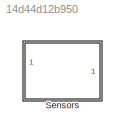
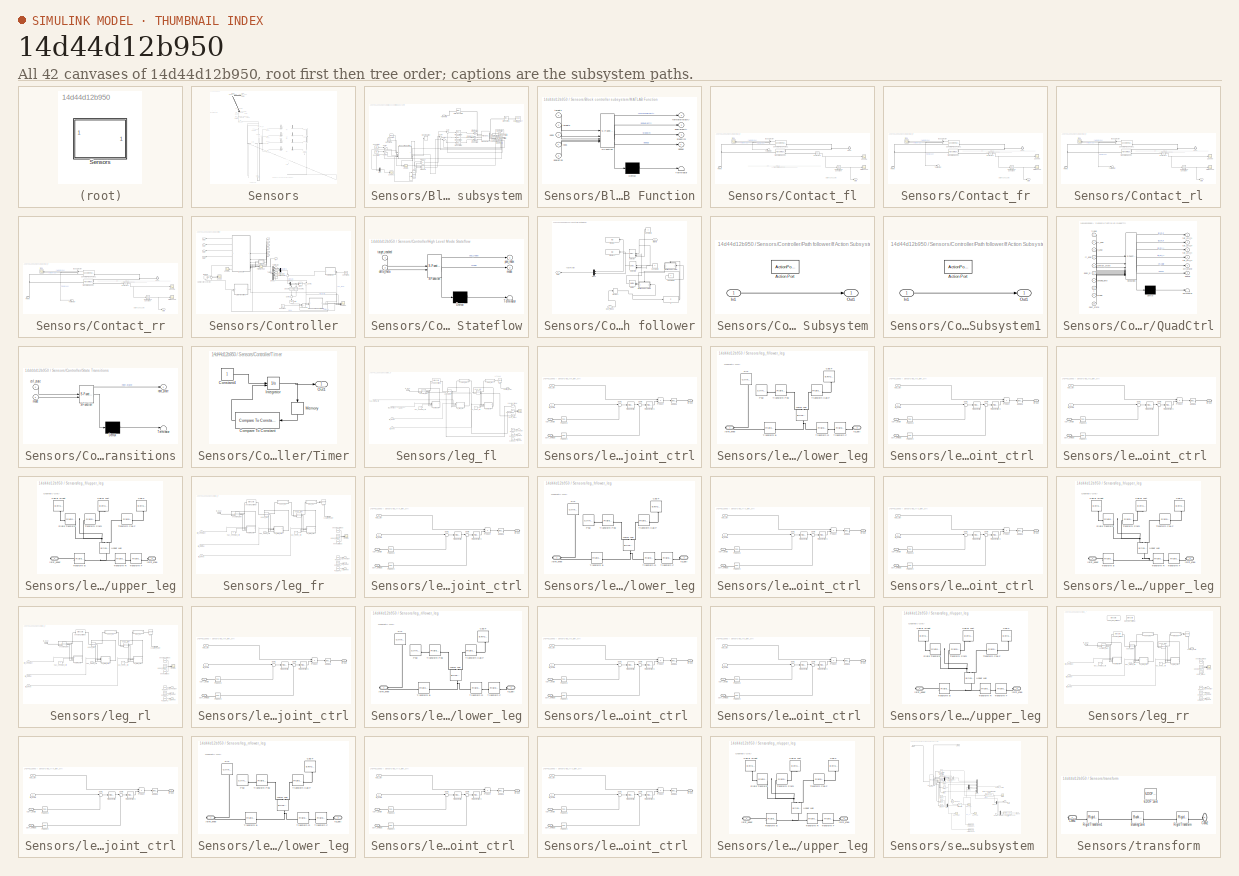
[diagram: thumbnail index - all 42 canvases of the model, root first then tree order]
MODEL slx_14d44d12b950
KIND model
CONFIG AbsTol = auto
CONFIG EnableMultiTasking = off
CONFIG FixedStep = auto
CONFIG MaxStep = auto
CONFIG MinStep = auto
CONFIG RelTol = 1e-3
CONFIG SampleTimeConstraint = Unconstrained
CONFIG SolverName = VariableStepAuto
CONFIG StartTime = 0.0
CONFIG StopTime = 100
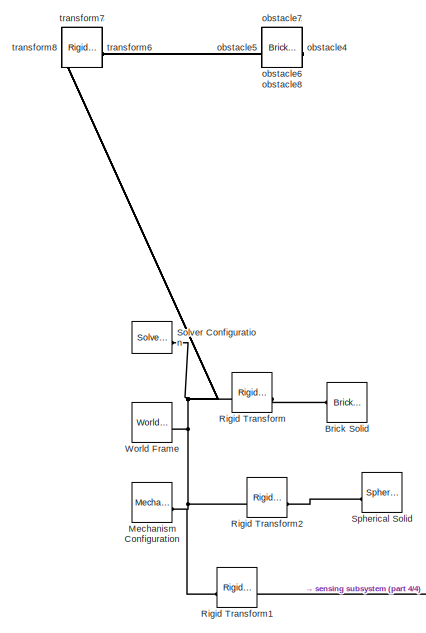
[diagram: Sensors - part 1/4, top left region]
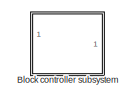
[diagram: Sensors - part 2/4, top left region]
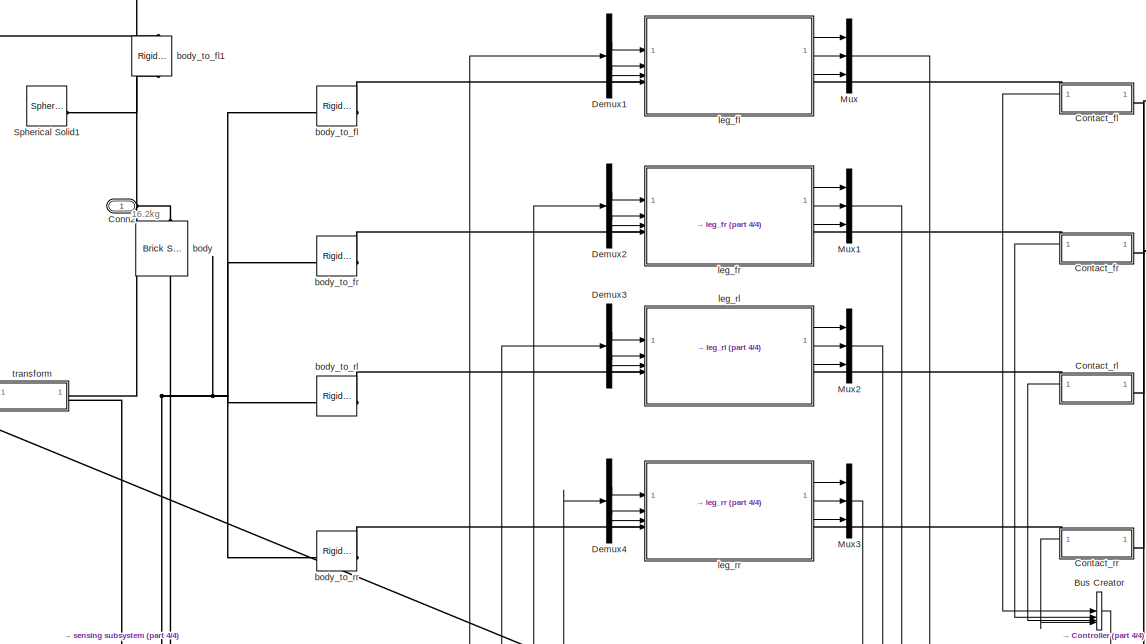
[diagram: Sensors - part 3/4, central region]
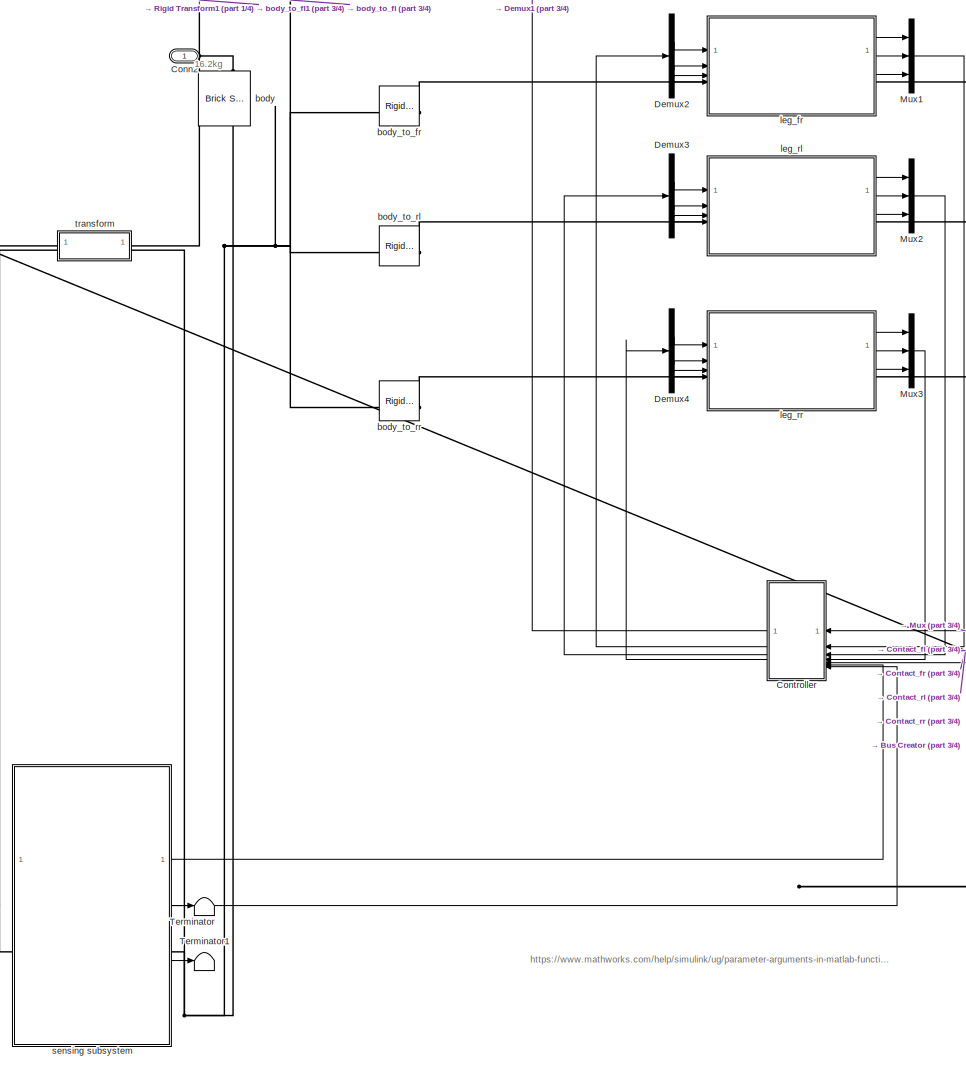
[diagram: Sensors - part 4/4, bottom center region]
BLOCK [SubSystem] Sensors
BLOCK [SubSystem] Sensors/Block controller subsystem
  Commented = on
  TreatAsAtomicUnit = on
BLOCK [Reference] Sensors/Block controller subsystem/Brick Solid1  REF=sm_lib/Body Elements/Brick Solid
  SourceBlock = sm_lib/Body Elements/Brick Solid
  SourceType = Brick Solid
BLOCK [Constant] Sensors/Block controller subsystem/Constant
  Value = target1
BLOCK [Constant] Sensors/Block controller subsystem/Constant1
  Value = startx
BLOCK [Constant] Sensors/Block controller subsystem/Constant2
  Value = starty
BLOCK [Constant] Sensors/Block controller subsystem/Constant3
  Value = target2
BLOCK [Trigonometry] Sensors/Block controller subsystem/Cos
  Operator = cos
BLOCK [Trigonometry] Sensors/Block controller subsystem/Cos1
BLOCK [SubSystem] Sensors/Block controller subsystem/MATLAB Function
  ErrorFcn = Stateflow.Translate.translate
  LibrarySourceBlock = simulink/User-Defined\nFunctions/MATLAB Function
  PermitHierarchicalResolution = ExplicitOnly
  SFBlockType = MATLAB Function
  SystemSampleTime = 0.1
  TreatAsAtomicUnit = on
BLOCK [Demux] Sensors/Block controller subsystem/MATLAB Function/ Demux 
  Outputs = 1
BLOCK [S-Function] Sensors/Block controller subsystem/MATLAB Function/ SFunction 
  EnableBusSupport = on
  FunctionName = sf_sfun
  PortCounts = [5 5]
  SFcnIsStateOwnerBlock = off
  SFunctionDeploymentMode = off
  Tag = Stateflow S-Function 2
BLOCK [Terminator] Sensors/Block controller subsystem/MATLAB Function/ Terminator 
BLOCK [Outport] Sensors/Block controller subsystem/MATLAB Function/angVelocity
  Port = 2
BLOCK [Inport] Sensors/Block controller subsystem/MATLAB Function/anglePos
  Port = 5
BLOCK [Outport] Sensors/Block controller subsystem/MATLAB Function/debug
  Port = 4
BLOCK [Outport] Sensors/Block controller subsystem/MATLAB Function/forwardVelocity
BLOCK [Outport] Sensors/Block controller subsystem/MATLAB Function/stopSim
  Port = 3
BLOCK [Inport] Sensors/Block controller subsystem/MATLAB Function/target1
BLOCK [Inport] Sensors/Block controller subsystem/MATLAB Function/target2
  Port = 2
BLOCK [Inport] Sensors/Block controller subsystem/MATLAB Function/xpos
  Port = 3
BLOCK [Inport] Sensors/Block controller subsystem/MATLAB Function/ypos
  Port = 4
BLOCK [Mux] Sensors/Block controller subsystem/Mux
  DisplayOption = bar
  Inputs = 2
BLOCK [Reference] Sensors/Block controller subsystem/PID Controller r  REF=slpidlib/PID Controller
  LibrarySourceBlock = simulink/Continuous/PID Controller
  SourceBlock = slpidlib/PID Controller
  SourceType = PID 1dof
BLOCK [Reference] Sensors/Block controller subsystem/PID Controller x  REF=slpidlib/PID Controller
  LibrarySourceBlock = simulink/Continuous/PID Controller
  SourceBlock = slpidlib/PID Controller
  SourceType = PID 1dof
BLOCK [Reference] Sensors/Block controller subsystem/PID Controller y  REF=slpidlib/PID Controller
  LibrarySourceBlock = simulink/Continuous/PID Controller
  SourceBlock = slpidlib/PID Controller
  SourceType = PID 1dof
BLOCK [Reference] Sensors/Block controller subsystem/PS-Simulink Converter  REF=nesl_utility/PS-Simulink
Converter
  SourceBlock = nesl_utility/PS-Simulink\nConverter
  SourceType = PS-Simulink\nConverter
BLOCK [Reference] Sensors/Block controller subsystem/PS-Simulink Converter1  REF=nesl_utility/PS-Simulink
Converter
  SourceBlock = nesl_utility/PS-Simulink\nConverter
  SourceType = PS-Simulink\nConverter
BLOCK [Reference] Sensors/Block controller subsystem/PS-Simulink Converter2  REF=nesl_utility/PS-Simulink
Converter
  SourceBlock = nesl_utility/PS-Simulink\nConverter
  SourceType = PS-Simulink\nConverter
BLOCK [Reference] Sensors/Block controller subsystem/PS-Simulink Converter3  REF=nesl_utility/PS-Simulink
Converter
  SourceBlock = nesl_utility/PS-Simulink\nConverter
  SourceType = PS-Simulink\nConverter
BLOCK [Reference] Sensors/Block controller subsystem/PS-Simulink Converter4  REF=nesl_utility/PS-Simulink
Converter
  SourceBlock = nesl_utility/PS-Simulink\nConverter
  SourceType = PS-Simulink\nConverter
BLOCK [Reference] Sensors/Block controller subsystem/PS-Simulink Converter5  REF=nesl_utility/PS-Simulink
Converter
  SourceBlock = nesl_utility/PS-Simulink\nConverter
  SourceType = PS-Simulink\nConverter
BLOCK [Reference] Sensors/Block controller subsystem/Planar Joint  REF=sm_lib/Joints/Planar Joint
  SourceBlock = sm_lib/Joints/Planar Joint
  SourceType = Planar Joint
BLOCK [Product] Sensors/Block controller subsystem/Product
BLOCK [Product] Sensors/Block controller subsystem/Product1
BLOCK [Reference] Sensors/Block controller subsystem/Rigid Transform1  REF=sm_lib/Frames and
Transforms/Rigid
Transform
  SourceBlock = sm_lib/Frames and\nTransforms/Rigid\nTransform
  SourceType = Rigid\nTransform
BLOCK [Scope] Sensors/Block controller subsystem/Scope
  Floating = off
  NumInputPorts = 1
  ScopeSpecificationString = Simulink.scopes.TimeScopeBlockCfg('CurrentConfiguration', extmgr.ConfigurationSet(extmgr.Configuration('Core','General UI',true),extmgr.Configuration('Core','Source UI',true),extmgr.Configuration('Sources','WiredSimulink',true),extmgr.Configuration('Visuals','Time Domain',true,'SerializedDisplays',{struct('MinYLimReal','-0.75','MaxYLimReal','16.75','YLabelReal','','MinYLimMag','0.00000','MaxYLimMa...<+1356ch>
BLOCK [Scope] Sensors/Block controller subsystem/Scope1
  Floating = off
  NumInputPorts = 1
  ScopeSpecificationString = Simulink.scopes.TimeScopeBlockCfg('CurrentConfiguration', extmgr.ConfigurationSet(extmgr.Configuration('Core','General UI',true),extmgr.Configuration('Core','Source UI',true),extmgr.Configuration('Sources','WiredSimulink',true,'DataLoggingVariableName','ScopeData1'),extmgr.Configuration('Visuals','Time Domain',true,'SerializedDisplays',{struct('MinYLimReal','-0.12626','MaxYLimReal','21.13635','YLa...<+1691ch>
BLOCK [Reference] Sensors/Block controller subsystem/Simulink-PS Converter1  REF=nesl_utility/Simulink-PS
Converter
  SourceBlock = nesl_utility/Simulink-PS\nConverter
  SourceType = Simulink-PS\nConverter
BLOCK [Reference] Sensors/Block controller subsystem/Simulink-PS Converter2  REF=nesl_utility/Simulink-PS
Converter
  SourceBlock = nesl_utility/Simulink-PS\nConverter
  SourceType = Simulink-PS\nConverter
BLOCK [Reference] Sensors/Block controller subsystem/Simulink-PS Converter5  REF=nesl_utility/Simulink-PS
Converter
  SourceBlock = nesl_utility/Simulink-PS\nConverter
  SourceType = Simulink-PS\nConverter
BLOCK [Reference] Sensors/Block controller subsystem/Spatial Contact Force  REF=sm_lib/Forces and
Torques/Spatial
Contact Force
  SourceBlock = sm_lib/Forces and\nTorques/Spatial\nContact Force
  SourceType = Spatial\nContact Force
BLOCK [Stop] Sensors/Block controller subsystem/Stop Simulation
BLOCK [Sum] Sensors/Block controller subsystem/Sum
  Inputs = |+-
BLOCK [Sum] Sensors/Block controller subsystem/Sum1
  Inputs = |++
BLOCK [Sum] Sensors/Block controller subsystem/Sum2
  Inputs = |++
BLOCK [Sum] Sensors/Block controller subsystem/Sum3
  Inputs = |+-
BLOCK [Sum] Sensors/Block controller subsystem/Sum4
  Inputs = |+-
BLOCK [PMIOPort] Sensors/Block controller subsystem/Transform
  Side = Left
BLOCK [Reference] Sensors/Brick Solid  REF=sm_lib/Body Elements/Brick Solid
  NameLocation = left
  SourceBlock = sm_lib/Body Elements/Brick Solid
  SourceType = Brick Solid
BLOCK [BusCreator] Sensors/Bus Creator
  DisplayOption = bar
  InheritFromInputs = on
  Inputs = 4
BLOCK [PMIOPort] Sensors/Conn2
  Side = Left
BLOCK [SubSystem] Sensors/Contact_fl
  NameLocation = top
BLOCK [BusSelector] Sensors/Contact_fl/Bus Selector
  NameLocation = top
  OutputSignals = Normal Force,Frame Sep,Friction Force
BLOCK [Reference] Sensors/Contact_fl/Compare To Constant  REF=simulink/Logic and Bit
Operations/Compare
To Constant
  SourceBlock = simulink/Logic and Bit\nOperations/Compare\nTo Constant
  SourceType = Compare To Constant
BLOCK [Reference] Sensors/Contact_fl/PSConv4  REF=nesl_utility/PS-Simulink
Converter
  SourceBlock = nesl_utility/PS-Simulink\nConverter
  SourceType = PS-Simulink\nConverter
BLOCK [PMIOPort] Sensors/Contact_fl/PlanB
  NameLocation = right
  Side = Left
BLOCK [PMIOPort] Sensors/Contact_fl/SphF
  NameLocation = top
  Port = 2
  Side = Right
BLOCK [Reference] Sensors/Contact_fl/Sphere to Plane Force1  REF=Contact_Forces_Lib/3D/Sphere to Plane Force
  NameLocation = top
  SourceBlock = Contact_Forces_Lib/3D/Sphere to Plane Force
  SourceProductName = Simscape Multibody Contact Forces Library
  SourceType = Sphere to Plane Force
BLOCK [Scope] Sensors/Contact_fl/State Scope
  Floating = off
  NumInputPorts = 1
  ScopeSpecificationString = Simulink.scopes.TimeScopeBlockCfg('CurrentConfiguration', extmgr.ConfigurationSet(extmgr.Configuration('Core','General UI',true),extmgr.Configuration('Core','Source UI',true),extmgr.Configuration('Sources','WiredSimulink',true,'DataLoggingVariableName','ScopeData2'),extmgr.Configuration('Visuals','Time Domain',true,'SerializedDisplays',{struct('MinYLimReal','-0.125','MaxYLimReal','1.125','YLabelRe...<+1738ch>
BLOCK [Terminator] Sensors/Contact_fl/Terminator
BLOCK [Reference] Sensors/Contact_fl/Transform Sensor  REF=sm_lib/Frames and
Transforms/Transform
Sensor
  SourceBlock = sm_lib/Frames and\nTransforms/Transform\nSensor
  SourceType = Transform\nSensor
BLOCK [Scope] Sensors/Contact_fl/ZScope
  Floating = off
  NumInputPorts = 1
  ScopeSpecificationString = Simulink.scopes.TimeScopeBlockCfg('CurrentConfiguration', extmgr.ConfigurationSet(extmgr.Configuration('Core','General UI',true),extmgr.Configuration('Core','Source UI',true),extmgr.Configuration('Sources','WiredSimulink',true,'DataLoggingVariableName','ScopeData1'),extmgr.Configuration('Visuals','Time Domain',true,'SerializedDisplays',{struct('MinYLimReal','0.21142','MaxYLimReal','0.26619','YLabe...<+1738ch>
BLOCK [Scope] Sensors/Contact_fl/force
  Floating = off
  NameLocation = top
  NumInputPorts = 2
  ScopeSpecificationString = Simulink.scopes.TimeScopeBlockCfg('CurrentConfiguration', extmgr.ConfigurationSet(extmgr.Configuration('Core','General UI',true),extmgr.Configuration('Core','Source UI',true),extmgr.Configuration('Sources','WiredSimulink',true),extmgr.Configuration('Visuals','Time Domain',true,'SerializedDisplays',{struct('MinYLimReal','-483.20806','MaxYLimReal','1131.7449','YLabelReal','','MinYLimMag',' 0.00000',...<+2099ch>
BLOCK [Outport] Sensors/Contact_fl/state
  VectorParamsAs1DForOutWhenUnconnected = off
BLOCK [SubSystem] Sensors/Contact_fr
  NameLocation = top
BLOCK [BusSelector] Sensors/Contact_fr/Bus Selector
  NameLocation = top
  OutputSignals = Normal Force,Frame Sep,Friction Force
BLOCK [Reference] Sensors/Contact_fr/Compare To Constant  REF=simulink/Logic and Bit
Operations/Compare
To Constant
  SourceBlock = simulink/Logic and Bit\nOperations/Compare\nTo Constant
  SourceType = Compare To Constant
BLOCK [Reference] Sensors/Contact_fr/PSConv4  REF=nesl_utility/PS-Simulink
Converter
  SourceBlock = nesl_utility/PS-Simulink\nConverter
  SourceType = PS-Simulink\nConverter
BLOCK [PMIOPort] Sensors/Contact_fr/PlanB
  NameLocation = right
  Side = Left
BLOCK [PMIOPort] Sensors/Contact_fr/SphF
  NameLocation = top
  Port = 2
  Side = Right
BLOCK [Reference] Sensors/Contact_fr/Sphere to Plane Force1  REF=Contact_Forces_Lib/3D/Sphere to Plane Force
  NameLocation = top
  SourceBlock = Contact_Forces_Lib/3D/Sphere to Plane Force
  SourceProductName = Simscape Multibody Contact Forces Library
  SourceType = Sphere to Plane Force
BLOCK [Scope] Sensors/Contact_fr/State Scope
  Floating = off
  NumInputPorts = 1
  ScopeSpecificationString = Simulink.scopes.TimeScopeBlockCfg('CurrentConfiguration', extmgr.ConfigurationSet(extmgr.Configuration('Core','General UI',true),extmgr.Configuration('Core','Source UI',true),extmgr.Configuration('Sources','WiredSimulink',true,'DataLoggingVariableName','ScopeData2'),extmgr.Configuration('Visuals','Time Domain',true,'SerializedDisplays',{struct('MinYLimReal','3.40363','MaxYLimReal','4.10196','YLabe...<+1745ch>
BLOCK [Terminator] Sensors/Contact_fr/Terminator
BLOCK [Reference] Sensors/Contact_fr/Transform Sensor  REF=sm_lib/Frames and
Transforms/Transform
Sensor
  SourceBlock = sm_lib/Frames and\nTransforms/Transform\nSensor
  SourceType = Transform\nSensor
BLOCK [Scope] Sensors/Contact_fr/ZScope
  Floating = off
  NumInputPorts = 1
  ScopeSpecificationString = Simulink.scopes.TimeScopeBlockCfg('CurrentConfiguration', extmgr.ConfigurationSet(extmgr.Configuration('Core','General UI',true),extmgr.Configuration('Core','Source UI',true),extmgr.Configuration('Sources','WiredSimulink',true,'DataLoggingVariableName','ScopeData1'),extmgr.Configuration('Visuals','Time Domain',true,'SerializedDisplays',{struct('MinYLimReal','-0.07993','MaxYLimReal','0.50888','YLab...<+1755ch>
BLOCK [Scope] Sensors/Contact_fr/force
  Floating = off
  NameLocation = top
  NumInputPorts = 2
  ScopeSpecificationString = Simulink.scopes.TimeScopeBlockCfg('CurrentConfiguration', extmgr.ConfigurationSet(extmgr.Configuration('Core','General UI',true),extmgr.Configuration('Core','Source UI',true),extmgr.Configuration('Sources','WiredSimulink',true),extmgr.Configuration('Visuals','Time Domain',true,'SerializedDisplays',{struct('MinYLimReal','-1765.00642','MaxYLimReal','8517.50545','YLabelReal','','MinYLimMag','  0.0000...<+1825ch>
BLOCK [Outport] Sensors/Contact_fr/state
  VectorParamsAs1DForOutWhenUnconnected = off
BLOCK [SubSystem] Sensors/Contact_rl
  NameLocation = top
BLOCK [BusSelector] Sensors/Contact_rl/Bus Selector
  NameLocation = top
  OutputSignals = Normal Force,Frame Sep,Friction Force
BLOCK [Reference] Sensors/Contact_rl/Compare To Constant  REF=simulink/Logic and Bit
Operations/Compare
To Constant
  SourceBlock = simulink/Logic and Bit\nOperations/Compare\nTo Constant
  SourceType = Compare To Constant
BLOCK [Reference] Sensors/Contact_rl/PSConv4  REF=nesl_utility/PS-Simulink
Converter
  SourceBlock = nesl_utility/PS-Simulink\nConverter
  SourceType = PS-Simulink\nConverter
BLOCK [PMIOPort] Sensors/Contact_rl/PlanB
  NameLocation = right
  Side = Left
BLOCK [PMIOPort] Sensors/Contact_rl/SphF
  NameLocation = top
  Port = 2
  Side = Right
BLOCK [Reference] Sensors/Contact_rl/Sphere to Plane Force1  REF=Contact_Forces_Lib/3D/Sphere to Plane Force
  NameLocation = top
  SourceBlock = Contact_Forces_Lib/3D/Sphere to Plane Force
  SourceProductName = Simscape Multibody Contact Forces Library
  SourceType = Sphere to Plane Force
BLOCK [Scope] Sensors/Contact_rl/State Scope
  Floating = off
  NumInputPorts = 1
  ScopeSpecificationString = Simulink.scopes.TimeScopeBlockCfg('CurrentConfiguration', extmgr.ConfigurationSet(extmgr.Configuration('Core','General UI',true),extmgr.Configuration('Core','Source UI',true),extmgr.Configuration('Sources','WiredSimulink',true,'DataLoggingVariableName','ScopeData2'),extmgr.Configuration('Visuals','Time Domain',true,'SerializedDisplays',{struct('MinYLimReal','-0.125','MaxYLimReal','1.125','YLabelRe...<+1739ch>
BLOCK [Terminator] Sensors/Contact_rl/Terminator
BLOCK [Reference] Sensors/Contact_rl/Transform Sensor  REF=sm_lib/Frames and
Transforms/Transform
Sensor
  SourceBlock = sm_lib/Frames and\nTransforms/Transform\nSensor
  SourceType = Transform\nSensor
BLOCK [Scope] Sensors/Contact_rl/ZScope
  Floating = off
  NumInputPorts = 1
  ScopeSpecificationString = Simulink.scopes.TimeScopeBlockCfg('CurrentConfiguration', extmgr.ConfigurationSet(extmgr.Configuration('Core','General UI',true),extmgr.Configuration('Core','Source UI',true),extmgr.Configuration('Sources','WiredSimulink',true,'DataLoggingVariableName','ScopeData1'),extmgr.Configuration('Visuals','Time Domain',true,'SerializedDisplays',{struct('MinYLimReal','0.2216','MaxYLimReal','0.24665','YLabel...<+1762ch>
BLOCK [Scope] Sensors/Contact_rl/force
  Floating = off
  NameLocation = top
  NumInputPorts = 2
  ScopeSpecificationString = Simulink.scopes.TimeScopeBlockCfg('CurrentConfiguration', extmgr.ConfigurationSet(extmgr.Configuration('Core','General UI',true),extmgr.Configuration('Core','Source UI',true),extmgr.Configuration('Sources','WiredSimulink',true),extmgr.Configuration('Visuals','Time Domain',true,'SerializedDisplays',{struct('MinYLimReal','-385.95585','MaxYLimReal','1796.51268','YLabelReal','','MinYLimMag',' 0.00000'...<+1838ch>
BLOCK [Outport] Sensors/Contact_rl/state
  VectorParamsAs1DForOutWhenUnconnected = off
BLOCK [SubSystem] Sensors/Contact_rr
  NameLocation = top
BLOCK [BusSelector] Sensors/Contact_rr/Bus Selector
  NameLocation = top
  OutputSignals = Normal Force,Frame Sep,Friction Force
BLOCK [Reference] Sensors/Contact_rr/Compare To Constant  REF=simulink/Logic and Bit
Operations/Compare
To Constant
  SourceBlock = simulink/Logic and Bit\nOperations/Compare\nTo Constant
  SourceType = Compare To Constant
BLOCK [Reference] Sensors/Contact_rr/PSConv4  REF=nesl_utility/PS-Simulink
Converter
  SourceBlock = nesl_utility/PS-Simulink\nConverter
  SourceType = PS-Simulink\nConverter
BLOCK [PMIOPort] Sensors/Contact_rr/PlanB
  NameLocation = right
  Side = Left
BLOCK [PMIOPort] Sensors/Contact_rr/SphF
  NameLocation = top
  Port = 2
  Side = Right
BLOCK [Reference] Sensors/Contact_rr/Sphere to Plane Force1  REF=Contact_Forces_Lib/3D/Sphere to Plane Force
  NameLocation = top
  SourceBlock = Contact_Forces_Lib/3D/Sphere to Plane Force
  SourceProductName = Simscape Multibody Contact Forces Library
  SourceType = Sphere to Plane Force
BLOCK [Scope] Sensors/Contact_rr/State Scope
  Floating = off
  NumInputPorts = 1
  ScopeSpecificationString = Simulink.scopes.TimeScopeBlockCfg('CurrentConfiguration', extmgr.ConfigurationSet(extmgr.Configuration('Core','General UI',true),extmgr.Configuration('Core','Source UI',true),extmgr.Configuration('Sources','WiredSimulink',true,'DataLoggingVariableName','ScopeData2'),extmgr.Configuration('Visuals','Time Domain',true,'SerializedDisplays',{struct('MinYLimReal','-0.125','MaxYLimReal','1.125','YLabelRe...<+1739ch>
BLOCK [Terminator] Sensors/Contact_rr/Terminator
BLOCK [Reference] Sensors/Contact_rr/Transform Sensor  REF=sm_lib/Frames and
Transforms/Transform
Sensor
  SourceBlock = sm_lib/Frames and\nTransforms/Transform\nSensor
  SourceType = Transform\nSensor
BLOCK [Scope] Sensors/Contact_rr/ZScope
  Floating = off
  NumInputPorts = 1
  ScopeSpecificationString = Simulink.scopes.TimeScopeBlockCfg('CurrentConfiguration', extmgr.ConfigurationSet(extmgr.Configuration('Core','General UI',true),extmgr.Configuration('Core','Source UI',true),extmgr.Configuration('Sources','WiredSimulink',true,'DataLoggingVariableName','ScopeData1'),extmgr.Configuration('Visuals','Time Domain',true,'SerializedDisplays',{struct('MinYLimReal','-0.07993','MaxYLimReal','0.50888','YLab...<+1439ch>
BLOCK [Scope] Sensors/Contact_rr/force
  Floating = off
  NameLocation = top
  NumInputPorts = 2
  ScopeSpecificationString = Simulink.scopes.TimeScopeBlockCfg('CurrentConfiguration', extmgr.ConfigurationSet(extmgr.Configuration('Core','General UI',true),extmgr.Configuration('Core','Source UI',true),extmgr.Configuration('Sources','WiredSimulink',true),extmgr.Configuration('Visuals','Time Domain',true,'SerializedDisplays',{struct('MinYLimReal','-1765.00642','MaxYLimReal','8517.50545','YLabelReal','','MinYLimMag','  0.0000...<+1825ch>
BLOCK [Outport] Sensors/Contact_rr/state
  VectorParamsAs1DForOutWhenUnconnected = off
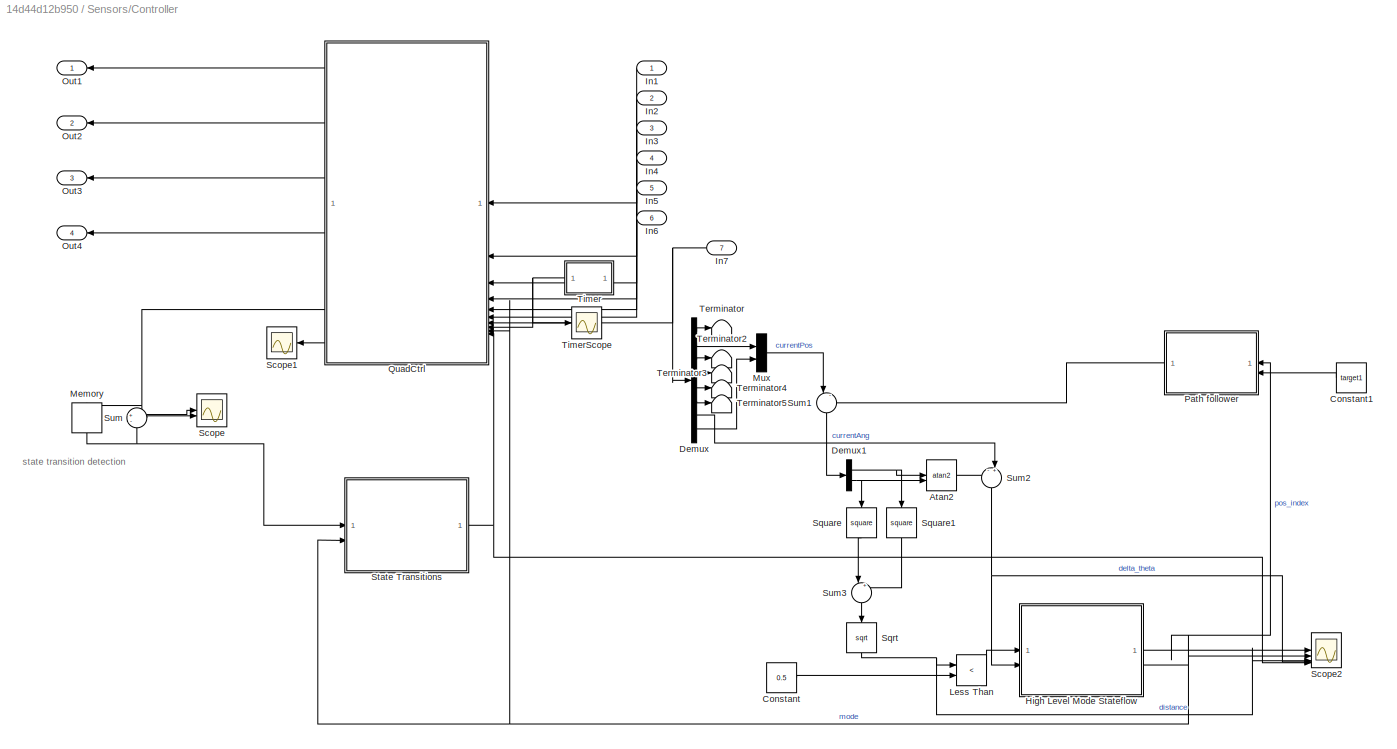
BLOCK [SubSystem] Sensors/Controller
  NameLocation = top
BLOCK [Trigonometry] Sensors/Controller/Atan2
  Operator = atan2
BLOCK [Constant] Sensors/Controller/Constant
  Value = 0.5
BLOCK [Constant] Sensors/Controller/Constant1
  Value = target1
BLOCK [Demux] Sensors/Controller/Demux
  Outputs = 8
BLOCK [Demux] Sensors/Controller/Demux1
  Outputs = 2
BLOCK [SubSystem] Sensors/Controller/High Level Mode Stateflow
  ErrorFcn = Stateflow.Translate.translate
  PermitHierarchicalResolution = ExplicitOnly
  PortSchema = {"entries":[{"content":{"sides":[{"content":{"connectorIds":["In2","In1"]},"type":"ConnectorPlacement.EquallySpacedRectSide","uuid":"54635eaa-af22-4c07-946c-8b3764ca4079"},{"content":{"connectorIds":["Out1","Out2"],"side":"RIGHT"},"type":"ConnectorPlacement.EquallySpacedRectSide","uuid":"b8ca9e50-c21e-481d-aebe-d3447dd5b6ec"},{"content":{"connectorIds":[],"side":"TOP"},"type":"ConnectorPlacement.E...<+253ch>
  SFBlockType = Chart
  TreatAsAtomicUnit = on
BLOCK [Demux] Sensors/Controller/High Level Mode Stateflow/ Demux 
  Outputs = 1
BLOCK [S-Function] Sensors/Controller/High Level Mode Stateflow/ SFunction 
  EnableBusSupport = on
  FunctionName = sf_sfun
  PortCounts = [2 3]
  SFcnIsStateOwnerBlock = off
  SFunctionDeploymentMode = off
  Tag = Stateflow S-Function 3
BLOCK [Terminator] Sensors/Controller/High Level Mode Stateflow/ Terminator 
BLOCK [Inport] Sensors/Controller/High Level Mode Stateflow/delta_theta
  Port = 2
BLOCK [Outport] Sensors/Controller/High Level Mode Stateflow/mode
  Port = 2
BLOCK [Outport] Sensors/Controller/High Level Mode Stateflow/pos_index
BLOCK [Inport] Sensors/Controller/High Level Mode Stateflow/target_reached
BLOCK [Inport] Sensors/Controller/In1
  NameLocation = top
BLOCK [Inport] Sensors/Controller/In2
  NameLocation = top
  Port = 2
BLOCK [Inport] Sensors/Controller/In3
  NameLocation = top
  Port = 3
BLOCK [Inport] Sensors/Controller/In4
  NameLocation = top
  Port = 4
BLOCK [Inport] Sensors/Controller/In5
  NameLocation = top
  Port = 5
BLOCK [Inport] Sensors/Controller/In6
  NameLocation = top
  Port = 6
BLOCK [Inport] Sensors/Controller/In7
  NameLocation = top
  Port = 7
BLOCK [RelationalOperator] Sensors/Controller/Less Than
  InputSameDT = off
  Operator = <
  OutDataTypeStr = boolean
  RndMeth = Simplest
BLOCK [Memory] Sensors/Controller/Memory
  NameLocation = left
BLOCK [Mux] Sensors/Controller/Mux
  DisplayOption = bar
  Inputs = 2
BLOCK [Outport] Sensors/Controller/Out1
  NameLocation = top
  VectorParamsAs1DForOutWhenUnconnected = off
BLOCK [Outport] Sensors/Controller/Out2
  NameLocation = top
  Port = 2
  VectorParamsAs1DForOutWhenUnconnected = off
BLOCK [Outport] Sensors/Controller/Out3
  NameLocation = top
  Port = 3
  VectorParamsAs1DForOutWhenUnconnected = off
BLOCK [Outport] Sensors/Controller/Out4
  NameLocation = top
  Port = 4
  VectorParamsAs1DForOutWhenUnconnected = off
BLOCK [SubSystem] Sensors/Controller/Path follower
  TreatAsAtomicUnit = on
BLOCK [Constant] Sensors/Controller/Path follower/Constant2
BLOCK [Constant] Sensors/Controller/Path follower/Constant3
  Value = 2
BLOCK [Constant] Sensors/Controller/Path follower/Constant4
BLOCK [Display] Sensors/Controller/Path follower/Display
  Decimation = 1
BLOCK [Display] Sensors/Controller/Path follower/Display1
  Decimation = 1
BLOCK [If] Sensors/Controller/Path follower/If
  IfExpression = u1 <= 0
BLOCK [SubSystem] Sensors/Controller/Path follower/If Action Subsystem
  TreatAsAtomicUnit = on
BLOCK [ActionPort] Sensors/Controller/Path follower/If Action Subsystem/Action Port
  ActionPortLabel = if(u1 <= 0)
BLOCK [Inport] Sensors/Controller/Path follower/If Action Subsystem/In1
BLOCK [Outport] Sensors/Controller/Path follower/If Action Subsystem/Out1
BLOCK [SubSystem] Sensors/Controller/Path follower/If Action Subsystem1
  TreatAsAtomicUnit = on
BLOCK [ActionPort] Sensors/Controller/Path follower/If Action Subsystem1/Action Port
  ActionPortLabel = else
BLOCK [Inport] Sensors/Controller/Path follower/If Action Subsystem1/In1
BLOCK [Outport] Sensors/Controller/Path follower/If Action Subsystem1/Out1
BLOCK [Memory] Sensors/Controller/Path follower/Memory1
BLOCK [Merge] Sensors/Controller/Path follower/Merge
BLOCK [Mux] Sensors/Controller/Path follower/Mux1
  DisplayOption = bar
  Inputs = 2
BLOCK [Outport] Sensors/Controller/Path follower/Out1
BLOCK [Selector] Sensors/Controller/Path follower/Selector
  IndexOptions = Index vector (port),Index vector (port)
  Indices = [1 3],1
  InputPortWidth = 1
  NumberOfDimensions = 2
  OutputSizes = 1,1
BLOCK [Selector] Sensors/Controller/Path follower/Selector1
  IndexOptions = Index vector (port),Index vector (port)
  Indices = [1 3],1
  InputPortWidth = 1
  NumberOfDimensions = 2
  OutputSizes = 1,1
BLOCK [Inport] Sensors/Controller/Path follower/pos_index
BLOCK [Inport] Sensors/Controller/Path follower/targets
  Port = 2
BLOCK [SubSystem] Sensors/Controller/QuadCtrl
  ErrorFcn = Stateflow.Translate.translate
  NameLocation = top
  PermitHierarchicalResolution = ExplicitOnly
  SFBlockType = MATLAB Function
  SystemSampleTime = 0.0025
  TreatAsAtomicUnit = on
BLOCK [Demux] Sensors/Controller/QuadCtrl/ Demux 
  Outputs = 1
BLOCK [S-Function] Sensors/Controller/QuadCtrl/ SFunction 
  EnableBusSupport = on
  FunctionName = sf_sfun
  Parameters = body,planner
  PortCounts = [10 7]
  SFcnIsStateOwnerBlock = off
  SFunctionDeploymentMode = off
  Tag = Stateflow S-Function 1
BLOCK [Terminator] Sensors/Controller/QuadCtrl/ Terminator 
BLOCK [Inport] Sensors/Controller/QuadCtrl/body_R
  Port = 6
BLOCK [Inport] Sensors/Controller/QuadCtrl/contact_state
  Port = 5
BLOCK [Outport] Sensors/Controller/QuadCtrl/ctrl_state
  Port = 5
  VectorParamsAs1DForOutWhenUnconnected = off
BLOCK [Outport] Sensors/Controller/QuadCtrl/debug
  Port = 6
  VectorParamsAs1DForOutWhenUnconnected = off
BLOCK [Inport] Sensors/Controller/QuadCtrl/fl_ang
BLOCK [Inport] Sensors/Controller/QuadCtrl/fr_ang
  Port = 2
BLOCK [Inport] Sensors/Controller/QuadCtrl/mode
  Port = 9
BLOCK [Inport] Sensors/Controller/QuadCtrl/next_state
  Port = 10
BLOCK [Inport] Sensors/Controller/QuadCtrl/rl_ang
  Port = 3
BLOCK [Inport] Sensors/Controller/QuadCtrl/rr_ang
  Port = 4
BLOCK [Inport] Sensors/Controller/QuadCtrl/sensing_info
  Port = 7
BLOCK [Inport] Sensors/Controller/QuadCtrl/t
  Port = 8
BLOCK [Outport] Sensors/Controller/QuadCtrl/tgt_ctrl_fl
  VectorParamsAs1DForOutWhenUnconnected = off
BLOCK [Outport] Sensors/Controller/QuadCtrl/tgt_ctrl_fr
  Port = 2
  VectorParamsAs1DForOutWhenUnconnected = off
BLOCK [Outport] Sensors/Controller/QuadCtrl/tgt_ctrl_rl
  Port = 3
  VectorParamsAs1DForOutWhenUnconnected = off
BLOCK [Outport] Sensors/Controller/QuadCtrl/tgt_ctrl_rr
  Port = 4
  VectorParamsAs1DForOutWhenUnconnected = off
BLOCK [Scope] Sensors/Controller/Scope
  Floating = off
  NumInputPorts = 2
  ScopeSpecificationString = Simulink.scopes.TimeScopeBlockCfg('CurrentConfiguration', extmgr.ConfigurationSet(extmgr.Configuration('Core','General UI',true),extmgr.Configuration('Core','Source UI',true),extmgr.Configuration('Sources','WiredSimulink',true,'DataLoggingVariableName','ScopeData1'),extmgr.Configuration('Visuals','Time Domain',true,'SerializedDisplays',{struct('MinYLimReal','-7.625','MaxYLimReal','8.625','YLabelRe...<+1401ch>
BLOCK [Scope] Sensors/Controller/Scope1
  Floating = off
  NameLocation = top
  NumInputPorts = 1
  ScopeSpecificationString = Simulink.scopes.TimeScopeBlockCfg('CurrentConfiguration', extmgr.ConfigurationSet(extmgr.Configuration('Core','General UI',true),extmgr.Configuration('Core','Source UI',true),extmgr.Configuration('Sources','WiredSimulink',true,'DataLoggingVariableName','ScopeData5'),extmgr.Configuration('Visuals','Time Domain',true,'SerializedDisplays',{struct('MinYLimReal','-37.5','MaxYLimReal','337.5','YLabelRea...<+1465ch>
BLOCK [Scope] Sensors/Controller/Scope2
  Floating = off
  NumInputPorts = 6
  ScopeSpecificationString = Simulink.scopes.TimeScopeBlockCfg('CurrentConfiguration', extmgr.ConfigurationSet(extmgr.Configuration('Core','General UI',true),extmgr.Configuration('Core','Source UI',true),extmgr.Configuration('Sources','WiredSimulink',true,'DataLoggingVariableName','ScopeData1'),extmgr.Configuration('Visuals','Time Domain',true,'SerializedDisplays',{struct('MinYLimReal','-1.782','MaxYLimReal','7.97578','YLabel...<+1455ch>
BLOCK [Sqrt] Sensors/Controller/Sqrt
  NameLocation = left
BLOCK [Math] Sensors/Controller/Square
  NameLocation = left
  Operator = square
BLOCK [Math] Sensors/Controller/Square1
  NameLocation = left
  Operator = square
BLOCK [SubSystem] Sensors/Controller/State Transitions
  ErrorFcn = Stateflow.Translate.translate
  PermitHierarchicalResolution = ExplicitOnly
  SFBlockType = Chart
  TreatAsAtomicUnit = on
BLOCK [Demux] Sensors/Controller/State Transitions/ Demux 
  Outputs = 1
BLOCK [S-Function] Sensors/Controller/State Transitions/ SFunction 
  EnableBusSupport = on
  FunctionName = sf_sfun
  PortCounts = [2 2]
  SFcnIsStateOwnerBlock = off
  SFunctionDeploymentMode = off
  Tag = Stateflow S-Function 4
BLOCK [Terminator] Sensors/Controller/State Transitions/ Terminator 
BLOCK [Inport] Sensors/Controller/State Transitions/ctrl_state
BLOCK [Inport] Sensors/Controller/State Transitions/mode
  Port = 2
BLOCK [Outport] Sensors/Controller/State Transitions/next_state
BLOCK [Sum] Sensors/Controller/Sum
  Inputs = +-
BLOCK [Sum] Sensors/Controller/Sum1
  Inputs = |-+
  NameLocation = left
BLOCK [Sum] Sensors/Controller/Sum2
  Inputs = -+|
  NameLocation = left
BLOCK [Sum] Sensors/Controller/Sum3
  Inputs = |++
  NameLocation = left
BLOCK [Terminator] Sensors/Controller/Terminator
BLOCK [Terminator] Sensors/Controller/Terminator2
BLOCK [Terminator] Sensors/Controller/Terminator3
BLOCK [Terminator] Sensors/Controller/Terminator4
BLOCK [Terminator] Sensors/Controller/Terminator5
BLOCK [SubSystem] Sensors/Controller/Timer
  NameLocation = top
BLOCK [Reference] Sensors/Controller/Timer/Compare To Constant  REF=simulink/Logic and Bit
Operations/Compare
To Constant
  NameLocation = top
  SourceBlock = simulink/Logic and Bit\nOperations/Compare\nTo Constant
  SourceType = Compare To Constant
BLOCK [Constant] Sensors/Controller/Timer/Constant4
BLOCK [Integrator] Sensors/Controller/Timer/Integrator
  ExternalReset = level
BLOCK [Memory] Sensors/Controller/Timer/Memory
  NameLocation = left
BLOCK [Outport] Sensors/Controller/Timer/Out1
  VectorParamsAs1DForOutWhenUnconnected = off
BLOCK [Scope] Sensors/Controller/TimerScope
  Floating = off
  NumInputPorts = 1
  ScopeSpecificationString = Simulink.scopes.TimeScopeBlockCfg('CurrentConfiguration', extmgr.ConfigurationSet(extmgr.Configuration('Core','General UI',true),extmgr.Configuration('Core','Source UI',true),extmgr.Configuration('Sources','WiredSimulink',true,'DataLoggingVariableName','ScopeData1'),extmgr.Configuration('Visuals','Time Domain',true,'SerializedDisplays',{struct('MinYLimReal','-0.25011','MaxYLimReal','2.25096','YLab...<+1443ch>
BLOCK [Demux] Sensors/Demux1
BLOCK [Demux] Sensors/Demux2
BLOCK [Demux] Sensors/Demux3
BLOCK [Demux] Sensors/Demux4
BLOCK [Reference] Sensors/Mechanism Configuration  REF=sm_lib/Utilities/Mechanism
Configuration
  SourceBlock = sm_lib/Utilities/Mechanism\nConfiguration
  SourceType = Mechanism\nConfiguration
BLOCK [Mux] Sensors/Mux
  DisplayOption = bar
  Inputs = 3
BLOCK [Mux] Sensors/Mux1
  DisplayOption = bar
  Inputs = 3
BLOCK [Mux] Sensors/Mux2
  DisplayOption = bar
  Inputs = 3
BLOCK [Mux] Sensors/Mux3
  DisplayOption = bar
  Inputs = 3
BLOCK [Reference] Sensors/Rigid Transform  REF=sm_lib/Frames and
Transforms/Rigid
Transform
  SourceBlock = sm_lib/Frames and\nTransforms/Rigid\nTransform
  SourceType = Rigid\nTransform
BLOCK [Reference] Sensors/Rigid Transform1  REF=sm_lib/Frames and
Transforms/Rigid
Transform
  SourceBlock = sm_lib/Frames and\nTransforms/Rigid\nTransform
  SourceType = Rigid\nTransform
BLOCK [Reference] Sensors/Rigid Transform2  REF=sm_lib/Frames and
Transforms/Rigid
Transform
  SourceBlock = sm_lib/Frames and\nTransforms/Rigid\nTransform
  SourceType = Rigid\nTransform
BLOCK [Reference] Sensors/Solver Configuration  REF=nesl_utility/Solver
Configuration
  SourceBlock = nesl_utility/Solver\nConfiguration
  SourceType = Solver\nConfiguration
BLOCK [Reference] Sensors/Spherical Solid  REF=sm_lib/Body Elements/Spherical Solid
  SourceBlock = sm_lib/Body Elements/Spherical Solid
  SourceType = Spherical Solid
BLOCK [Reference] Sensors/Spherical Solid1  REF=sm_lib/Body Elements/Spherical Solid
  SourceBlock = sm_lib/Body Elements/Spherical Solid
  SourceType = Spherical Solid
BLOCK [Terminator] Sensors/Terminator
BLOCK [Terminator] Sensors/Terminator1
BLOCK [Reference] Sensors/World Frame  REF=sm_lib/Frames and
Transforms/World Frame
  SourceBlock = sm_lib/Frames and\nTransforms/World Frame
  SourceType = World Frame
BLOCK [Reference] Sensors/body  REF=sm_lib/Body Elements/Brick Solid
  NameLocation = left
  SourceBlock = sm_lib/Body Elements/Brick Solid
  SourceType = Brick Solid
BLOCK [Reference] Sensors/body_to_fl  REF=sm_lib/Frames and
Transforms/Rigid
Transform
  SourceBlock = sm_lib/Frames and\nTransforms/Rigid\nTransform
  SourceType = Rigid\nTransform
BLOCK [Reference] Sensors/body_to_fl1  REF=sm_lib/Frames and
Transforms/Rigid
Transform
  NameLocation = left
  SourceBlock = sm_lib/Frames and\nTransforms/Rigid\nTransform
  SourceType = Rigid\nTransform
BLOCK [Reference] Sensors/body_to_fr  REF=sm_lib/Frames and
Transforms/Rigid
Transform
  SourceBlock = sm_lib/Frames and\nTransforms/Rigid\nTransform
  SourceType = Rigid\nTransform
BLOCK [Reference] Sensors/body_to_rl  REF=sm_lib/Frames and
Transforms/Rigid
Transform
  SourceBlock = sm_lib/Frames and\nTransforms/Rigid\nTransform
  SourceType = Rigid\nTransform
BLOCK [Reference] Sensors/body_to_rr  REF=sm_lib/Frames and
Transforms/Rigid
Transform
  SourceBlock = sm_lib/Frames and\nTransforms/Rigid\nTransform
  SourceType = Rigid\nTransform
BLOCK [SubSystem] Sensors/leg_fl
BLOCK [Reference] Sensors/leg_fl/Ball  REF=Parts_Lib/Sphere
  SourceBlock = Parts_Lib/Sphere
  SourceType = Sphere with Markings
  Tag = CustomStyle
BLOCK [Reference] Sensors/leg_fl/PSConv  REF=nesl_utility/PS-Simulink
Converter
  Commented = on
  SourceBlock = nesl_utility/PS-Simulink\nConverter
  SourceType = PS-Simulink\nConverter
BLOCK [Reference] Sensors/leg_fl/PSConv1  REF=nesl_utility/PS-Simulink
Converter
  Commented = on
  SourceBlock = nesl_utility/PS-Simulink\nConverter
  SourceType = PS-Simulink\nConverter
BLOCK [Reference] Sensors/leg_fl/PSConv2  REF=nesl_utility/PS-Simulink
Converter
  Commented = on
  SourceBlock = nesl_utility/PS-Simulink\nConverter
  SourceType = PS-Simulink\nConverter
BLOCK [Scope] Sensors/leg_fl/Scope
  Floating = off
  NumInputPorts = 3
  ScopeSpecificationString = Simulink.scopes.TimeScopeBlockCfg('CurrentConfiguration', extmgr.ConfigurationSet(extmgr.Configuration('Core','General UI',true),extmgr.Configuration('Core','Source UI',true),extmgr.Configuration('Sources','WiredSimulink',true,'DataLoggingVariableName','ScopeData2'),extmgr.Configuration('Visuals','Time Domain',true,'SerializedDisplays',{struct('MinYLimReal','-25.76979','MaxYLimReal','15.90437','YL...<+1506ch>
BLOCK [PMIOPort] Sensors/leg_fl/contact_point
  NameLocation = top
  Port = 2
  Side = Right
BLOCK [Outport] Sensors/leg_fl/curr_knee
  Port = 3
  VectorParamsAs1DForOutWhenUnconnected = off
BLOCK [Outport] Sensors/leg_fl/curr_shoulder
  VectorParamsAs1DForOutWhenUnconnected = off
BLOCK [Outport] Sensors/leg_fl/curr_upper 
  Port = 2
  VectorParamsAs1DForOutWhenUnconnected = off
BLOCK [Constant] Sensors/leg_fl/has_knee_ctrl 
BLOCK [Constant] Sensors/leg_fl/has_shoulder_ctrl
BLOCK [Inport] Sensors/leg_fl/has_upper_ctrl
  Port = 4
BLOCK [SubSystem] Sensors/leg_fl/k_joint_ctrl
BLOCK [Reference] Sensors/leg_fl/k_joint_ctrl/PID Controller  REF=slpidlib/PID Controller
  SourceBlock = slpidlib/PID Controller
  SourceType = PID 1dof
BLOCK [Reference] Sensors/leg_fl/k_joint_ctrl/PID Controller3  REF=slpidlib/PID Controller
  SourceBlock = slpidlib/PID Controller
  SourceType = PID 1dof
BLOCK [Reference] Sensors/leg_fl/k_joint_ctrl/PSConv3  REF=nesl_utility/PS-Simulink
Converter
  SourceBlock = nesl_utility/PS-Simulink\nConverter
  SourceType = PS-Simulink\nConverter
BLOCK [Reference] Sensors/leg_fl/k_joint_ctrl/PSConv4  REF=nesl_utility/PS-Simulink
Converter
  SourceBlock = nesl_utility/PS-Simulink\nConverter
  SourceType = PS-Simulink\nConverter
BLOCK [Product] Sensors/leg_fl/k_joint_ctrl/Product
BLOCK [Reference] Sensors/leg_fl/k_joint_ctrl/SPConv  REF=nesl_utility/Simulink-PS
Converter
  SourceBlock = nesl_utility/Simulink-PS\nConverter
  SourceType = Simulink-PS\nConverter
BLOCK [Sum] Sensors/leg_fl/k_joint_ctrl/Sum1
  Inputs = |+-
BLOCK [Sum] Sensors/leg_fl/k_joint_ctrl/Sum6
  Inputs = |+-
BLOCK [PMIOPort] Sensors/leg_fl/k_joint_ctrl/curr_angle
  Side = Left
BLOCK [PMIOPort] Sensors/leg_fl/k_joint_ctrl/curr_omega
  Port = 2
  Side = Left
BLOCK [Inport] Sensors/leg_fl/k_joint_ctrl/has_ctrl
  Port = 2
BLOCK [Inport] Sensors/leg_fl/k_joint_ctrl/tgt_angle
BLOCK [PMIOPort] Sensors/leg_fl/k_joint_ctrl/torque
  Port = 3
  Side = Right
BLOCK [Reference] Sensors/leg_fl/knee_joint  REF=sm_lib/Joints/Revolute Joint
  SourceBlock = sm_lib/Joints/Revolute Joint
  SourceType = Revolute Joint
BLOCK [Reference] Sensors/leg_fl/knee_torque  REF=nesl_utility/PS-Simulink
Converter
  SourceBlock = nesl_utility/PS-Simulink\nConverter
  SourceType = PS-Simulink\nConverter
BLOCK [SubSystem] Sensors/leg_fl/lower_leg
  NameLocation = top
BLOCK [Reference] Sensors/leg_fl/lower_leg/Cap F  REF=sm_lib/Body Elements/Extruded Solid
  NameLocation = left
  SourceBlock = sm_lib/Body Elements/Extruded Solid
  SourceType = Extruded Solid
BLOCK [Reference] Sensors/leg_fl/lower_leg/Lower Leg  REF=sm_lib/Body Elements/Brick Solid
  NameLocation = left
  SourceBlock = sm_lib/Body Elements/Brick Solid
  SourceType = Brick Solid
BLOCK [Reference] Sensors/leg_fl/lower_leg/Peg  REF=sm_lib/Body Elements/Cylindrical Solid
  SourceBlock = sm_lib/Body Elements/Cylindrical Solid
  SourceType = Cylindrical Solid
BLOCK [Reference] Sensors/leg_fl/lower_leg/Pin  REF=sm_lib/Body Elements/Cylindrical Solid
  NameLocation = left
  SourceBlock = sm_lib/Body Elements/Cylindrical Solid
  SourceType = Cylindrical Solid
BLOCK [Reference] Sensors/leg_fl/lower_leg/Transform B  REF=sm_lib/Frames and
Transforms/Rigid
Transform
  NameLocation = top
  SourceBlock = sm_lib/Frames and\nTransforms/Rigid\nTransform
  SourceType = Rigid\nTransform
BLOCK [Reference] Sensors/leg_fl/lower_leg/Transform Cap F  REF=sm_lib/Frames and
Transforms/Rigid
Transform
  SourceBlock = sm_lib/Frames and\nTransforms/Rigid\nTransform
  SourceType = Rigid\nTransform
BLOCK [Reference] Sensors/leg_fl/lower_leg/Transform F  REF=sm_lib/Frames and
Transforms/Rigid
Transform
  NameLocation = top
  SourceBlock = sm_lib/Frames and\nTransforms/Rigid\nTransform
  SourceType = Rigid\nTransform
BLOCK [Reference] Sensors/leg_fl/lower_leg/Transform Peg  REF=sm_lib/Frames and
Transforms/Rigid
Transform
  SourceBlock = sm_lib/Frames and\nTransforms/Rigid\nTransform
  SourceType = Rigid\nTransform
BLOCK [Reference] Sensors/leg_fl/lower_leg/Transform R  REF=sm_lib/Frames and
Transforms/Rigid
Transform
  NameLocation = top
  SourceBlock = sm_lib/Frames and\nTransforms/Rigid\nTransform
  SourceType = Rigid\nTransform
BLOCK [PMIOPort] Sensors/leg_fl/lower_leg/joint_knee
  NameLocation = top
  Side = Right
BLOCK [PMIOPort] Sensors/leg_fl/lower_leg/to_ball
  NameLocation = top
  Port = 2
  Side = Left
BLOCK [SubSystem] Sensors/leg_fl/s_joint_ctrl 
BLOCK [Reference] Sensors/leg_fl/s_joint_ctrl /PID Controller  REF=slpidlib/PID Controller
  SourceBlock = slpidlib/PID Controller
  SourceType = PID 1dof
BLOCK [Reference] Sensors/leg_fl/s_joint_ctrl /PID Controller3  REF=slpidlib/PID Controller
  SourceBlock = slpidlib/PID Controller
  SourceType = PID 1dof
BLOCK [Reference] Sensors/leg_fl/s_joint_ctrl /PSConv3  REF=nesl_utility/PS-Simulink
Converter
  SourceBlock = nesl_utility/PS-Simulink\nConverter
  SourceType = PS-Simulink\nConverter
BLOCK [Reference] Sensors/leg_fl/s_joint_ctrl /PSConv4  REF=nesl_utility/PS-Simulink
Converter
  SourceBlock = nesl_utility/PS-Simulink\nConverter
  SourceType = PS-Simulink\nConverter
BLOCK [Product] Sensors/leg_fl/s_joint_ctrl /Product
BLOCK [Reference] Sensors/leg_fl/s_joint_ctrl /SPConv  REF=nesl_utility/Simulink-PS
Converter
  SourceBlock = nesl_utility/Simulink-PS\nConverter
  SourceType = Simulink-PS\nConverter
BLOCK [Sum] Sensors/leg_fl/s_joint_ctrl /Sum1
  Inputs = |+-
BLOCK [Sum] Sensors/leg_fl/s_joint_ctrl /Sum6
  Inputs = |+-
BLOCK [PMIOPort] Sensors/leg_fl/s_joint_ctrl /curr_angle
  Side = Left
BLOCK [PMIOPort] Sensors/leg_fl/s_joint_ctrl /curr_omega
  Port = 2
  Side = Left
BLOCK [Inport] Sensors/leg_fl/s_joint_ctrl /has_ctrl
  Port = 2
BLOCK [Inport] Sensors/leg_fl/s_joint_ctrl /tgt_angle
BLOCK [PMIOPort] Sensors/leg_fl/s_joint_ctrl /torque
  Port = 3
  Side = Right
BLOCK [Reference] Sensors/leg_fl/shoulder_joint  REF=sm_lib/Joints/Revolute Joint
  SourceBlock = sm_lib/Joints/Revolute Joint
  SourceType = Revolute Joint
BLOCK [Reference] Sensors/leg_fl/shoulder_original  REF=sm_lib/Body Elements/Brick Solid
  SourceBlock = sm_lib/Body Elements/Brick Solid
  SourceType = Brick Solid
BLOCK [Reference] Sensors/leg_fl/shoulder_torque  REF=nesl_utility/PS-Simulink
Converter
  SourceBlock = nesl_utility/PS-Simulink\nConverter
  SourceType = PS-Simulink\nConverter
BLOCK [Inport] Sensors/leg_fl/tgt_knee
  Port = 3
BLOCK [Inport] Sensors/leg_fl/tgt_shoulder
BLOCK [Inport] Sensors/leg_fl/tgt_upper
  Port = 2
BLOCK [PMIOPort] Sensors/leg_fl/to_body
  Side = Left
BLOCK [SubSystem] Sensors/leg_fl/u_joint_ctrl 
BLOCK [Reference] Sensors/leg_fl/u_joint_ctrl /PID Controller  REF=slpidlib/PID Controller
  SourceBlock = slpidlib/PID Controller
  SourceType = PID 1dof
BLOCK [Reference] Sensors/leg_fl/u_joint_ctrl /PID Controller3  REF=slpidlib/PID Controller
  SourceBlock = slpidlib/PID Controller
  SourceType = PID 1dof
BLOCK [Reference] Sensors/leg_fl/u_joint_ctrl /PSConv3  REF=nesl_utility/PS-Simulink
Converter
  SourceBlock = nesl_utility/PS-Simulink\nConverter
  SourceType = PS-Simulink\nConverter
BLOCK [Reference] Sensors/leg_fl/u_joint_ctrl /PSConv4  REF=nesl_utility/PS-Simulink
Converter
  SourceBlock = nesl_utility/PS-Simulink\nConverter
  SourceType = PS-Simulink\nConverter
BLOCK [Product] Sensors/leg_fl/u_joint_ctrl /Product
BLOCK [Reference] Sensors/leg_fl/u_joint_ctrl /SPConv  REF=nesl_utility/Simulink-PS
Converter
  SourceBlock = nesl_utility/Simulink-PS\nConverter
  SourceType = Simulink-PS\nConverter
BLOCK [Sum] Sensors/leg_fl/u_joint_ctrl /Sum1
  Inputs = |+-
BLOCK [Sum] Sensors/leg_fl/u_joint_ctrl /Sum6
  Inputs = |+-
BLOCK [PMIOPort] Sensors/leg_fl/u_joint_ctrl /curr_angle
  Side = Left
BLOCK [PMIOPort] Sensors/leg_fl/u_joint_ctrl /curr_omega
  Port = 2
  Side = Left
BLOCK [Inport] Sensors/leg_fl/u_joint_ctrl /has_ctrl
  Port = 2
BLOCK [Inport] Sensors/leg_fl/u_joint_ctrl /tgt_angle
BLOCK [PMIOPort] Sensors/leg_fl/u_joint_ctrl /torque
  Port = 3
  Side = Right
BLOCK [Reference] Sensors/leg_fl/upper_joint  REF=sm_lib/Joints/Revolute Joint
  SourceBlock = sm_lib/Joints/Revolute Joint
  SourceType = Revolute Joint
BLOCK [SubSystem] Sensors/leg_fl/upper_leg
  NameLocation = top
BLOCK [Reference] Sensors/leg_fl/upper_leg/Cap B Left  REF=sm_lib/Body Elements/Extruded Solid
  NameLocation = right
  SourceBlock = sm_lib/Body Elements/Extruded Solid
  SourceType = Extruded Solid
BLOCK [Reference] Sensors/leg_fl/upper_leg/Cap B Right  REF=sm_lib/Body Elements/Extruded Solid
  NameLocation = right
  SourceBlock = sm_lib/Body Elements/Extruded Solid
  SourceType = Extruded Solid
BLOCK [Reference] Sensors/leg_fl/upper_leg/Cap F  REF=sm_lib/Body Elements/Extruded Solid
  NameLocation = left
  SourceBlock = sm_lib/Body Elements/Extruded Solid
  SourceType = Extruded Solid
BLOCK [Reference] Sensors/leg_fl/upper_leg/Rigid Transform  REF=sm_lib/Frames and
Transforms/Rigid
Transform
  SourceBlock = sm_lib/Frames and\nTransforms/Rigid\nTransform
  SourceType = Rigid\nTransform
BLOCK [Reference] Sensors/leg_fl/upper_leg/Transform B  REF=sm_lib/Frames and
Transforms/Rigid
Transform
  NameLocation = top
  SourceBlock = sm_lib/Frames and\nTransforms/Rigid\nTransform
  SourceType = Rigid\nTransform
BLOCK [Reference] Sensors/leg_fl/upper_leg/Transform Cap F  REF=sm_lib/Frames and
Transforms/Rigid
Transform
  SourceBlock = sm_lib/Frames and\nTransforms/Rigid\nTransform
  SourceType = Rigid\nTransform
BLOCK [Reference] Sensors/leg_fl/upper_leg/Transform F  REF=sm_lib/Frames and
Transforms/Rigid
Transform
  NameLocation = top
  SourceBlock = sm_lib/Frames and\nTransforms/Rigid\nTransform
  SourceType = Rigid\nTransform
BLOCK [Reference] Sensors/leg_fl/upper_leg/Transform R  REF=sm_lib/Frames and
Transforms/Rigid
Transform
  NameLocation = top
  SourceBlock = sm_lib/Frames and\nTransforms/Rigid\nTransform
  SourceType = Rigid\nTransform
BLOCK [Reference] Sensors/leg_fl/upper_leg/Transform Stem   REF=sm_lib/Frames and
Transforms/Rigid
Transform
  SourceBlock = sm_lib/Frames and\nTransforms/Rigid\nTransform
  SourceType = Rigid\nTransform
BLOCK [Reference] Sensors/leg_fl/upper_leg/Upper Leg  REF=sm_lib/Body Elements/Brick Solid
  NameLocation = left
  SourceBlock = sm_lib/Body Elements/Brick Solid
  SourceType = Brick Solid
BLOCK [PMIOPort] Sensors/leg_fl/upper_leg/joint_knee
  NameLocation = top
  Port = 2
  Side = Left
BLOCK [PMIOPort] Sensors/leg_fl/upper_leg/joint_upper
  NameLocation = top
  Side = Right
BLOCK [Reference] Sensors/leg_fl/upper_torque  REF=nesl_utility/PS-Simulink
Converter
  SourceBlock = nesl_utility/PS-Simulink\nConverter
  SourceType = PS-Simulink\nConverter
BLOCK [SubSystem] Sensors/leg_fr
BLOCK [Reference] Sensors/leg_fr/Ball  REF=Parts_Lib/Sphere
  SourceBlock = Parts_Lib/Sphere
  SourceType = Sphere with Markings
  Tag = CustomStyle
BLOCK [Reference] Sensors/leg_fr/PSConv  REF=nesl_utility/PS-Simulink
Converter
  Commented = on
  SourceBlock = nesl_utility/PS-Simulink\nConverter
  SourceType = PS-Simulink\nConverter
BLOCK [Reference] Sensors/leg_fr/PSConv1  REF=nesl_utility/PS-Simulink
Converter
  Commented = on
  SourceBlock = nesl_utility/PS-Simulink\nConverter
  SourceType = PS-Simulink\nConverter
BLOCK [Reference] Sensors/leg_fr/PSConv2  REF=nesl_utility/PS-Simulink
Converter
  Commented = on
  SourceBlock = nesl_utility/PS-Simulink\nConverter
  SourceType = PS-Simulink\nConverter
BLOCK [Scope] Sensors/leg_fr/Scope
  Commented = on
  Floating = off
  NumInputPorts = 3
  ScopeSpecificationString = Simulink.scopes.TimeScopeBlockCfg('CurrentConfiguration', extmgr.ConfigurationSet(extmgr.Configuration('Core','General UI',true),extmgr.Configuration('Core','Source UI',true),extmgr.Configuration('Sources','WiredSimulink',true,'DataLoggingVariableName','ScopeData2'),extmgr.Configuration('Visuals','Time Domain',true,'SerializedDisplays',{struct('MinYLimReal','-73.89619','MaxYLimReal','50.32102','YL...<+1480ch>  <repeated x3 — deduplicated; at blocks: Scope>
BLOCK [PMIOPort] Sensors/leg_fr/contact_point
  NameLocation = top
  Port = 2
  Side = Right
BLOCK [Outport] Sensors/leg_fr/curr_knee
  Port = 3
  VectorParamsAs1DForOutWhenUnconnected = off
BLOCK [Outport] Sensors/leg_fr/curr_shoulder
  VectorParamsAs1DForOutWhenUnconnected = off
BLOCK [Outport] Sensors/leg_fr/curr_upper 
  Port = 2
  VectorParamsAs1DForOutWhenUnconnected = off
BLOCK [Constant] Sensors/leg_fr/has_knee_ctrl 
BLOCK [Constant] Sensors/leg_fr/has_shoulder_ctrl
BLOCK [Inport] Sensors/leg_fr/has_upper_ctrl
  Port = 4
BLOCK [SubSystem] Sensors/leg_fr/k_joint_ctrl
BLOCK [Reference] Sensors/leg_fr/k_joint_ctrl/PID Controller  REF=slpidlib/PID Controller
  SourceBlock = slpidlib/PID Controller
  SourceType = PID 1dof
BLOCK [Reference] Sensors/leg_fr/k_joint_ctrl/PID Controller3  REF=slpidlib/PID Controller
  SourceBlock = slpidlib/PID Controller
  SourceType = PID 1dof
BLOCK [Reference] Sensors/leg_fr/k_joint_ctrl/PSConv3  REF=nesl_utility/PS-Simulink
Converter
  SourceBlock = nesl_utility/PS-Simulink\nConverter
  SourceType = PS-Simulink\nConverter
BLOCK [Reference] Sensors/leg_fr/k_joint_ctrl/PSConv4  REF=nesl_utility/PS-Simulink
Converter
  SourceBlock = nesl_utility/PS-Simulink\nConverter
  SourceType = PS-Simulink\nConverter
BLOCK [Product] Sensors/leg_fr/k_joint_ctrl/Product
BLOCK [Reference] Sensors/leg_fr/k_joint_ctrl/SPConv  REF=nesl_utility/Simulink-PS
Converter
  SourceBlock = nesl_utility/Simulink-PS\nConverter
  SourceType = Simulink-PS\nConverter
BLOCK [Sum] Sensors/leg_fr/k_joint_ctrl/Sum1
  Inputs = |+-
BLOCK [Sum] Sensors/leg_fr/k_joint_ctrl/Sum6
  Inputs = |+-
BLOCK [PMIOPort] Sensors/leg_fr/k_joint_ctrl/curr_angle
  Side = Left
BLOCK [PMIOPort] Sensors/leg_fr/k_joint_ctrl/curr_omega
  Port = 2
  Side = Left
BLOCK [Inport] Sensors/leg_fr/k_joint_ctrl/has_ctrl
  Port = 2
BLOCK [Inport] Sensors/leg_fr/k_joint_ctrl/tgt_angle
BLOCK [PMIOPort] Sensors/leg_fr/k_joint_ctrl/torque
  Port = 3
  Side = Right
BLOCK [Reference] Sensors/leg_fr/knee_joint  REF=sm_lib/Joints/Revolute Joint
  SourceBlock = sm_lib/Joints/Revolute Joint
  SourceType = Revolute Joint
BLOCK [Reference] Sensors/leg_fr/knee_torque  REF=nesl_utility/PS-Simulink
Converter
  Commented = on
  SourceBlock = nesl_utility/PS-Simulink\nConverter
  SourceType = PS-Simulink\nConverter
BLOCK [SubSystem] Sensors/leg_fr/lower_leg
  NameLocation = top
BLOCK [Reference] Sensors/leg_fr/lower_leg/Cap F  REF=sm_lib/Body Elements/Extruded Solid
  NameLocation = left
  SourceBlock = sm_lib/Body Elements/Extruded Solid
  SourceType = Extruded Solid
BLOCK [Reference] Sensors/leg_fr/lower_leg/Lower Leg  REF=sm_lib/Body Elements/Brick Solid
  NameLocation = left
  SourceBlock = sm_lib/Body Elements/Brick Solid
  SourceType = Brick Solid
BLOCK [Reference] Sensors/leg_fr/lower_leg/Peg  REF=sm_lib/Body Elements/Cylindrical Solid
  SourceBlock = sm_lib/Body Elements/Cylindrical Solid
  SourceType = Cylindrical Solid
BLOCK [Reference] Sensors/leg_fr/lower_leg/Pin  REF=sm_lib/Body Elements/Cylindrical Solid
  NameLocation = left
  SourceBlock = sm_lib/Body Elements/Cylindrical Solid
  SourceType = Cylindrical Solid
BLOCK [Reference] Sensors/leg_fr/lower_leg/Transform B  REF=sm_lib/Frames and
Transforms/Rigid
Transform
  NameLocation = top
  SourceBlock = sm_lib/Frames and\nTransforms/Rigid\nTransform
  SourceType = Rigid\nTransform
BLOCK [Reference] Sensors/leg_fr/lower_leg/Transform Cap F  REF=sm_lib/Frames and
Transforms/Rigid
Transform
  SourceBlock = sm_lib/Frames and\nTransforms/Rigid\nTransform
  SourceType = Rigid\nTransform
BLOCK [Reference] Sensors/leg_fr/lower_leg/Transform F  REF=sm_lib/Frames and
Transforms/Rigid
Transform
  NameLocation = top
  SourceBlock = sm_lib/Frames and\nTransforms/Rigid\nTransform
  SourceType = Rigid\nTransform
BLOCK [Reference] Sensors/leg_fr/lower_leg/Transform Peg  REF=sm_lib/Frames and
Transforms/Rigid
Transform
  SourceBlock = sm_lib/Frames and\nTransforms/Rigid\nTransform
  SourceType = Rigid\nTransform
BLOCK [Reference] Sensors/leg_fr/lower_leg/Transform R  REF=sm_lib/Frames and
Transforms/Rigid
Transform
  NameLocation = top
  SourceBlock = sm_lib/Frames and\nTransforms/Rigid\nTransform
  SourceType = Rigid\nTransform
BLOCK [PMIOPort] Sensors/leg_fr/lower_leg/joint_knee
  NameLocation = top
  Side = Right
BLOCK [PMIOPort] Sensors/leg_fr/lower_leg/to_ball
  NameLocation = top
  Port = 2
  Side = Left
BLOCK [SubSystem] Sensors/leg_fr/s_joint_ctrl 
BLOCK [Reference] Sensors/leg_fr/s_joint_ctrl /PID Controller  REF=slpidlib/PID Controller
  SourceBlock = slpidlib/PID Controller
  SourceType = PID 1dof
BLOCK [Reference] Sensors/leg_fr/s_joint_ctrl /PID Controller3  REF=slpidlib/PID Controller
  SourceBlock = slpidlib/PID Controller
  SourceType = PID 1dof
BLOCK [Reference] Sensors/leg_fr/s_joint_ctrl /PSConv3  REF=nesl_utility/PS-Simulink
Converter
  SourceBlock = nesl_utility/PS-Simulink\nConverter
  SourceType = PS-Simulink\nConverter
BLOCK [Reference] Sensors/leg_fr/s_joint_ctrl /PSConv4  REF=nesl_utility/PS-Simulink
Converter
  SourceBlock = nesl_utility/PS-Simulink\nConverter
  SourceType = PS-Simulink\nConverter
BLOCK [Product] Sensors/leg_fr/s_joint_ctrl /Product
BLOCK [Reference] Sensors/leg_fr/s_joint_ctrl /SPConv  REF=nesl_utility/Simulink-PS
Converter
  SourceBlock = nesl_utility/Simulink-PS\nConverter
  SourceType = Simulink-PS\nConverter
BLOCK [Sum] Sensors/leg_fr/s_joint_ctrl /Sum1
  Inputs = |+-
BLOCK [Sum] Sensors/leg_fr/s_joint_ctrl /Sum6
  Inputs = |+-
BLOCK [PMIOPort] Sensors/leg_fr/s_joint_ctrl /curr_angle
  Side = Left
BLOCK [PMIOPort] Sensors/leg_fr/s_joint_ctrl /curr_omega
  Port = 2
  Side = Left
BLOCK [Inport] Sensors/leg_fr/s_joint_ctrl /has_ctrl
  Port = 2
BLOCK [Inport] Sensors/leg_fr/s_joint_ctrl /tgt_angle
BLOCK [PMIOPort] Sensors/leg_fr/s_joint_ctrl /torque
  Port = 3
  Side = Right
BLOCK [Reference] Sensors/leg_fr/shoulder_joint  REF=sm_lib/Joints/Revolute Joint
  SourceBlock = sm_lib/Joints/Revolute Joint
  SourceType = Revolute Joint
BLOCK [Reference] Sensors/leg_fr/shoulder_original  REF=sm_lib/Body Elements/Brick Solid
  SourceBlock = sm_lib/Body Elements/Brick Solid
  SourceType = Brick Solid
BLOCK [Reference] Sensors/leg_fr/shoulder_torque  REF=nesl_utility/PS-Simulink
Converter
  Commented = on
  SourceBlock = nesl_utility/PS-Simulink\nConverter
  SourceType = PS-Simulink\nConverter
BLOCK [Inport] Sensors/leg_fr/tgt_knee
  Port = 3
BLOCK [Inport] Sensors/leg_fr/tgt_shoulder
BLOCK [Inport] Sensors/leg_fr/tgt_upper
  Port = 2
BLOCK [PMIOPort] Sensors/leg_fr/to_body
  Side = Left
BLOCK [SubSystem] Sensors/leg_fr/u_joint_ctrl 
BLOCK [Reference] Sensors/leg_fr/u_joint_ctrl /PID Controller  REF=slpidlib/PID Controller
  SourceBlock = slpidlib/PID Controller
  SourceType = PID 1dof
BLOCK [Reference] Sensors/leg_fr/u_joint_ctrl /PID Controller3  REF=slpidlib/PID Controller
  SourceBlock = slpidlib/PID Controller
  SourceType = PID 1dof
BLOCK [Reference] Sensors/leg_fr/u_joint_ctrl /PSConv3  REF=nesl_utility/PS-Simulink
Converter
  SourceBlock = nesl_utility/PS-Simulink\nConverter
  SourceType = PS-Simulink\nConverter
BLOCK [Reference] Sensors/leg_fr/u_joint_ctrl /PSConv4  REF=nesl_utility/PS-Simulink
Converter
  SourceBlock = nesl_utility/PS-Simulink\nConverter
  SourceType = PS-Simulink\nConverter
BLOCK [Product] Sensors/leg_fr/u_joint_ctrl /Product
BLOCK [Reference] Sensors/leg_fr/u_joint_ctrl /SPConv  REF=nesl_utility/Simulink-PS
Converter
  SourceBlock = nesl_utility/Simulink-PS\nConverter
  SourceType = Simulink-PS\nConverter
BLOCK [Sum] Sensors/leg_fr/u_joint_ctrl /Sum1
  Inputs = |+-
BLOCK [Sum] Sensors/leg_fr/u_joint_ctrl /Sum6
  Inputs = |+-
BLOCK [PMIOPort] Sensors/leg_fr/u_joint_ctrl /curr_angle
  Side = Left
BLOCK [PMIOPort] Sensors/leg_fr/u_joint_ctrl /curr_omega
  Port = 2
  Side = Left
BLOCK [Inport] Sensors/leg_fr/u_joint_ctrl /has_ctrl
  Port = 2
BLOCK [Inport] Sensors/leg_fr/u_joint_ctrl /tgt_angle
BLOCK [PMIOPort] Sensors/leg_fr/u_joint_ctrl /torque
  Port = 3
  Side = Right
BLOCK [Reference] Sensors/leg_fr/upper_joint  REF=sm_lib/Joints/Revolute Joint
  SourceBlock = sm_lib/Joints/Revolute Joint
  SourceType = Revolute Joint
BLOCK [SubSystem] Sensors/leg_fr/upper_leg
  NameLocation = top
BLOCK [Reference] Sensors/leg_fr/upper_leg/Cap B Left  REF=sm_lib/Body Elements/Extruded Solid
  NameLocation = right
  SourceBlock = sm_lib/Body Elements/Extruded Solid
  SourceType = Extruded Solid
BLOCK [Reference] Sensors/leg_fr/upper_leg/Cap B Right  REF=sm_lib/Body Elements/Extruded Solid
  NameLocation = right
  SourceBlock = sm_lib/Body Elements/Extruded Solid
  SourceType = Extruded Solid
BLOCK [Reference] Sensors/leg_fr/upper_leg/Cap F  REF=sm_lib/Body Elements/Extruded Solid
  NameLocation = left
  SourceBlock = sm_lib/Body Elements/Extruded Solid
  SourceType = Extruded Solid
BLOCK [Reference] Sensors/leg_fr/upper_leg/Rigid Transform  REF=sm_lib/Frames and
Transforms/Rigid
Transform
  SourceBlock = sm_lib/Frames and\nTransforms/Rigid\nTransform
  SourceType = Rigid\nTransform
BLOCK [Reference] Sensors/leg_fr/upper_leg/Transform B  REF=sm_lib/Frames and
Transforms/Rigid
Transform
  NameLocation = top
  SourceBlock = sm_lib/Frames and\nTransforms/Rigid\nTransform
  SourceType = Rigid\nTransform
BLOCK [Reference] Sensors/leg_fr/upper_leg/Transform Cap F  REF=sm_lib/Frames and
Transforms/Rigid
Transform
  SourceBlock = sm_lib/Frames and\nTransforms/Rigid\nTransform
  SourceType = Rigid\nTransform
BLOCK [Reference] Sensors/leg_fr/upper_leg/Transform F  REF=sm_lib/Frames and
Transforms/Rigid
Transform
  NameLocation = top
  SourceBlock = sm_lib/Frames and\nTransforms/Rigid\nTransform
  SourceType = Rigid\nTransform
BLOCK [Reference] Sensors/leg_fr/upper_leg/Transform R  REF=sm_lib/Frames and
Transforms/Rigid
Transform
  NameLocation = top
  SourceBlock = sm_lib/Frames and\nTransforms/Rigid\nTransform
  SourceType = Rigid\nTransform
BLOCK [Reference] Sensors/leg_fr/upper_leg/Transform Stem   REF=sm_lib/Frames and
Transforms/Rigid
Transform
  SourceBlock = sm_lib/Frames and\nTransforms/Rigid\nTransform
  SourceType = Rigid\nTransform
BLOCK [Reference] Sensors/leg_fr/upper_leg/Upper Leg  REF=sm_lib/Body Elements/Brick Solid
  NameLocation = left
  SourceBlock = sm_lib/Body Elements/Brick Solid
  SourceType = Brick Solid
BLOCK [PMIOPort] Sensors/leg_fr/upper_leg/joint_knee
  NameLocation = top
  Port = 2
  Side = Left
BLOCK [PMIOPort] Sensors/leg_fr/upper_leg/joint_upper
  NameLocation = top
  Side = Right
BLOCK [Reference] Sensors/leg_fr/upper_torque  REF=nesl_utility/PS-Simulink
Converter
  Commented = on
  SourceBlock = nesl_utility/PS-Simulink\nConverter
  SourceType = PS-Simulink\nConverter
BLOCK [SubSystem] Sensors/leg_rl
BLOCK [Reference] Sensors/leg_rl/Ball  REF=Parts_Lib/Sphere
  SourceBlock = Parts_Lib/Sphere
  SourceType = Sphere with Markings
  Tag = CustomStyle
BLOCK [Reference] Sensors/leg_rl/PSConv  REF=nesl_utility/PS-Simulink
Converter
  Commented = on
  SourceBlock = nesl_utility/PS-Simulink\nConverter
  SourceType = PS-Simulink\nConverter
BLOCK [Reference] Sensors/leg_rl/PSConv1  REF=nesl_utility/PS-Simulink
Converter
  Commented = on
  SourceBlock = nesl_utility/PS-Simulink\nConverter
  SourceType = PS-Simulink\nConverter
BLOCK [Reference] Sensors/leg_rl/PSConv2  REF=nesl_utility/PS-Simulink
Converter
  Commented = on
  SourceBlock = nesl_utility/PS-Simulink\nConverter
  SourceType = PS-Simulink\nConverter
BLOCK [Scope] Sensors/leg_rl/Scope
  Commented = on
  Floating = off
  NumInputPorts = 3
BLOCK [PMIOPort] Sensors/leg_rl/contact_point
  NameLocation = top
  Port = 2
  Side = Right
BLOCK [Outport] Sensors/leg_rl/curr_knee
  Port = 3
  VectorParamsAs1DForOutWhenUnconnected = off
BLOCK [Outport] Sensors/leg_rl/curr_shoulder
  VectorParamsAs1DForOutWhenUnconnected = off
BLOCK [Outport] Sensors/leg_rl/curr_upper 
  Port = 2
  VectorParamsAs1DForOutWhenUnconnected = off
BLOCK [Constant] Sensors/leg_rl/has_knee_ctrl 
BLOCK [Constant] Sensors/leg_rl/has_shoulder_ctrl
BLOCK [Inport] Sensors/leg_rl/has_upper_ctrl
  Port = 4
BLOCK [SubSystem] Sensors/leg_rl/k_joint_ctrl
BLOCK [Reference] Sensors/leg_rl/k_joint_ctrl/PID Controller  REF=slpidlib/PID Controller
  SourceBlock = slpidlib/PID Controller
  SourceType = PID 1dof
BLOCK [Reference] Sensors/leg_rl/k_joint_ctrl/PID Controller3  REF=slpidlib/PID Controller
  SourceBlock = slpidlib/PID Controller
  SourceType = PID 1dof
BLOCK [Reference] Sensors/leg_rl/k_joint_ctrl/PSConv3  REF=nesl_utility/PS-Simulink
Converter
  SourceBlock = nesl_utility/PS-Simulink\nConverter
  SourceType = PS-Simulink\nConverter
BLOCK [Reference] Sensors/leg_rl/k_joint_ctrl/PSConv4  REF=nesl_utility/PS-Simulink
Converter
  SourceBlock = nesl_utility/PS-Simulink\nConverter
  SourceType = PS-Simulink\nConverter
BLOCK [Product] Sensors/leg_rl/k_joint_ctrl/Product
BLOCK [Reference] Sensors/leg_rl/k_joint_ctrl/SPConv  REF=nesl_utility/Simulink-PS
Converter
  SourceBlock = nesl_utility/Simulink-PS\nConverter
  SourceType = Simulink-PS\nConverter
BLOCK [Sum] Sensors/leg_rl/k_joint_ctrl/Sum1
  Inputs = |+-
BLOCK [Sum] Sensors/leg_rl/k_joint_ctrl/Sum6
  Inputs = |+-
BLOCK [PMIOPort] Sensors/leg_rl/k_joint_ctrl/curr_angle
  Side = Left
BLOCK [PMIOPort] Sensors/leg_rl/k_joint_ctrl/curr_omega
  Port = 2
  Side = Left
BLOCK [Inport] Sensors/leg_rl/k_joint_ctrl/has_ctrl
  Port = 2
BLOCK [Inport] Sensors/leg_rl/k_joint_ctrl/tgt_angle
BLOCK [PMIOPort] Sensors/leg_rl/k_joint_ctrl/torque
  Port = 3
  Side = Right
BLOCK [Reference] Sensors/leg_rl/knee_joint  REF=sm_lib/Joints/Revolute Joint
  SourceBlock = sm_lib/Joints/Revolute Joint
  SourceType = Revolute Joint
BLOCK [Reference] Sensors/leg_rl/knee_torque  REF=nesl_utility/PS-Simulink
Converter
  Commented = on
  SourceBlock = nesl_utility/PS-Simulink\nConverter
  SourceType = PS-Simulink\nConverter
BLOCK [SubSystem] Sensors/leg_rl/lower_leg
  NameLocation = top
BLOCK [Reference] Sensors/leg_rl/lower_leg/Cap F  REF=sm_lib/Body Elements/Extruded Solid
  NameLocation = left
  SourceBlock = sm_lib/Body Elements/Extruded Solid
  SourceType = Extruded Solid
BLOCK [Reference] Sensors/leg_rl/lower_leg/Lower Leg  REF=sm_lib/Body Elements/Brick Solid
  NameLocation = left
  SourceBlock = sm_lib/Body Elements/Brick Solid
  SourceType = Brick Solid
BLOCK [Reference] Sensors/leg_rl/lower_leg/Peg  REF=sm_lib/Body Elements/Cylindrical Solid
  SourceBlock = sm_lib/Body Elements/Cylindrical Solid
  SourceType = Cylindrical Solid
BLOCK [Reference] Sensors/leg_rl/lower_leg/Pin  REF=sm_lib/Body Elements/Cylindrical Solid
  NameLocation = left
  SourceBlock = sm_lib/Body Elements/Cylindrical Solid
  SourceType = Cylindrical Solid
BLOCK [Reference] Sensors/leg_rl/lower_leg/Transform B  REF=sm_lib/Frames and
Transforms/Rigid
Transform
  NameLocation = top
  SourceBlock = sm_lib/Frames and\nTransforms/Rigid\nTransform
  SourceType = Rigid\nTransform
BLOCK [Reference] Sensors/leg_rl/lower_leg/Transform Cap F  REF=sm_lib/Frames and
Transforms/Rigid
Transform
  SourceBlock = sm_lib/Frames and\nTransforms/Rigid\nTransform
  SourceType = Rigid\nTransform
BLOCK [Reference] Sensors/leg_rl/lower_leg/Transform F  REF=sm_lib/Frames and
Transforms/Rigid
Transform
  NameLocation = top
  SourceBlock = sm_lib/Frames and\nTransforms/Rigid\nTransform
  SourceType = Rigid\nTransform
BLOCK [Reference] Sensors/leg_rl/lower_leg/Transform Peg  REF=sm_lib/Frames and
Transforms/Rigid
Transform
  SourceBlock = sm_lib/Frames and\nTransforms/Rigid\nTransform
  SourceType = Rigid\nTransform
BLOCK [Reference] Sensors/leg_rl/lower_leg/Transform R  REF=sm_lib/Frames and
Transforms/Rigid
Transform
  NameLocation = top
  SourceBlock = sm_lib/Frames and\nTransforms/Rigid\nTransform
  SourceType = Rigid\nTransform
BLOCK [PMIOPort] Sensors/leg_rl/lower_leg/joint_knee
  NameLocation = top
  Side = Right
BLOCK [PMIOPort] Sensors/leg_rl/lower_leg/to_ball
  NameLocation = top
  Port = 2
  Side = Left
BLOCK [SubSystem] Sensors/leg_rl/s_joint_ctrl 
BLOCK [Reference] Sensors/leg_rl/s_joint_ctrl /PID Controller  REF=slpidlib/PID Controller
  SourceBlock = slpidlib/PID Controller
  SourceType = PID 1dof
BLOCK [Reference] Sensors/leg_rl/s_joint_ctrl /PID Controller3  REF=slpidlib/PID Controller
  SourceBlock = slpidlib/PID Controller
  SourceType = PID 1dof
BLOCK [Reference] Sensors/leg_rl/s_joint_ctrl /PSConv3  REF=nesl_utility/PS-Simulink
Converter
  SourceBlock = nesl_utility/PS-Simulink\nConverter
  SourceType = PS-Simulink\nConverter
BLOCK [Reference] Sensors/leg_rl/s_joint_ctrl /PSConv4  REF=nesl_utility/PS-Simulink
Converter
  SourceBlock = nesl_utility/PS-Simulink\nConverter
  SourceType = PS-Simulink\nConverter
BLOCK [Product] Sensors/leg_rl/s_joint_ctrl /Product
BLOCK [Reference] Sensors/leg_rl/s_joint_ctrl /SPConv  REF=nesl_utility/Simulink-PS
Converter
  SourceBlock = nesl_utility/Simulink-PS\nConverter
  SourceType = Simulink-PS\nConverter
BLOCK [Sum] Sensors/leg_rl/s_joint_ctrl /Sum1
  Inputs = |+-
BLOCK [Sum] Sensors/leg_rl/s_joint_ctrl /Sum6
  Inputs = |+-
BLOCK [PMIOPort] Sensors/leg_rl/s_joint_ctrl /curr_angle
  Side = Left
BLOCK [PMIOPort] Sensors/leg_rl/s_joint_ctrl /curr_omega
  Port = 2
  Side = Left
BLOCK [Inport] Sensors/leg_rl/s_joint_ctrl /has_ctrl
  Port = 2
BLOCK [Inport] Sensors/leg_rl/s_joint_ctrl /tgt_angle
BLOCK [PMIOPort] Sensors/leg_rl/s_joint_ctrl /torque
  Port = 3
  Side = Right
BLOCK [Reference] Sensors/leg_rl/shoulder_joint  REF=sm_lib/Joints/Revolute Joint
  SourceBlock = sm_lib/Joints/Revolute Joint
  SourceType = Revolute Joint
BLOCK [Reference] Sensors/leg_rl/shoulder_original  REF=sm_lib/Body Elements/Brick Solid
  SourceBlock = sm_lib/Body Elements/Brick Solid
  SourceType = Brick Solid
BLOCK [Reference] Sensors/leg_rl/shoulder_torque  REF=nesl_utility/PS-Simulink
Converter
  Commented = on
  SourceBlock = nesl_utility/PS-Simulink\nConverter
  SourceType = PS-Simulink\nConverter
BLOCK [Inport] Sensors/leg_rl/tgt_knee
  Port = 3
BLOCK [Inport] Sensors/leg_rl/tgt_shoulder
BLOCK [Inport] Sensors/leg_rl/tgt_upper
  Port = 2
BLOCK [PMIOPort] Sensors/leg_rl/to_body
  Side = Left
BLOCK [SubSystem] Sensors/leg_rl/u_joint_ctrl 
BLOCK [Reference] Sensors/leg_rl/u_joint_ctrl /PID Controller  REF=slpidlib/PID Controller
  SourceBlock = slpidlib/PID Controller
  SourceType = PID 1dof
BLOCK [Reference] Sensors/leg_rl/u_joint_ctrl /PID Controller3  REF=slpidlib/PID Controller
  SourceBlock = slpidlib/PID Controller
  SourceType = PID 1dof
BLOCK [Reference] Sensors/leg_rl/u_joint_ctrl /PSConv3  REF=nesl_utility/PS-Simulink
Converter
  SourceBlock = nesl_utility/PS-Simulink\nConverter
  SourceType = PS-Simulink\nConverter
BLOCK [Reference] Sensors/leg_rl/u_joint_ctrl /PSConv4  REF=nesl_utility/PS-Simulink
Converter
  SourceBlock = nesl_utility/PS-Simulink\nConverter
  SourceType = PS-Simulink\nConverter
BLOCK [Product] Sensors/leg_rl/u_joint_ctrl /Product
BLOCK [Reference] Sensors/leg_rl/u_joint_ctrl /SPConv  REF=nesl_utility/Simulink-PS
Converter
  SourceBlock = nesl_utility/Simulink-PS\nConverter
  SourceType = Simulink-PS\nConverter
BLOCK [Sum] Sensors/leg_rl/u_joint_ctrl /Sum1
  Inputs = |+-
BLOCK [Sum] Sensors/leg_rl/u_joint_ctrl /Sum6
  Inputs = |+-
BLOCK [PMIOPort] Sensors/leg_rl/u_joint_ctrl /curr_angle
  Side = Left
BLOCK [PMIOPort] Sensors/leg_rl/u_joint_ctrl /curr_omega
  Port = 2
  Side = Left
BLOCK [Inport] Sensors/leg_rl/u_joint_ctrl /has_ctrl
  Port = 2
BLOCK [Inport] Sensors/leg_rl/u_joint_ctrl /tgt_angle
BLOCK [PMIOPort] Sensors/leg_rl/u_joint_ctrl /torque
  Port = 3
  Side = Right
BLOCK [Reference] Sensors/leg_rl/upper_joint  REF=sm_lib/Joints/Revolute Joint
  SourceBlock = sm_lib/Joints/Revolute Joint
  SourceType = Revolute Joint
BLOCK [SubSystem] Sensors/leg_rl/upper_leg
  NameLocation = top
BLOCK [Reference] Sensors/leg_rl/upper_leg/Cap B Left  REF=sm_lib/Body Elements/Extruded Solid
  NameLocation = right
  SourceBlock = sm_lib/Body Elements/Extruded Solid
  SourceType = Extruded Solid
BLOCK [Reference] Sensors/leg_rl/upper_leg/Cap B Right  REF=sm_lib/Body Elements/Extruded Solid
  NameLocation = right
  SourceBlock = sm_lib/Body Elements/Extruded Solid
  SourceType = Extruded Solid
BLOCK [Reference] Sensors/leg_rl/upper_leg/Cap F  REF=sm_lib/Body Elements/Extruded Solid
  NameLocation = left
  SourceBlock = sm_lib/Body Elements/Extruded Solid
  SourceType = Extruded Solid
BLOCK [Reference] Sensors/leg_rl/upper_leg/Rigid Transform  REF=sm_lib/Frames and
Transforms/Rigid
Transform
  SourceBlock = sm_lib/Frames and\nTransforms/Rigid\nTransform
  SourceType = Rigid\nTransform
BLOCK [Reference] Sensors/leg_rl/upper_leg/Transform B  REF=sm_lib/Frames and
Transforms/Rigid
Transform
  NameLocation = top
  SourceBlock = sm_lib/Frames and\nTransforms/Rigid\nTransform
  SourceType = Rigid\nTransform
BLOCK [Reference] Sensors/leg_rl/upper_leg/Transform Cap F  REF=sm_lib/Frames and
Transforms/Rigid
Transform
  SourceBlock = sm_lib/Frames and\nTransforms/Rigid\nTransform
  SourceType = Rigid\nTransform
BLOCK [Reference] Sensors/leg_rl/upper_leg/Transform F  REF=sm_lib/Frames and
Transforms/Rigid
Transform
  NameLocation = top
  SourceBlock = sm_lib/Frames and\nTransforms/Rigid\nTransform
  SourceType = Rigid\nTransform
BLOCK [Reference] Sensors/leg_rl/upper_leg/Transform R  REF=sm_lib/Frames and
Transforms/Rigid
Transform
  NameLocation = top
  SourceBlock = sm_lib/Frames and\nTransforms/Rigid\nTransform
  SourceType = Rigid\nTransform
BLOCK [Reference] Sensors/leg_rl/upper_leg/Transform Stem   REF=sm_lib/Frames and
Transforms/Rigid
Transform
  SourceBlock = sm_lib/Frames and\nTransforms/Rigid\nTransform
  SourceType = Rigid\nTransform
BLOCK [Reference] Sensors/leg_rl/upper_leg/Upper Leg  REF=sm_lib/Body Elements/Brick Solid
  NameLocation = left
  SourceBlock = sm_lib/Body Elements/Brick Solid
  SourceType = Brick Solid
BLOCK [PMIOPort] Sensors/leg_rl/upper_leg/joint_knee
  NameLocation = top
  Port = 2
  Side = Left
BLOCK [PMIOPort] Sensors/leg_rl/upper_leg/joint_upper
  NameLocation = top
  Side = Right
BLOCK [Reference] Sensors/leg_rl/upper_torque  REF=nesl_utility/PS-Simulink
Converter
  Commented = on
  SourceBlock = nesl_utility/PS-Simulink\nConverter
  SourceType = PS-Simulink\nConverter
BLOCK [SubSystem] Sensors/leg_rr
BLOCK [Reference] Sensors/leg_rr/Ball  REF=Parts_Lib/Sphere
  SourceBlock = Parts_Lib/Sphere
  SourceType = Sphere with Markings
  Tag = CustomStyle
BLOCK [Reference] Sensors/leg_rr/PSConv  REF=nesl_utility/PS-Simulink
Converter
  Commented = on
  SourceBlock = nesl_utility/PS-Simulink\nConverter
  SourceType = PS-Simulink\nConverter
BLOCK [Reference] Sensors/leg_rr/PSConv1  REF=nesl_utility/PS-Simulink
Converter
  Commented = on
  SourceBlock = nesl_utility/PS-Simulink\nConverter
  SourceType = PS-Simulink\nConverter
BLOCK [Reference] Sensors/leg_rr/PSConv2  REF=nesl_utility/PS-Simulink
Converter
  Commented = on
  SourceBlock = nesl_utility/PS-Simulink\nConverter
  SourceType = PS-Simulink\nConverter
BLOCK [Scope] Sensors/leg_rr/Scope
  Commented = on
  Floating = off
  NumInputPorts = 3
BLOCK [PMIOPort] Sensors/leg_rr/contact_point
  NameLocation = top
  Port = 2
  Side = Right
BLOCK [Outport] Sensors/leg_rr/curr_knee
  Port = 3
  VectorParamsAs1DForOutWhenUnconnected = off
BLOCK [Outport] Sensors/leg_rr/curr_shoulder
  VectorParamsAs1DForOutWhenUnconnected = off
BLOCK [Outport] Sensors/leg_rr/curr_upper 
  Port = 2
  VectorParamsAs1DForOutWhenUnconnected = off
BLOCK [Constant] Sensors/leg_rr/has_knee_ctrl 
BLOCK [Constant] Sensors/leg_rr/has_shoulder_ctrl
BLOCK [Inport] Sensors/leg_rr/has_upper_ctrl
  Port = 4
BLOCK [SubSystem] Sensors/leg_rr/k_joint_ctrl
BLOCK [Reference] Sensors/leg_rr/k_joint_ctrl/PID Controller  REF=slpidlib/PID Controller
  SourceBlock = slpidlib/PID Controller
  SourceType = PID 1dof
BLOCK [Reference] Sensors/leg_rr/k_joint_ctrl/PID Controller3  REF=slpidlib/PID Controller
  SourceBlock = slpidlib/PID Controller
  SourceType = PID 1dof
BLOCK [Reference] Sensors/leg_rr/k_joint_ctrl/PSConv3  REF=nesl_utility/PS-Simulink
Converter
  SourceBlock = nesl_utility/PS-Simulink\nConverter
  SourceType = PS-Simulink\nConverter
BLOCK [Reference] Sensors/leg_rr/k_joint_ctrl/PSConv4  REF=nesl_utility/PS-Simulink
Converter
  SourceBlock = nesl_utility/PS-Simulink\nConverter
  SourceType = PS-Simulink\nConverter
BLOCK [Product] Sensors/leg_rr/k_joint_ctrl/Product
BLOCK [Reference] Sensors/leg_rr/k_joint_ctrl/SPConv  REF=nesl_utility/Simulink-PS
Converter
  SourceBlock = nesl_utility/Simulink-PS\nConverter
  SourceType = Simulink-PS\nConverter
BLOCK [Sum] Sensors/leg_rr/k_joint_ctrl/Sum1
  Inputs = |+-
BLOCK [Sum] Sensors/leg_rr/k_joint_ctrl/Sum6
  Inputs = |+-
BLOCK [PMIOPort] Sensors/leg_rr/k_joint_ctrl/curr_angle
  Side = Left
BLOCK [PMIOPort] Sensors/leg_rr/k_joint_ctrl/curr_omega
  Port = 2
  Side = Left
BLOCK [Inport] Sensors/leg_rr/k_joint_ctrl/has_ctrl
  Port = 2
BLOCK [Inport] Sensors/leg_rr/k_joint_ctrl/tgt_angle
BLOCK [PMIOPort] Sensors/leg_rr/k_joint_ctrl/torque
  Port = 3
  Side = Right
BLOCK [Reference] Sensors/leg_rr/knee_joint  REF=sm_lib/Joints/Revolute Joint
  SourceBlock = sm_lib/Joints/Revolute Joint
  SourceType = Revolute Joint
BLOCK [Reference] Sensors/leg_rr/knee_torque  REF=nesl_utility/PS-Simulink
Converter
  Commented = on
  SourceBlock = nesl_utility/PS-Simulink\nConverter
  SourceType = PS-Simulink\nConverter
BLOCK [SubSystem] Sensors/leg_rr/lower_leg
  NameLocation = top
BLOCK [Reference] Sensors/leg_rr/lower_leg/Cap F  REF=sm_lib/Body Elements/Extruded Solid
  NameLocation = left
  SourceBlock = sm_lib/Body Elements/Extruded Solid
  SourceType = Extruded Solid
BLOCK [Reference] Sensors/leg_rr/lower_leg/Lower Leg  REF=sm_lib/Body Elements/Brick Solid
  NameLocation = left
  SourceBlock = sm_lib/Body Elements/Brick Solid
  SourceType = Brick Solid
BLOCK [Reference] Sensors/leg_rr/lower_leg/Peg  REF=sm_lib/Body Elements/Cylindrical Solid
  SourceBlock = sm_lib/Body Elements/Cylindrical Solid
  SourceType = Cylindrical Solid
BLOCK [Reference] Sensors/leg_rr/lower_leg/Pin  REF=sm_lib/Body Elements/Cylindrical Solid
  NameLocation = left
  SourceBlock = sm_lib/Body Elements/Cylindrical Solid
  SourceType = Cylindrical Solid
BLOCK [Reference] Sensors/leg_rr/lower_leg/Transform B  REF=sm_lib/Frames and
Transforms/Rigid
Transform
  NameLocation = top
  SourceBlock = sm_lib/Frames and\nTransforms/Rigid\nTransform
  SourceType = Rigid\nTransform
BLOCK [Reference] Sensors/leg_rr/lower_leg/Transform Cap F  REF=sm_lib/Frames and
Transforms/Rigid
Transform
  SourceBlock = sm_lib/Frames and\nTransforms/Rigid\nTransform
  SourceType = Rigid\nTransform
BLOCK [Reference] Sensors/leg_rr/lower_leg/Transform F  REF=sm_lib/Frames and
Transforms/Rigid
Transform
  NameLocation = top
  SourceBlock = sm_lib/Frames and\nTransforms/Rigid\nTransform
  SourceType = Rigid\nTransform
BLOCK [Reference] Sensors/leg_rr/lower_leg/Transform Peg  REF=sm_lib/Frames and
Transforms/Rigid
Transform
  SourceBlock = sm_lib/Frames and\nTransforms/Rigid\nTransform
  SourceType = Rigid\nTransform
BLOCK [Reference] Sensors/leg_rr/lower_leg/Transform R  REF=sm_lib/Frames and
Transforms/Rigid
Transform
  NameLocation = top
  SourceBlock = sm_lib/Frames and\nTransforms/Rigid\nTransform
  SourceType = Rigid\nTransform
BLOCK [PMIOPort] Sensors/leg_rr/lower_leg/joint_knee
  NameLocation = top
  Side = Right
BLOCK [PMIOPort] Sensors/leg_rr/lower_leg/to_ball
  NameLocation = top
  Port = 2
  Side = Left
BLOCK [Reference] Sensors/leg_rr/lower_leg_original  REF=sm_lib/Body Elements/Brick Solid
  SourceBlock = sm_lib/Body Elements/Brick Solid
  SourceType = Brick Solid
BLOCK [SubSystem] Sensors/leg_rr/s_joint_ctrl 
BLOCK [Reference] Sensors/leg_rr/s_joint_ctrl /PID Controller  REF=slpidlib/PID Controller
  SourceBlock = slpidlib/PID Controller
  SourceType = PID 1dof
BLOCK [Reference] Sensors/leg_rr/s_joint_ctrl /PID Controller3  REF=slpidlib/PID Controller
  SourceBlock = slpidlib/PID Controller
  SourceType = PID 1dof
BLOCK [Reference] Sensors/leg_rr/s_joint_ctrl /PSConv3  REF=nesl_utility/PS-Simulink
Converter
  SourceBlock = nesl_utility/PS-Simulink\nConverter
  SourceType = PS-Simulink\nConverter
BLOCK [Reference] Sensors/leg_rr/s_joint_ctrl /PSConv4  REF=nesl_utility/PS-Simulink
Converter
  SourceBlock = nesl_utility/PS-Simulink\nConverter
  SourceType = PS-Simulink\nConverter
BLOCK [Product] Sensors/leg_rr/s_joint_ctrl /Product
BLOCK [Reference] Sensors/leg_rr/s_joint_ctrl /SPConv  REF=nesl_utility/Simulink-PS
Converter
  SourceBlock = nesl_utility/Simulink-PS\nConverter
  SourceType = Simulink-PS\nConverter
BLOCK [Sum] Sensors/leg_rr/s_joint_ctrl /Sum1
  Inputs = |+-
BLOCK [Sum] Sensors/leg_rr/s_joint_ctrl /Sum6
  Inputs = |+-
BLOCK [PMIOPort] Sensors/leg_rr/s_joint_ctrl /curr_angle
  Side = Left
BLOCK [PMIOPort] Sensors/leg_rr/s_joint_ctrl /curr_omega
  Port = 2
  Side = Left
BLOCK [Inport] Sensors/leg_rr/s_joint_ctrl /has_ctrl
  Port = 2
BLOCK [Inport] Sensors/leg_rr/s_joint_ctrl /tgt_angle
BLOCK [PMIOPort] Sensors/leg_rr/s_joint_ctrl /torque
  Port = 3
  Side = Right
BLOCK [Reference] Sensors/leg_rr/shoulder_joint  REF=sm_lib/Joints/Revolute Joint
  SourceBlock = sm_lib/Joints/Revolute Joint
  SourceType = Revolute Joint
BLOCK [Reference] Sensors/leg_rr/shoulder_original  REF=sm_lib/Body Elements/Brick Solid
  SourceBlock = sm_lib/Body Elements/Brick Solid
  SourceType = Brick Solid
BLOCK [Reference] Sensors/leg_rr/shoulder_torque  REF=nesl_utility/PS-Simulink
Converter
  Commented = on
  SourceBlock = nesl_utility/PS-Simulink\nConverter
  SourceType = PS-Simulink\nConverter
BLOCK [Inport] Sensors/leg_rr/tgt_knee
  Port = 3
BLOCK [Inport] Sensors/leg_rr/tgt_shoulder
BLOCK [Inport] Sensors/leg_rr/tgt_upper
  Port = 2
BLOCK [PMIOPort] Sensors/leg_rr/to_body
  Side = Left
BLOCK [SubSystem] Sensors/leg_rr/u_joint_ctrl 
BLOCK [Reference] Sensors/leg_rr/u_joint_ctrl /PID Controller  REF=slpidlib/PID Controller
  SourceBlock = slpidlib/PID Controller
  SourceType = PID 1dof
BLOCK [Reference] Sensors/leg_rr/u_joint_ctrl /PID Controller3  REF=slpidlib/PID Controller
  SourceBlock = slpidlib/PID Controller
  SourceType = PID 1dof
BLOCK [Reference] Sensors/leg_rr/u_joint_ctrl /PSConv3  REF=nesl_utility/PS-Simulink
Converter
  SourceBlock = nesl_utility/PS-Simulink\nConverter
  SourceType = PS-Simulink\nConverter
BLOCK [Reference] Sensors/leg_rr/u_joint_ctrl /PSConv4  REF=nesl_utility/PS-Simulink
Converter
  SourceBlock = nesl_utility/PS-Simulink\nConverter
  SourceType = PS-Simulink\nConverter
BLOCK [Product] Sensors/leg_rr/u_joint_ctrl /Product
BLOCK [Reference] Sensors/leg_rr/u_joint_ctrl /SPConv  REF=nesl_utility/Simulink-PS
Converter
  SourceBlock = nesl_utility/Simulink-PS\nConverter
  SourceType = Simulink-PS\nConverter
BLOCK [Sum] Sensors/leg_rr/u_joint_ctrl /Sum1
  Inputs = |+-
BLOCK [Sum] Sensors/leg_rr/u_joint_ctrl /Sum6
  Inputs = |+-
BLOCK [PMIOPort] Sensors/leg_rr/u_joint_ctrl /curr_angle
  Side = Left
BLOCK [PMIOPort] Sensors/leg_rr/u_joint_ctrl /curr_omega
  Port = 2
  Side = Left
BLOCK [Inport] Sensors/leg_rr/u_joint_ctrl /has_ctrl
  Port = 2
BLOCK [Inport] Sensors/leg_rr/u_joint_ctrl /tgt_angle
BLOCK [PMIOPort] Sensors/leg_rr/u_joint_ctrl /torque
  Port = 3
  Side = Right
BLOCK [Reference] Sensors/leg_rr/upper_joint  REF=sm_lib/Joints/Revolute Joint
  SourceBlock = sm_lib/Joints/Revolute Joint
  SourceType = Revolute Joint
BLOCK [SubSystem] Sensors/leg_rr/upper_leg
  NameLocation = top
BLOCK [Reference] Sensors/leg_rr/upper_leg/Cap B Left  REF=sm_lib/Body Elements/Extruded Solid
  NameLocation = right
  SourceBlock = sm_lib/Body Elements/Extruded Solid
  SourceType = Extruded Solid
BLOCK [Reference] Sensors/leg_rr/upper_leg/Cap B Right  REF=sm_lib/Body Elements/Extruded Solid
  NameLocation = right
  SourceBlock = sm_lib/Body Elements/Extruded Solid
  SourceType = Extruded Solid
BLOCK [Reference] Sensors/leg_rr/upper_leg/Cap F  REF=sm_lib/Body Elements/Extruded Solid
  NameLocation = left
  SourceBlock = sm_lib/Body Elements/Extruded Solid
  SourceType = Extruded Solid
BLOCK [Reference] Sensors/leg_rr/upper_leg/Rigid Transform  REF=sm_lib/Frames and
Transforms/Rigid
Transform
  SourceBlock = sm_lib/Frames and\nTransforms/Rigid\nTransform
  SourceType = Rigid\nTransform
BLOCK [Reference] Sensors/leg_rr/upper_leg/Transform B  REF=sm_lib/Frames and
Transforms/Rigid
Transform
  NameLocation = top
  SourceBlock = sm_lib/Frames and\nTransforms/Rigid\nTransform
  SourceType = Rigid\nTransform
BLOCK [Reference] Sensors/leg_rr/upper_leg/Transform Cap F  REF=sm_lib/Frames and
Transforms/Rigid
Transform
  SourceBlock = sm_lib/Frames and\nTransforms/Rigid\nTransform
  SourceType = Rigid\nTransform
BLOCK [Reference] Sensors/leg_rr/upper_leg/Transform F  REF=sm_lib/Frames and
Transforms/Rigid
Transform
  NameLocation = top
  SourceBlock = sm_lib/Frames and\nTransforms/Rigid\nTransform
  SourceType = Rigid\nTransform
BLOCK [Reference] Sensors/leg_rr/upper_leg/Transform R  REF=sm_lib/Frames and
Transforms/Rigid
Transform
  NameLocation = top
  SourceBlock = sm_lib/Frames and\nTransforms/Rigid\nTransform
  SourceType = Rigid\nTransform
BLOCK [Reference] Sensors/leg_rr/upper_leg/Transform Stem   REF=sm_lib/Frames and
Transforms/Rigid
Transform
  SourceBlock = sm_lib/Frames and\nTransforms/Rigid\nTransform
  SourceType = Rigid\nTransform
BLOCK [Reference] Sensors/leg_rr/upper_leg/Upper Leg  REF=sm_lib/Body Elements/Brick Solid
  NameLocation = left
  SourceBlock = sm_lib/Body Elements/Brick Solid
  SourceType = Brick Solid
BLOCK [PMIOPort] Sensors/leg_rr/upper_leg/joint_knee
  NameLocation = top
  Port = 2
  Side = Left
BLOCK [PMIOPort] Sensors/leg_rr/upper_leg/joint_upper
  NameLocation = top
  Side = Right
BLOCK [Reference] Sensors/leg_rr/upper_leg_original  REF=sm_lib/Body Elements/Brick Solid
  SourceBlock = sm_lib/Body Elements/Brick Solid
  SourceType = Brick Solid
BLOCK [Reference] Sensors/leg_rr/upper_torque  REF=nesl_utility/PS-Simulink
Converter
  Commented = on
  SourceBlock = nesl_utility/PS-Simulink\nConverter
  SourceType = PS-Simulink\nConverter
BLOCK [Reference] Sensors/obstacle1  REF=sm_lib/Body Elements/Brick Solid
  SourceBlock = sm_lib/Body Elements/Brick Solid
  SourceType = Brick Solid
BLOCK [Reference] Sensors/obstacle2  REF=sm_lib/Body Elements/Brick Solid
  SourceBlock = sm_lib/Body Elements/Brick Solid
  SourceType = Brick Solid
BLOCK [Reference] Sensors/obstacle3  REF=sm_lib/Body Elements/Brick Solid
  SourceBlock = sm_lib/Body Elements/Brick Solid
  SourceType = Brick Solid
BLOCK [Reference] Sensors/obstacle4  REF=sm_lib/Body Elements/Brick Solid
  SourceBlock = sm_lib/Body Elements/Brick Solid
  SourceType = Brick Solid
BLOCK [Reference] Sensors/obstacle5  REF=sm_lib/Body Elements/Brick Solid
  SourceBlock = sm_lib/Body Elements/Brick Solid
  SourceType = Brick Solid
BLOCK [Reference] Sensors/obstacle6  REF=sm_lib/Body Elements/Brick Solid
  SourceBlock = sm_lib/Body Elements/Brick Solid
  SourceType = Brick Solid
BLOCK [Reference] Sensors/obstacle7  REF=sm_lib/Body Elements/Brick Solid
  SourceBlock = sm_lib/Body Elements/Brick Solid
  SourceType = Brick Solid
BLOCK [Reference] Sensors/obstacle8  REF=sm_lib/Body Elements/Brick Solid
  SourceBlock = sm_lib/Body Elements/Brick Solid
  SourceType = Brick Solid
BLOCK [SubSystem] Sensors/sensing subsystem 
BLOCK [Reference] Sensors/sensing subsystem /Body Transform Sensor  REF=sm_lib/Frames and
Transforms/Transform
Sensor
  SourceBlock = sm_lib/Frames and\nTransforms/Transform\nSensor
  SourceType = Transform\nSensor
BLOCK [PMIOPort] Sensors/sensing subsystem /Conn1
  Side = Left
BLOCK [PMIOPort] Sensors/sensing subsystem /Conn2
  Port = 2
  Side = Right
BLOCK [Constant] Sensors/sensing subsystem /Constant
  Value = 0
BLOCK [Demux] Sensors/sensing subsystem /Demux
  Outputs = 3
BLOCK [Demux] Sensors/sensing subsystem /Demux2
  Outputs = 3
BLOCK [Demux] Sensors/sensing subsystem /Demux5
  Outputs = 3
BLOCK [Reference] Sensors/sensing subsystem /Direction Cosine Matrix to Rotation Angles  REF=sharedtransform/Direction Cosine Matrix
to Rotation Angles
  AttributesFormatString = Rotation Order: %<rotationOrder>
  SourceBlock = sharedtransform/Direction Cosine Matrix\nto Rotation Angles
  SourceType = DCM2Ang
BLOCK [Product] Sensors/sensing subsystem /Matrix Multiply
  Multiplication = Matrix(*)
BLOCK [Mux] Sensors/sensing subsystem /Mux
  DisplayOption = bar
  Inputs = 3
BLOCK [Mux] Sensors/sensing subsystem /Mux1
  DisplayOption = bar
  Inputs = 3
BLOCK [Mux] Sensors/sensing subsystem /Mux4
  DisplayOption = bar
  Inputs = 8
BLOCK [Outport] Sensors/sensing subsystem /Out3
  Port = 3
  VectorParamsAs1DForOutWhenUnconnected = off
BLOCK [Outport] Sensors/sensing subsystem /Out4
  Port = 4
  VectorParamsAs1DForOutWhenUnconnected = off
BLOCK [Reference] Sensors/sensing subsystem /PS-Simulink Converter1  REF=nesl_utility/PS-Simulink
Converter
  SourceBlock = nesl_utility/PS-Simulink\nConverter
  SourceType = PS-Simulink\nConverter
BLOCK [Reference] Sensors/sensing subsystem /PS-Simulink Converter6  REF=nesl_utility/PS-Simulink
Converter
  SourceBlock = nesl_utility/PS-Simulink\nConverter
  SourceType = PS-Simulink\nConverter
BLOCK [Product] Sensors/sensing subsystem /Product
BLOCK [Reference] Sensors/sensing subsystem /Rotation Angles to Direction Cosine Matrix  REF=sharedtransform/Rotation Angles to
Direction Cosine Matrix
  AttributesFormatString = Rotation Order: %<rotationOrder>
  LibrarySourceBlock = aerolibtransform2/Rotation Angles to\nDirection Cosine Matrix
  SourceBlock = sharedtransform/Rotation Angles to\nDirection Cosine Matrix
  SourceType = Ang2DCM
BLOCK [Terminator] Sensors/sensing subsystem /Terminator
BLOCK [Terminator] Sensors/sensing subsystem /Terminator1
BLOCK [ToWorkspace] Sensors/sensing subsystem /To Workspace
  FixptAsFi = on
  MaxDataPoints = inf
  SampleTime = -1
  VariableName = body_vel
BLOCK [ToWorkspace] Sensors/sensing subsystem /To Workspace1
  FixptAsFi = on
  MaxDataPoints = inf
  SampleTime = -1
  VariableName = body_height
BLOCK [Math] Sensors/sensing subsystem /Transpose
  NameLocation = left
  Operator = transpose
  SignedPower = on
BLOCK [Outport] Sensors/sensing subsystem /body_R
  NameLocation = top
  VectorParamsAs1DForOutWhenUnconnected = off
BLOCK [Scope] Sensors/sensing subsystem /body_height 
  Floating = off
  NumInputPorts = 1
  ScopeSpecificationString = Simulink.scopes.TimeScopeBlockCfg('CurrentConfiguration', extmgr.ConfigurationSet(extmgr.Configuration('Core','General UI',true),extmgr.Configuration('Core','Source UI',true),extmgr.Configuration('Sources','WiredSimulink',true,'DataLoggingVariableName','ScopeData6'),extmgr.Configuration('Visuals','Time Domain',true,'SerializedDisplays',{struct('MinYLimReal','0.14238','MaxYLimReal','0.50624','YLabe...<+1487ch>
BLOCK [Reference] Sensors/sensing subsystem /body_rotation  REF=nesl_utility/PS-Simulink
Converter
  SourceBlock = nesl_utility/PS-Simulink\nConverter
  SourceType = PS-Simulink\nConverter
BLOCK [Scope] Sensors/sensing subsystem /body_vel
  Floating = off
  NumInputPorts = 1
  ScopeSpecificationString = Simulink.scopes.TimeScopeBlockCfg('CurrentConfiguration', extmgr.ConfigurationSet(extmgr.Configuration('Core','General UI',true),extmgr.Configuration('Core','Source UI',true),extmgr.Configuration('Sources','WiredSimulink',true,'DataLoggingVariableName','ScopeData2'),extmgr.Configuration('Visuals','Time Domain',true,'SerializedDisplays',{struct('MinYLimReal','-0.66827','MaxYLimReal','0.81073','YLab...<+1467ch>
BLOCK [Scope] Sensors/sensing subsystem /body_vel1
  Floating = off
  NumInputPorts = 1
  ScopeSpecificationString = Simulink.scopes.TimeScopeBlockCfg('CurrentConfiguration', extmgr.ConfigurationSet(extmgr.Configuration('Core','General UI',true),extmgr.Configuration('Core','Source UI',true),extmgr.Configuration('Sources','WiredSimulink',true,'DataLoggingVariableName','ScopeData3'),extmgr.Configuration('Visuals','Time Domain',true,'SerializedDisplays',{struct('MinYLimReal','-37114.87267','MaxYLimReal','27031.0491...<+1499ch>
BLOCK [Scope] Sensors/sensing subsystem /rotation 
  Floating = off
  NumInputPorts = 1
  ScopeSpecificationString = Simulink.scopes.TimeScopeBlockCfg('CurrentConfiguration', extmgr.ConfigurationSet(extmgr.Configuration('Core','General UI',true),extmgr.Configuration('Core','Source UI',true),extmgr.Configuration('Sources','WiredSimulink',true,'DataLoggingVariableName','ScopeData4'),extmgr.Configuration('Visuals','Time Domain',true,'SerializedDisplays',{struct('MinYLimReal','-0.17335','MaxYLimReal','0.6735','YLabe...<+1570ch>
BLOCK [Outport] Sensors/sensing subsystem /sensing_combie
  NameLocation = top
  Port = 2
  VectorParamsAs1DForOutWhenUnconnected = off
BLOCK [Reference] Sensors/sensing subsystem /world_vx  REF=nesl_utility/PS-Simulink
Converter
  SourceBlock = nesl_utility/PS-Simulink\nConverter
  SourceType = PS-Simulink\nConverter
BLOCK [Reference] Sensors/sensing subsystem /world_vy  REF=nesl_utility/PS-Simulink
Converter
  SourceBlock = nesl_utility/PS-Simulink\nConverter
  SourceType = PS-Simulink\nConverter
BLOCK [Reference] Sensors/sensing subsystem /world_vz  REF=nesl_utility/PS-Simulink
Converter
  SourceBlock = nesl_utility/PS-Simulink\nConverter
  SourceType = PS-Simulink\nConverter
BLOCK [Reference] Sensors/sensing subsystem /world_x  REF=nesl_utility/PS-Simulink
Converter
  SourceBlock = nesl_utility/PS-Simulink\nConverter
  SourceType = PS-Simulink\nConverter
BLOCK [Reference] Sensors/sensing subsystem /world_y  REF=nesl_utility/PS-Simulink
Converter
  SourceBlock = nesl_utility/PS-Simulink\nConverter
  SourceType = PS-Simulink\nConverter
BLOCK [Reference] Sensors/sensing subsystem /world_z  REF=nesl_utility/PS-Simulink
Converter
  SourceBlock = nesl_utility/PS-Simulink\nConverter
  SourceType = PS-Simulink\nConverter
BLOCK [SubSystem] Sensors/transform
  NameLocation = top
BLOCK [Reference] Sensors/transform/6-DOF Joint  REF=sm_lib/Joints/6-DOF Joint
  SourceBlock = sm_lib/Joints/6-DOF Joint
  SourceType = 6-DOF Joint
BLOCK [Reference] Sensors/transform/Bushing Joint  REF=sm_lib/Joints/Bushing Joint
  SourceBlock = sm_lib/Joints/Bushing Joint
  SourceType = Bushing Joint
BLOCK [PMIOPort] Sensors/transform/Conn1
  NameLocation = top
  Side = Right
BLOCK [PMIOPort] Sensors/transform/Conn2
  NameLocation = top
  Port = 2
  Side = Left
BLOCK [Reference] Sensors/transform/Rigid Transform  REF=sm_lib/Frames and
Transforms/Rigid
Transform
  SourceBlock = sm_lib/Frames and\nTransforms/Rigid\nTransform
  SourceType = Rigid\nTransform
BLOCK [Reference] Sensors/transform/Rigid Transform1  REF=sm_lib/Frames and
Transforms/Rigid
Transform
  SourceBlock = sm_lib/Frames and\nTransforms/Rigid\nTransform
  SourceType = Rigid\nTransform
BLOCK [Reference] Sensors/transform1  REF=sm_lib/Frames and
Transforms/Rigid
Transform
  SourceBlock = sm_lib/Frames and\nTransforms/Rigid\nTransform
  SourceType = Rigid\nTransform
BLOCK [Reference] Sensors/transform2  REF=sm_lib/Frames and
Transforms/Rigid
Transform
  SourceBlock = sm_lib/Frames and\nTransforms/Rigid\nTransform
  SourceType = Rigid\nTransform
BLOCK [Reference] Sensors/transform3  REF=sm_lib/Frames and
Transforms/Rigid
Transform
  SourceBlock = sm_lib/Frames and\nTransforms/Rigid\nTransform
  SourceType = Rigid\nTransform
BLOCK [Reference] Sensors/transform4  REF=sm_lib/Frames and
Transforms/Rigid
Transform
  SourceBlock = sm_lib/Frames and\nTransforms/Rigid\nTransform
  SourceType = Rigid\nTransform
BLOCK [Reference] Sensors/transform5  REF=sm_lib/Frames and
Transforms/Rigid
Transform
  SourceBlock = sm_lib/Frames and\nTransforms/Rigid\nTransform
  SourceType = Rigid\nTransform
BLOCK [Reference] Sensors/transform6  REF=sm_lib/Frames and
Transforms/Rigid
Transform
  SourceBlock = sm_lib/Frames and\nTransforms/Rigid\nTransform
  SourceType = Rigid\nTransform
BLOCK [Reference] Sensors/transform7  REF=sm_lib/Frames and
Transforms/Rigid
Transform
  SourceBlock = sm_lib/Frames and\nTransforms/Rigid\nTransform
  SourceType = Rigid\nTransform
BLOCK [Reference] Sensors/transform8  REF=sm_lib/Frames and
Transforms/Rigid
Transform
  SourceBlock = sm_lib/Frames and\nTransforms/Rigid\nTransform
  SourceType = Rigid\nTransform
ANNOTATION Sensors: 16.2kg
ANNOTATION Sensors: https://www.mathworks.com/help/simulink/ug/parameter-arguments-in-matlab-function-block-functions.html
ANNOTATION Sensors/Contact_fl: state 4 166.31ms
ANNOTATION Sensors/Contact_fl: 这是一个蛋疼的处理，因为地面现在厚度是0.4，为了和碰撞的block要求匹配，所以碰撞是相对于这个地面的中心来算的。而检测高度的时候就要把这个厚度减掉 但是Transform sensor要检测的是球和地面的高度差
ANNOTATION Sensors/Contact_fr: state 4 166.31ms
ANNOTATION Sensors/Contact_fr: 这是一个蛋疼的处理，因为地面现在厚度是0.4，为了和碰撞的block要求匹配，所以碰撞是相对于这个地面的中心来算的。而检测高度的时候就要把这个厚度减掉 但是Transform sensor要检测的是球和地面的高度差
ANNOTATION Sensors/Contact_rl: 这是一个蛋疼的处理，因为地面现在厚度是0.4，为了和碰撞的block要求匹配，所以碰撞是相对于这个地面的中心来算的。而检测高度的时候就要把这个厚度减掉 但是Transform sensor要检测的是球和地面的高度差
ANNOTATION Sensors/Contact_rr: state 4 166.31ms
ANNOTATION Sensors/Contact_rr: 这是一个蛋疼的处理，因为地面现在厚度是0.4，为了和碰撞的block要求匹配，所以碰撞是相对于这个地面的中心来算的。而检测高度的时候就要把这个厚度减掉 但是Transform sensor要检测的是球和地面的高度差
ANNOTATION Sensors/Controller: state transition detection
ANNOTATION Sensors/Controller/Path follower: Target Position
ANNOTATION Sensors/leg_fl: 0.1796kg
ANNOTATION Sensors/leg_fl: shoulder knee upper
ANNOTATION Sensors/leg_fl/lower_leg: Geometry Only
ANNOTATION Sensors/leg_fl/upper_leg: Geometry Only
ANNOTATION Sensors/leg_fr/lower_leg: Geometry Only
ANNOTATION Sensors/leg_fr/upper_leg: Geometry Only
ANNOTATION Sensors/leg_rl/lower_leg: Geometry Only
ANNOTATION Sensors/leg_rl/upper_leg: Geometry Only
ANNOTATION Sensors/leg_rr/lower_leg: Geometry Only
ANNOTATION Sensors/leg_rr/upper_leg: Geometry Only
LINE Sensors/Block controller subsystem/Constant1:1 -> Sensors/Block controller subsystem/Sum1:1
LINE Sensors/Block controller subsystem/Constant2:1 -> Sensors/Block controller subsystem/Sum2:1
LINE Sensors/Block controller subsystem/Constant3:1 -> Sensors/Block controller subsystem/MATLAB Function:2
LINE Sensors/Block controller subsystem/Constant:1 -> Sensors/Block controller subsystem/MATLAB Function:1
LINE Sensors/Block controller subsystem/Cos1:1 -> Sensors/Block controller subsystem/Product1:2
LINE Sensors/Block controller subsystem/Cos:1 -> Sensors/Block controller subsystem/Product:2
NET Sensors/Block controller subsystem/MATLAB Function:1 -> Sensors/Block controller subsystem/Product1:1, Sensors/Block controller subsystem/Product:1
LINE Sensors/Block controller subsystem/MATLAB Function:2 -> Sensors/Block controller subsystem/Sum3:1
LINE Sensors/Block controller subsystem/MATLAB Function:3 -> Sensors/Block controller subsystem/Stop Simulation:1
LINE Sensors/Block controller subsystem/MATLAB Function:4 -> Sensors/Block controller subsystem/Scope:1
LINE Sensors/Block controller subsystem/Mux:1 -> Sensors/Block controller subsystem/Scope1:1
LINE Sensors/Block controller subsystem/PID Controller r:1 -> Sensors/Block controller subsystem/Simulink-PS Converter5:1
LINE Sensors/Block controller subsystem/PID Controller x:1 -> Sensors/Block controller subsystem/Simulink-PS Converter2:1
LINE Sensors/Block controller subsystem/PID Controller y:1 -> Sensors/Block controller subsystem/Simulink-PS Converter1:1
LINE Sensors/Block controller subsystem/PS-Simulink Converter1:1 -> Sensors/Block controller subsystem/Sum:2
LINE Sensors/Block controller subsystem/PS-Simulink Converter2:1 -> Sensors/Block controller subsystem/Sum2:2
NET Sensors/Block controller subsystem/PS-Simulink Converter3:1 -> Sensors/Block controller subsystem/Cos1:1, Sensors/Block controller subsystem/Cos:1, Sensors/Block controller subsystem/MATLAB Function:5
LINE Sensors/Block controller subsystem/PS-Simulink Converter4:1 -> Sensors/Block controller subsystem/Sum3:2
LINE Sensors/Block controller subsystem/PS-Simulink Converter5:1 -> Sensors/Block controller subsystem/Sum4:2
LINE Sensors/Block controller subsystem/PS-Simulink Converter:1 -> Sensors/Block controller subsystem/Sum1:2
LINE Sensors/Block controller subsystem/Product1:1 -> Sensors/Block controller subsystem/Sum4:1
LINE Sensors/Block controller subsystem/Product:1 -> Sensors/Block controller subsystem/Sum:1
NET Sensors/Block controller subsystem/Sum1:1 -> Sensors/Block controller subsystem/MATLAB Function:3, Sensors/Block controller subsystem/Mux:1
NET Sensors/Block controller subsystem/Sum2:1 -> Sensors/Block controller subsystem/MATLAB Function:4, Sensors/Block controller subsystem/Mux:2
LINE Sensors/Block controller subsystem/Sum3:1 -> Sensors/Block controller subsystem/PID Controller r:1
LINE Sensors/Block controller subsystem/Sum4:1 -> Sensors/Block controller subsystem/PID Controller y:1
LINE Sensors/Block controller subsystem/Sum:1 -> Sensors/Block controller subsystem/PID Controller x:1
LINE Sensors/Bus Creator:1 -> Sensors/Controller:5
LINE Sensors/Contact_fl/Bus Selector:1 -> Sensors/Contact_fl/force:1
LINE Sensors/Contact_fl/Bus Selector:2 -> Sensors/Contact_fl/Terminator:1
LINE Sensors/Contact_fl/Bus Selector:3 -> Sensors/Contact_fl/force:2
NET Sensors/Contact_fl/Compare To Constant:1 -> Sensors/Contact_fl/State Scope:1, Sensors/Contact_fl/state:1
NET Sensors/Contact_fl/PSConv4:1 -> Sensors/Contact_fl/Compare To Constant:1, Sensors/Contact_fl/ZScope:1
LINE Sensors/Contact_fl/Sphere to Plane Force1:1 -> Sensors/Contact_fl/Bus Selector:1
LINE Sensors/Contact_fl:1 -> Sensors/Bus Creator:1
LINE Sensors/Contact_fr/Bus Selector:1 -> Sensors/Contact_fr/force:1
LINE Sensors/Contact_fr/Bus Selector:2 -> Sensors/Contact_fr/Terminator:1
LINE Sensors/Contact_fr/Bus Selector:3 -> Sensors/Contact_fr/force:2
NET Sensors/Contact_fr/Compare To Constant:1 -> Sensors/Contact_fr/State Scope:1, Sensors/Contact_fr/state:1
NET Sensors/Contact_fr/PSConv4:1 -> Sensors/Contact_fr/Compare To Constant:1, Sensors/Contact_fr/ZScope:1
LINE Sensors/Contact_fr/Sphere to Plane Force1:1 -> Sensors/Contact_fr/Bus Selector:1
LINE Sensors/Contact_fr:1 -> Sensors/Bus Creator:2
LINE Sensors/Contact_rl/Bus Selector:1 -> Sensors/Contact_rl/force:1
LINE Sensors/Contact_rl/Bus Selector:2 -> Sensors/Contact_rl/Terminator:1
LINE Sensors/Contact_rl/Bus Selector:3 -> Sensors/Contact_rl/force:2
NET Sensors/Contact_rl/Compare To Constant:1 -> Sensors/Contact_rl/State Scope:1, Sensors/Contact_rl/state:1
NET Sensors/Contact_rl/PSConv4:1 -> Sensors/Contact_rl/Compare To Constant:1, Sensors/Contact_rl/ZScope:1
LINE Sensors/Contact_rl/Sphere to Plane Force1:1 -> Sensors/Contact_rl/Bus Selector:1
LINE Sensors/Contact_rl:1 -> Sensors/Bus Creator:3
LINE Sensors/Contact_rr/Bus Selector:1 -> Sensors/Contact_rr/force:1
LINE Sensors/Contact_rr/Bus Selector:2 -> Sensors/Contact_rr/Terminator:1
LINE Sensors/Contact_rr/Bus Selector:3 -> Sensors/Contact_rr/force:2
NET Sensors/Contact_rr/Compare To Constant:1 -> Sensors/Contact_rr/State Scope:1, Sensors/Contact_rr/state:1
NET Sensors/Contact_rr/PSConv4:1 -> Sensors/Contact_rr/Compare To Constant:1, Sensors/Contact_rr/ZScope:1
LINE Sensors/Contact_rr/Sphere to Plane Force1:1 -> Sensors/Contact_rr/Bus Selector:1
LINE Sensors/Contact_rr:1 -> Sensors/Bus Creator:4
LINE Sensors/Controller/Atan2:1 -> Sensors/Controller/Sum2:1
LINE Sensors/Controller/Constant1:1 -> Sensors/Controller/Path follower:2
LINE Sensors/Controller/Constant:1 -> Sensors/Controller/Less Than:2
NET Sensors/Controller/Demux1:1 -> Sensors/Controller/Atan2:1, Sensors/Controller/Square1:1
NET Sensors/Controller/Demux1:2 -> Sensors/Controller/Atan2:2, Sensors/Controller/Square:1
LINE Sensors/Controller/Demux:1 -> Sensors/Controller/Terminator:1
LINE Sensors/Controller/Demux:2 -> Sensors/Controller/Mux:1
LINE Sensors/Controller/Demux:3 -> Sensors/Controller/Terminator2:1
LINE Sensors/Controller/Demux:4 -> Sensors/Controller/Terminator3:1
LINE Sensors/Controller/Demux:5 -> Sensors/Controller/Terminator4:1
LINE Sensors/Controller/Demux:6 -> Sensors/Controller/Terminator5:1
LINE Sensors/Controller/Demux:7 -> Sensors/Controller/Sum2:2
LINE Sensors/Controller/Demux:8 -> Sensors/Controller/Mux:2
NET Sensors/Controller/High Level Mode Stateflow:1 -> Sensors/Controller/Path follower:1, Sensors/Controller/Scope2:1
NET Sensors/Controller/High Level Mode Stateflow:2 -> Sensors/Controller/QuadCtrl:9, Sensors/Controller/Scope2:2, Sensors/Controller/State Transitions:2
LINE Sensors/Controller/In1:1 -> Sensors/Controller/QuadCtrl:1
LINE Sensors/Controller/In2:1 -> Sensors/Controller/QuadCtrl:2
LINE Sensors/Controller/In3:1 -> Sensors/Controller/QuadCtrl:3
LINE Sensors/Controller/In4:1 -> Sensors/Controller/QuadCtrl:4
LINE Sensors/Controller/In5:1 -> Sensors/Controller/QuadCtrl:5
LINE Sensors/Controller/In6:1 -> Sensors/Controller/QuadCtrl:6
NET Sensors/Controller/In7:1 -> Sensors/Controller/Demux:1, Sensors/Controller/QuadCtrl:7
LINE Sensors/Controller/Less Than:1 -> Sensors/Controller/High Level Mode Stateflow:1
NET Sensors/Controller/Memory:1 -> Sensors/Controller/State Transitions:1, Sensors/Controller/Sum:2
LINE Sensors/Controller/Mux:1 -> Sensors/Controller/Sum1:1
LINE Sensors/Controller/Path follower/Constant2:1 -> Sensors/Controller/Path follower/Selector:3
LINE Sensors/Controller/Path follower/Constant3:1 -> Sensors/Controller/Path follower/Selector1:3
LINE Sensors/Controller/Path follower/Constant4:1 -> Sensors/Controller/Path follower/If Action Subsystem:1
LINE Sensors/Controller/Path follower/If Action Subsystem/In1:1 -> Sensors/Controller/Path follower/If Action Subsystem/Out1:1
LINE Sensors/Controller/Path follower/If Action Subsystem1/In1:1 -> Sensors/Controller/Path follower/If Action Subsystem1/Out1:1
LINE Sensors/Controller/Path follower/If Action Subsystem1:1 -> Sensors/Controller/Path follower/Merge:2
LINE Sensors/Controller/Path follower/If Action Subsystem:1 -> Sensors/Controller/Path follower/Merge:1
LINE Sensors/Controller/Path follower/If:1 -> Sensors/Controller/Path follower/If Action Subsystem:ifaction
LINE Sensors/Controller/Path follower/If:2 -> Sensors/Controller/Path follower/If Action Subsystem1:ifaction
NET Sensors/Controller/Path follower/Memory1:1 -> Sensors/Controller/Path follower/If Action Subsystem1:1, Sensors/Controller/Path follower/If:1
NET Sensors/Controller/Path follower/Merge:1 -> Sensors/Controller/Path follower/Selector1:2, Sensors/Controller/Path follower/Selector:2
LINE Sensors/Controller/Path follower/Mux1:1 -> Sensors/Controller/Path follower/Out1:1
NET Sensors/Controller/Path follower/Selector1:1 -> Sensors/Controller/Path follower/Display1:1, Sensors/Controller/Path follower/Mux1:2
NET Sensors/Controller/Path follower/Selector:1 -> Sensors/Controller/Path follower/Display:1, Sensors/Controller/Path follower/Mux1:1
LINE Sensors/Controller/Path follower/pos_index:1 -> Sensors/Controller/Path follower/Memory1:1
NET Sensors/Controller/Path follower/targets:1 -> Sensors/Controller/Path follower/Selector1:1, Sensors/Controller/Path follower/Selector:1
LINE Sensors/Controller/Path follower:1 -> Sensors/Controller/Sum1:2
LINE Sensors/Controller/QuadCtrl:1 -> Sensors/Controller/Out1:1
LINE Sensors/Controller/QuadCtrl:2 -> Sensors/Controller/Out2:1
LINE Sensors/Controller/QuadCtrl:3 -> Sensors/Controller/Out3:1
LINE Sensors/Controller/QuadCtrl:4 -> Sensors/Controller/Out4:1
NET Sensors/Controller/QuadCtrl:5 -> Sensors/Controller/Memory:1, Sensors/Controller/Scope:1, Sensors/Controller/Sum:1
LINE Sensors/Controller/QuadCtrl:6 -> Sensors/Controller/Scope1:1
NET Sensors/Controller/Sqrt:1 -> Sensors/Controller/Less Than:1, Sensors/Controller/Scope2:4
LINE Sensors/Controller/Square1:1 -> Sensors/Controller/Sum3:2
LINE Sensors/Controller/Square:1 -> Sensors/Controller/Sum3:1
NET Sensors/Controller/State Transitions:1 -> Sensors/Controller/QuadCtrl:10, Sensors/Controller/Scope2:6
LINE Sensors/Controller/Sum1:1 -> Sensors/Controller/Demux1:1
NET Sensors/Controller/Sum2:1 -> Sensors/Controller/High Level Mode Stateflow:2, Sensors/Controller/Scope2:5
LINE Sensors/Controller/Sum3:1 -> Sensors/Controller/Sqrt:1
LINE Sensors/Controller/Sum:1 -> Sensors/Controller/Scope:2
LINE Sensors/Controller/Timer/Compare To Constant:1 -> Sensors/Controller/Timer/Integrator:2
LINE Sensors/Controller/Timer/Constant4:1 -> Sensors/Controller/Timer/Integrator:1
NET Sensors/Controller/Timer/Integrator:1 -> Sensors/Controller/Timer/Memory:1, Sensors/Controller/Timer/Out1:1
LINE Sensors/Controller/Timer/Memory:1 -> Sensors/Controller/Timer/Compare To Constant:1
NET Sensors/Controller/Timer:1 -> Sensors/Controller/QuadCtrl:8, Sensors/Controller/TimerScope:1
LINE Sensors/Controller:1 -> Sensors/Demux1:1
LINE Sensors/Controller:2 -> Sensors/Demux2:1
LINE Sensors/Controller:3 -> Sensors/Demux3:1
LINE Sensors/Controller:4 -> Sensors/Demux4:1
LINE Sensors/Demux1:1 -> Sensors/leg_fl:1
LINE Sensors/Demux1:2 -> Sensors/leg_fl:2
LINE Sensors/Demux1:3 -> Sensors/leg_fl:3
LINE Sensors/Demux1:4 -> Sensors/leg_fl:4
LINE Sensors/Demux2:1 -> Sensors/leg_fr:1
LINE Sensors/Demux2:2 -> Sensors/leg_fr:2
LINE Sensors/Demux2:3 -> Sensors/leg_fr:3
LINE Sensors/Demux2:4 -> Sensors/leg_fr:4
LINE Sensors/Demux3:1 -> Sensors/leg_rl:1
LINE Sensors/Demux3:2 -> Sensors/leg_rl:2
LINE Sensors/Demux3:3 -> Sensors/leg_rl:3
LINE Sensors/Demux3:4 -> Sensors/leg_rl:4
LINE Sensors/Demux4:1 -> Sensors/leg_rr:1
LINE Sensors/Demux4:2 -> Sensors/leg_rr:2
LINE Sensors/Demux4:3 -> Sensors/leg_rr:3
LINE Sensors/Demux4:4 -> Sensors/leg_rr:4
LINE Sensors/Mux1:1 -> Sensors/Controller:2
LINE Sensors/Mux2:1 -> Sensors/Controller:3
LINE Sensors/Mux3:1 -> Sensors/Controller:4
LINE Sensors/Mux:1 -> Sensors/Controller:1
LINE Sensors/leg_fl/PSConv1:1 -> Sensors/leg_fl/curr_upper :1
LINE Sensors/leg_fl/PSConv2:1 -> Sensors/leg_fl/curr_knee:1
LINE Sensors/leg_fl/PSConv:1 -> Sensors/leg_fl/curr_shoulder:1
LINE Sensors/leg_fl/has_knee_ctrl :1 -> Sensors/leg_fl/k_joint_ctrl:2
LINE Sensors/leg_fl/has_shoulder_ctrl:1 -> Sensors/leg_fl/s_joint_ctrl :2
LINE Sensors/leg_fl/has_upper_ctrl:1 -> Sensors/leg_fl/u_joint_ctrl :2
LINE Sensors/leg_fl/k_joint_ctrl/PID Controller3:1 -> Sensors/leg_fl/k_joint_ctrl/Product:2
LINE Sensors/leg_fl/k_joint_ctrl/PID Controller:1 -> Sensors/leg_fl/k_joint_ctrl/Sum6:1
LINE Sensors/leg_fl/k_joint_ctrl/PSConv3:1 -> Sensors/leg_fl/k_joint_ctrl/Sum1:2
LINE Sensors/leg_fl/k_joint_ctrl/PSConv4:1 -> Sensors/leg_fl/k_joint_ctrl/Sum6:2
LINE Sensors/leg_fl/k_joint_ctrl/Product:1 -> Sensors/leg_fl/k_joint_ctrl/SPConv:1
LINE Sensors/leg_fl/k_joint_ctrl/Sum1:1 -> Sensors/leg_fl/k_joint_ctrl/PID Controller:1
LINE Sensors/leg_fl/k_joint_ctrl/Sum6:1 -> Sensors/leg_fl/k_joint_ctrl/PID Controller3:1
LINE Sensors/leg_fl/k_joint_ctrl/has_ctrl:1 -> Sensors/leg_fl/k_joint_ctrl/Product:1
LINE Sensors/leg_fl/k_joint_ctrl/tgt_angle:1 -> Sensors/leg_fl/k_joint_ctrl/Sum1:1
LINE Sensors/leg_fl/knee_torque:1 -> Sensors/leg_fl/Scope:3
LINE Sensors/leg_fl/s_joint_ctrl /PID Controller3:1 -> Sensors/leg_fl/s_joint_ctrl /Product:2
LINE Sensors/leg_fl/s_joint_ctrl /PID Controller:1 -> Sensors/leg_fl/s_joint_ctrl /Sum6:1
LINE Sensors/leg_fl/s_joint_ctrl /PSConv3:1 -> Sensors/leg_fl/s_joint_ctrl /Sum1:2
LINE Sensors/leg_fl/s_joint_ctrl /PSConv4:1 -> Sensors/leg_fl/s_joint_ctrl /Sum6:2
LINE Sensors/leg_fl/s_joint_ctrl /Product:1 -> Sensors/leg_fl/s_joint_ctrl /SPConv:1
LINE Sensors/leg_fl/s_joint_ctrl /Sum1:1 -> Sensors/leg_fl/s_joint_ctrl /PID Controller:1
LINE Sensors/leg_fl/s_joint_ctrl /Sum6:1 -> Sensors/leg_fl/s_joint_ctrl /PID Controller3:1
LINE Sensors/leg_fl/s_joint_ctrl /has_ctrl:1 -> Sensors/leg_fl/s_joint_ctrl /Product:1
LINE Sensors/leg_fl/s_joint_ctrl /tgt_angle:1 -> Sensors/leg_fl/s_joint_ctrl /Sum1:1
LINE Sensors/leg_fl/shoulder_torque:1 -> Sensors/leg_fl/Scope:1
LINE Sensors/leg_fl/tgt_knee:1 -> Sensors/leg_fl/k_joint_ctrl:1
LINE Sensors/leg_fl/tgt_shoulder:1 -> Sensors/leg_fl/s_joint_ctrl :1
LINE Sensors/leg_fl/tgt_upper:1 -> Sensors/leg_fl/u_joint_ctrl :1
LINE Sensors/leg_fl/u_joint_ctrl /PID Controller3:1 -> Sensors/leg_fl/u_joint_ctrl /Product:2
LINE Sensors/leg_fl/u_joint_ctrl /PID Controller:1 -> Sensors/leg_fl/u_joint_ctrl /Sum6:1
LINE Sensors/leg_fl/u_joint_ctrl /PSConv3:1 -> Sensors/leg_fl/u_joint_ctrl /Sum1:2
LINE Sensors/leg_fl/u_joint_ctrl /PSConv4:1 -> Sensors/leg_fl/u_joint_ctrl /Sum6:2
LINE Sensors/leg_fl/u_joint_ctrl /Product:1 -> Sensors/leg_fl/u_joint_ctrl /SPConv:1
LINE Sensors/leg_fl/u_joint_ctrl /Sum1:1 -> Sensors/leg_fl/u_joint_ctrl /PID Controller:1
LINE Sensors/leg_fl/u_joint_ctrl /Sum6:1 -> Sensors/leg_fl/u_joint_ctrl /PID Controller3:1
LINE Sensors/leg_fl/u_joint_ctrl /has_ctrl:1 -> Sensors/leg_fl/u_joint_ctrl /Product:1
LINE Sensors/leg_fl/u_joint_ctrl /tgt_angle:1 -> Sensors/leg_fl/u_joint_ctrl /Sum1:1
LINE Sensors/leg_fl/upper_torque:1 -> Sensors/leg_fl/Scope:2
LINE Sensors/leg_fl:1 -> Sensors/Mux:1
LINE Sensors/leg_fl:2 -> Sensors/Mux:2
LINE Sensors/leg_fl:3 -> Sensors/Mux:3
LINE Sensors/leg_fr/PSConv1:1 -> Sensors/leg_fr/curr_upper :1
LINE Sensors/leg_fr/PSConv2:1 -> Sensors/leg_fr/curr_knee:1
LINE Sensors/leg_fr/PSConv:1 -> Sensors/leg_fr/curr_shoulder:1
LINE Sensors/leg_fr/has_knee_ctrl :1 -> Sensors/leg_fr/k_joint_ctrl:2
LINE Sensors/leg_fr/has_shoulder_ctrl:1 -> Sensors/leg_fr/s_joint_ctrl :2
LINE Sensors/leg_fr/has_upper_ctrl:1 -> Sensors/leg_fr/u_joint_ctrl :2
LINE Sensors/leg_fr/k_joint_ctrl/PID Controller3:1 -> Sensors/leg_fr/k_joint_ctrl/Product:2
LINE Sensors/leg_fr/k_joint_ctrl/PID Controller:1 -> Sensors/leg_fr/k_joint_ctrl/Sum6:1
LINE Sensors/leg_fr/k_joint_ctrl/PSConv3:1 -> Sensors/leg_fr/k_joint_ctrl/Sum1:2
LINE Sensors/leg_fr/k_joint_ctrl/PSConv4:1 -> Sensors/leg_fr/k_joint_ctrl/Sum6:2
LINE Sensors/leg_fr/k_joint_ctrl/Product:1 -> Sensors/leg_fr/k_joint_ctrl/SPConv:1
LINE Sensors/leg_fr/k_joint_ctrl/Sum1:1 -> Sensors/leg_fr/k_joint_ctrl/PID Controller:1
LINE Sensors/leg_fr/k_joint_ctrl/Sum6:1 -> Sensors/leg_fr/k_joint_ctrl/PID Controller3:1
LINE Sensors/leg_fr/k_joint_ctrl/has_ctrl:1 -> Sensors/leg_fr/k_joint_ctrl/Product:1
LINE Sensors/leg_fr/k_joint_ctrl/tgt_angle:1 -> Sensors/leg_fr/k_joint_ctrl/Sum1:1
LINE Sensors/leg_fr/knee_torque:1 -> Sensors/leg_fr/Scope:3
LINE Sensors/leg_fr/s_joint_ctrl /PID Controller3:1 -> Sensors/leg_fr/s_joint_ctrl /Product:2
LINE Sensors/leg_fr/s_joint_ctrl /PID Controller:1 -> Sensors/leg_fr/s_joint_ctrl /Sum6:1
LINE Sensors/leg_fr/s_joint_ctrl /PSConv3:1 -> Sensors/leg_fr/s_joint_ctrl /Sum1:2
LINE Sensors/leg_fr/s_joint_ctrl /PSConv4:1 -> Sensors/leg_fr/s_joint_ctrl /Sum6:2
LINE Sensors/leg_fr/s_joint_ctrl /Product:1 -> Sensors/leg_fr/s_joint_ctrl /SPConv:1
LINE Sensors/leg_fr/s_joint_ctrl /Sum1:1 -> Sensors/leg_fr/s_joint_ctrl /PID Controller:1
LINE Sensors/leg_fr/s_joint_ctrl /Sum6:1 -> Sensors/leg_fr/s_joint_ctrl /PID Controller3:1
LINE Sensors/leg_fr/s_joint_ctrl /has_ctrl:1 -> Sensors/leg_fr/s_joint_ctrl /Product:1
LINE Sensors/leg_fr/s_joint_ctrl /tgt_angle:1 -> Sensors/leg_fr/s_joint_ctrl /Sum1:1
LINE Sensors/leg_fr/shoulder_torque:1 -> Sensors/leg_fr/Scope:1
LINE Sensors/leg_fr/tgt_knee:1 -> Sensors/leg_fr/k_joint_ctrl:1
LINE Sensors/leg_fr/tgt_shoulder:1 -> Sensors/leg_fr/s_joint_ctrl :1
LINE Sensors/leg_fr/tgt_upper:1 -> Sensors/leg_fr/u_joint_ctrl :1
LINE Sensors/leg_fr/u_joint_ctrl /PID Controller3:1 -> Sensors/leg_fr/u_joint_ctrl /Product:2
LINE Sensors/leg_fr/u_joint_ctrl /PID Controller:1 -> Sensors/leg_fr/u_joint_ctrl /Sum6:1
LINE Sensors/leg_fr/u_joint_ctrl /PSConv3:1 -> Sensors/leg_fr/u_joint_ctrl /Sum1:2
LINE Sensors/leg_fr/u_joint_ctrl /PSConv4:1 -> Sensors/leg_fr/u_joint_ctrl /Sum6:2
LINE Sensors/leg_fr/u_joint_ctrl /Product:1 -> Sensors/leg_fr/u_joint_ctrl /SPConv:1
LINE Sensors/leg_fr/u_joint_ctrl /Sum1:1 -> Sensors/leg_fr/u_joint_ctrl /PID Controller:1
LINE Sensors/leg_fr/u_joint_ctrl /Sum6:1 -> Sensors/leg_fr/u_joint_ctrl /PID Controller3:1
LINE Sensors/leg_fr/u_joint_ctrl /has_ctrl:1 -> Sensors/leg_fr/u_joint_ctrl /Product:1
LINE Sensors/leg_fr/u_joint_ctrl /tgt_angle:1 -> Sensors/leg_fr/u_joint_ctrl /Sum1:1
LINE Sensors/leg_fr/upper_torque:1 -> Sensors/leg_fr/Scope:2
LINE Sensors/leg_fr:1 -> Sensors/Mux1:1
LINE Sensors/leg_fr:2 -> Sensors/Mux1:2
LINE Sensors/leg_fr:3 -> Sensors/Mux1:3
LINE Sensors/leg_rl/PSConv1:1 -> Sensors/leg_rl/curr_upper :1
LINE Sensors/leg_rl/PSConv2:1 -> Sensors/leg_rl/curr_knee:1
LINE Sensors/leg_rl/PSConv:1 -> Sensors/leg_rl/curr_shoulder:1
LINE Sensors/leg_rl/has_knee_ctrl :1 -> Sensors/leg_rl/k_joint_ctrl:2
LINE Sensors/leg_rl/has_shoulder_ctrl:1 -> Sensors/leg_rl/s_joint_ctrl :2
LINE Sensors/leg_rl/has_upper_ctrl:1 -> Sensors/leg_rl/u_joint_ctrl :2
LINE Sensors/leg_rl/k_joint_ctrl/PID Controller3:1 -> Sensors/leg_rl/k_joint_ctrl/Product:2
LINE Sensors/leg_rl/k_joint_ctrl/PID Controller:1 -> Sensors/leg_rl/k_joint_ctrl/Sum6:1
LINE Sensors/leg_rl/k_joint_ctrl/PSConv3:1 -> Sensors/leg_rl/k_joint_ctrl/Sum1:2
LINE Sensors/leg_rl/k_joint_ctrl/PSConv4:1 -> Sensors/leg_rl/k_joint_ctrl/Sum6:2
LINE Sensors/leg_rl/k_joint_ctrl/Product:1 -> Sensors/leg_rl/k_joint_ctrl/SPConv:1
LINE Sensors/leg_rl/k_joint_ctrl/Sum1:1 -> Sensors/leg_rl/k_joint_ctrl/PID Controller:1
LINE Sensors/leg_rl/k_joint_ctrl/Sum6:1 -> Sensors/leg_rl/k_joint_ctrl/PID Controller3:1
LINE Sensors/leg_rl/k_joint_ctrl/has_ctrl:1 -> Sensors/leg_rl/k_joint_ctrl/Product:1
LINE Sensors/leg_rl/k_joint_ctrl/tgt_angle:1 -> Sensors/leg_rl/k_joint_ctrl/Sum1:1
LINE Sensors/leg_rl/knee_torque:1 -> Sensors/leg_rl/Scope:3
LINE Sensors/leg_rl/s_joint_ctrl /PID Controller3:1 -> Sensors/leg_rl/s_joint_ctrl /Product:2
LINE Sensors/leg_rl/s_joint_ctrl /PID Controller:1 -> Sensors/leg_rl/s_joint_ctrl /Sum6:1
LINE Sensors/leg_rl/s_joint_ctrl /PSConv3:1 -> Sensors/leg_rl/s_joint_ctrl /Sum1:2
LINE Sensors/leg_rl/s_joint_ctrl /PSConv4:1 -> Sensors/leg_rl/s_joint_ctrl /Sum6:2
LINE Sensors/leg_rl/s_joint_ctrl /Product:1 -> Sensors/leg_rl/s_joint_ctrl /SPConv:1
LINE Sensors/leg_rl/s_joint_ctrl /Sum1:1 -> Sensors/leg_rl/s_joint_ctrl /PID Controller:1
LINE Sensors/leg_rl/s_joint_ctrl /Sum6:1 -> Sensors/leg_rl/s_joint_ctrl /PID Controller3:1
LINE Sensors/leg_rl/s_joint_ctrl /has_ctrl:1 -> Sensors/leg_rl/s_joint_ctrl /Product:1
LINE Sensors/leg_rl/s_joint_ctrl /tgt_angle:1 -> Sensors/leg_rl/s_joint_ctrl /Sum1:1
LINE Sensors/leg_rl/shoulder_torque:1 -> Sensors/leg_rl/Scope:1
LINE Sensors/leg_rl/tgt_knee:1 -> Sensors/leg_rl/k_joint_ctrl:1
LINE Sensors/leg_rl/tgt_shoulder:1 -> Sensors/leg_rl/s_joint_ctrl :1
LINE Sensors/leg_rl/tgt_upper:1 -> Sensors/leg_rl/u_joint_ctrl :1
LINE Sensors/leg_rl/u_joint_ctrl /PID Controller3:1 -> Sensors/leg_rl/u_joint_ctrl /Product:2
LINE Sensors/leg_rl/u_joint_ctrl /PID Controller:1 -> Sensors/leg_rl/u_joint_ctrl /Sum6:1
LINE Sensors/leg_rl/u_joint_ctrl /PSConv3:1 -> Sensors/leg_rl/u_joint_ctrl /Sum1:2
LINE Sensors/leg_rl/u_joint_ctrl /PSConv4:1 -> Sensors/leg_rl/u_joint_ctrl /Sum6:2
LINE Sensors/leg_rl/u_joint_ctrl /Product:1 -> Sensors/leg_rl/u_joint_ctrl /SPConv:1
LINE Sensors/leg_rl/u_joint_ctrl /Sum1:1 -> Sensors/leg_rl/u_joint_ctrl /PID Controller:1
LINE Sensors/leg_rl/u_joint_ctrl /Sum6:1 -> Sensors/leg_rl/u_joint_ctrl /PID Controller3:1
LINE Sensors/leg_rl/u_joint_ctrl /has_ctrl:1 -> Sensors/leg_rl/u_joint_ctrl /Product:1
LINE Sensors/leg_rl/u_joint_ctrl /tgt_angle:1 -> Sensors/leg_rl/u_joint_ctrl /Sum1:1
LINE Sensors/leg_rl/upper_torque:1 -> Sensors/leg_rl/Scope:2
LINE Sensors/leg_rl:1 -> Sensors/Mux2:1
LINE Sensors/leg_rl:2 -> Sensors/Mux2:2
LINE Sensors/leg_rl:3 -> Sensors/Mux2:3
LINE Sensors/leg_rr/PSConv1:1 -> Sensors/leg_rr/curr_upper :1
LINE Sensors/leg_rr/PSConv2:1 -> Sensors/leg_rr/curr_knee:1
LINE Sensors/leg_rr/PSConv:1 -> Sensors/leg_rr/curr_shoulder:1
LINE Sensors/leg_rr/has_knee_ctrl :1 -> Sensors/leg_rr/k_joint_ctrl:2
LINE Sensors/leg_rr/has_shoulder_ctrl:1 -> Sensors/leg_rr/s_joint_ctrl :2
LINE Sensors/leg_rr/has_upper_ctrl:1 -> Sensors/leg_rr/u_joint_ctrl :2
LINE Sensors/leg_rr/k_joint_ctrl/PID Controller3:1 -> Sensors/leg_rr/k_joint_ctrl/Product:2
LINE Sensors/leg_rr/k_joint_ctrl/PID Controller:1 -> Sensors/leg_rr/k_joint_ctrl/Sum6:1
LINE Sensors/leg_rr/k_joint_ctrl/PSConv3:1 -> Sensors/leg_rr/k_joint_ctrl/Sum1:2
LINE Sensors/leg_rr/k_joint_ctrl/PSConv4:1 -> Sensors/leg_rr/k_joint_ctrl/Sum6:2
LINE Sensors/leg_rr/k_joint_ctrl/Product:1 -> Sensors/leg_rr/k_joint_ctrl/SPConv:1
LINE Sensors/leg_rr/k_joint_ctrl/Sum1:1 -> Sensors/leg_rr/k_joint_ctrl/PID Controller:1
LINE Sensors/leg_rr/k_joint_ctrl/Sum6:1 -> Sensors/leg_rr/k_joint_ctrl/PID Controller3:1
LINE Sensors/leg_rr/k_joint_ctrl/has_ctrl:1 -> Sensors/leg_rr/k_joint_ctrl/Product:1
LINE Sensors/leg_rr/k_joint_ctrl/tgt_angle:1 -> Sensors/leg_rr/k_joint_ctrl/Sum1:1
LINE Sensors/leg_rr/knee_torque:1 -> Sensors/leg_rr/Scope:3
LINE Sensors/leg_rr/s_joint_ctrl /PID Controller3:1 -> Sensors/leg_rr/s_joint_ctrl /Product:2
LINE Sensors/leg_rr/s_joint_ctrl /PID Controller:1 -> Sensors/leg_rr/s_joint_ctrl /Sum6:1
LINE Sensors/leg_rr/s_joint_ctrl /PSConv3:1 -> Sensors/leg_rr/s_joint_ctrl /Sum1:2
LINE Sensors/leg_rr/s_joint_ctrl /PSConv4:1 -> Sensors/leg_rr/s_joint_ctrl /Sum6:2
LINE Sensors/leg_rr/s_joint_ctrl /Product:1 -> Sensors/leg_rr/s_joint_ctrl /SPConv:1
LINE Sensors/leg_rr/s_joint_ctrl /Sum1:1 -> Sensors/leg_rr/s_joint_ctrl /PID Controller:1
LINE Sensors/leg_rr/s_joint_ctrl /Sum6:1 -> Sensors/leg_rr/s_joint_ctrl /PID Controller3:1
LINE Sensors/leg_rr/s_joint_ctrl /has_ctrl:1 -> Sensors/leg_rr/s_joint_ctrl /Product:1
LINE Sensors/leg_rr/s_joint_ctrl /tgt_angle:1 -> Sensors/leg_rr/s_joint_ctrl /Sum1:1
LINE Sensors/leg_rr/shoulder_torque:1 -> Sensors/leg_rr/Scope:1
LINE Sensors/leg_rr/tgt_knee:1 -> Sensors/leg_rr/k_joint_ctrl:1
LINE Sensors/leg_rr/tgt_shoulder:1 -> Sensors/leg_rr/s_joint_ctrl :1
LINE Sensors/leg_rr/tgt_upper:1 -> Sensors/leg_rr/u_joint_ctrl :1
LINE Sensors/leg_rr/u_joint_ctrl /PID Controller3:1 -> Sensors/leg_rr/u_joint_ctrl /Product:2
LINE Sensors/leg_rr/u_joint_ctrl /PID Controller:1 -> Sensors/leg_rr/u_joint_ctrl /Sum6:1
LINE Sensors/leg_rr/u_joint_ctrl /PSConv3:1 -> Sensors/leg_rr/u_joint_ctrl /Sum1:2
LINE Sensors/leg_rr/u_joint_ctrl /PSConv4:1 -> Sensors/leg_rr/u_joint_ctrl /Sum6:2
LINE Sensors/leg_rr/u_joint_ctrl /Product:1 -> Sensors/leg_rr/u_joint_ctrl /SPConv:1
LINE Sensors/leg_rr/u_joint_ctrl /Sum1:1 -> Sensors/leg_rr/u_joint_ctrl /PID Controller:1
LINE Sensors/leg_rr/u_joint_ctrl /Sum6:1 -> Sensors/leg_rr/u_joint_ctrl /PID Controller3:1
LINE Sensors/leg_rr/u_joint_ctrl /has_ctrl:1 -> Sensors/leg_rr/u_joint_ctrl /Product:1
LINE Sensors/leg_rr/u_joint_ctrl /tgt_angle:1 -> Sensors/leg_rr/u_joint_ctrl /Sum1:1
LINE Sensors/leg_rr/upper_torque:1 -> Sensors/leg_rr/Scope:2
LINE Sensors/leg_rr:1 -> Sensors/Mux3:1
LINE Sensors/leg_rr:2 -> Sensors/Mux3:2
LINE Sensors/leg_rr:3 -> Sensors/Mux3:3
LINE Sensors/sensing subsystem /Constant:1 -> Sensors/sensing subsystem /Mux1:3
LINE Sensors/sensing subsystem /Demux2:1 -> Sensors/sensing subsystem /Mux4:4
LINE Sensors/sensing subsystem /Demux2:2 -> Sensors/sensing subsystem /Mux4:5
LINE Sensors/sensing subsystem /Demux2:3 -> Sensors/sensing subsystem /Mux4:6
NET Sensors/sensing subsystem /Demux5:1 -> Sensors/sensing subsystem /Mux1:1, Sensors/sensing subsystem /Out3:1
NET Sensors/sensing subsystem /Demux5:2 -> Sensors/sensing subsystem /Mux1:2, Sensors/sensing subsystem /Out4:1
LINE Sensors/sensing subsystem /Demux5:3 -> Sensors/sensing subsystem /Mux4:7
LINE Sensors/sensing subsystem /Demux:1 -> Sensors/sensing subsystem /Terminator:1
LINE Sensors/sensing subsystem /Demux:2 -> Sensors/sensing subsystem /Terminator1:1
LINE Sensors/sensing subsystem /Demux:3 -> Sensors/sensing subsystem /Product:2
NET Sensors/sensing subsystem /Direction Cosine Matrix to Rotation Angles:1 -> Sensors/sensing subsystem /Demux5:1, Sensors/sensing subsystem /rotation :1
NET Sensors/sensing subsystem /Matrix Multiply:1 -> Sensors/sensing subsystem /Demux2:1, Sensors/sensing subsystem /To Workspace:1, Sensors/sensing subsystem /body_vel1:1, Sensors/sensing subsystem /body_vel:1
LINE Sensors/sensing subsystem /Mux1:1 -> Sensors/sensing subsystem /Rotation Angles to Direction Cosine Matrix:1
LINE Sensors/sensing subsystem /Mux4:1 -> Sensors/sensing subsystem /sensing_combie:1
LINE Sensors/sensing subsystem /Mux:1 -> Sensors/sensing subsystem /Matrix Multiply:2
LINE Sensors/sensing subsystem /PS-Simulink Converter1:1 -> Sensors/sensing subsystem /Demux:1
LINE Sensors/sensing subsystem /PS-Simulink Converter6:1 -> Sensors/sensing subsystem /Product:1
LINE Sensors/sensing subsystem /Product:1 -> Sensors/sensing subsystem /Mux4:1
LINE Sensors/sensing subsystem /Rotation Angles to Direction Cosine Matrix:1 -> Sensors/sensing subsystem /body_R:1
LINE Sensors/sensing subsystem /Transpose:1 -> Sensors/sensing subsystem /Matrix Multiply:1
NET Sensors/sensing subsystem /body_rotation:1 -> Sensors/sensing subsystem /Direction Cosine Matrix to Rotation Angles:1, Sensors/sensing subsystem /Transpose:1
LINE Sensors/sensing subsystem /world_vx:1 -> Sensors/sensing subsystem /Mux:1
LINE Sensors/sensing subsystem /world_vy:1 -> Sensors/sensing subsystem /Mux:2
LINE Sensors/sensing subsystem /world_vz:1 -> Sensors/sensing subsystem /Mux:3
LINE Sensors/sensing subsystem /world_x:1 -> Sensors/sensing subsystem /Mux4:2
LINE Sensors/sensing subsystem /world_y:1 -> Sensors/sensing subsystem /Mux4:8
NET Sensors/sensing subsystem /world_z:1 -> Sensors/sensing subsystem /Mux4:3, Sensors/sensing subsystem /To Workspace1:1, Sensors/sensing subsystem /body_height :1
LINE Sensors/sensing subsystem :1 -> Sensors/Controller:6
LINE Sensors/sensing subsystem :2 -> Sensors/Controller:7
LINE Sensors/sensing subsystem :3 -> Sensors/Terminator:1
LINE Sensors/sensing subsystem :4 -> Sensors/Terminator1:1
PLINE Sensors/Block controller subsystem/Brick Solid1:LConn1 -- Sensors/Block controller subsystem/Spatial Contact Force:LConn1
PLINE Sensors/Block controller subsystem/Brick Solid1:RConn1 -- Sensors/Block controller subsystem/Planar Joint:RConn1
PLINE Sensors/Block controller subsystem/PS-Simulink Converter1:LConn1 -- Sensors/Block controller subsystem/Planar Joint:RConn3
PLINE Sensors/Block controller subsystem/PS-Simulink Converter2:LConn1 -- Sensors/Block controller subsystem/Planar Joint:RConn4
PLINE Sensors/Block controller subsystem/PS-Simulink Converter3:LConn1 -- Sensors/Block controller subsystem/Planar Joint:RConn6
PLINE Sensors/Block controller subsystem/PS-Simulink Converter4:LConn1 -- Sensors/Block controller subsystem/Planar Joint:RConn7
PLINE Sensors/Block controller subsystem/PS-Simulink Converter5:LConn1 -- Sensors/Block controller subsystem/Planar Joint:RConn5
PLINE Sensors/Block controller subsystem/PS-Simulink Converter:LConn1 -- Sensors/Block controller subsystem/Planar Joint:RConn2
PLINE Sensors/Block controller subsystem/Planar Joint:LConn1 -- Sensors/Block controller subsystem/Rigid Transform1:RConn1
PLINE Sensors/Block controller subsystem/Planar Joint:LConn2 -- Sensors/Block controller subsystem/Simulink-PS Converter2:RConn1
PLINE Sensors/Block controller subsystem/Planar Joint:LConn3 -- Sensors/Block controller subsystem/Simulink-PS Converter1:RConn1
PLINE Sensors/Block controller subsystem/Planar Joint:LConn4 -- Sensors/Block controller subsystem/Simulink-PS Converter5:RConn1
PLINE Sensors/Block controller subsystem/Rigid Transform1:LConn1 -- Sensors/Block controller subsystem/Transform:RConn1
PLINE Sensors/Brick Solid:LConn1 -- Sensors/Rigid Transform:RConn1
PLINE Sensors/Conn2:RConn1 -- Sensors/body:LConn1
PLINE Sensors/Contact_fl/PSConv4:LConn1 -- Sensors/Contact_fl/Transform Sensor:RConn2
PNET net1: Sensors/Contact_fl/PlanB:RConn1 -- Sensors/Contact_fl/Sphere to Plane Force1:RConn1 -- Sensors/Contact_fl/Transform Sensor:LConn1
PNET net2: Sensors/Contact_fl/SphF:RConn1 -- Sensors/Contact_fl/Sphere to Plane Force1:LConn1 -- Sensors/Contact_fl/Transform Sensor:RConn1
PNET net3: Sensors/Contact_fl:LConn1 -- Sensors/Contact_fr:LConn1 -- Sensors/Contact_rl:LConn1 -- Sensors/Contact_rr:LConn1 -- Sensors/Rigid Transform1:RConn1 -- Sensors/body_to_fl1:LConn1 -- Sensors/sensing subsystem :LConn1 -- Sensors/transform:RConn1
PLINE Sensors/Contact_fl:RConn1 -- Sensors/leg_fl:RConn1
PLINE Sensors/Contact_fr/PSConv4:LConn1 -- Sensors/Contact_fr/Transform Sensor:RConn2
PNET net4: Sensors/Contact_fr/PlanB:RConn1 -- Sensors/Contact_fr/Sphere to Plane Force1:RConn1 -- Sensors/Contact_fr/Transform Sensor:LConn1
PNET net5: Sensors/Contact_fr/SphF:RConn1 -- Sensors/Contact_fr/Sphere to Plane Force1:LConn1 -- Sensors/Contact_fr/Transform Sensor:RConn1
PLINE Sensors/Contact_fr:RConn1 -- Sensors/leg_fr:RConn1
PLINE Sensors/Contact_rl/PSConv4:LConn1 -- Sensors/Contact_rl/Transform Sensor:RConn2
PNET net6: Sensors/Contact_rl/PlanB:RConn1 -- Sensors/Contact_rl/Sphere to Plane Force1:RConn1 -- Sensors/Contact_rl/Transform Sensor:LConn1
PNET net7: Sensors/Contact_rl/SphF:RConn1 -- Sensors/Contact_rl/Sphere to Plane Force1:LConn1 -- Sensors/Contact_rl/Transform Sensor:RConn1
PLINE Sensors/Contact_rl:RConn1 -- Sensors/leg_rl:RConn1
PLINE Sensors/Contact_rr/PSConv4:LConn1 -- Sensors/Contact_rr/Transform Sensor:RConn2
PNET net8: Sensors/Contact_rr/PlanB:RConn1 -- Sensors/Contact_rr/Sphere to Plane Force1:RConn1 -- Sensors/Contact_rr/Transform Sensor:LConn1
PNET net9: Sensors/Contact_rr/SphF:RConn1 -- Sensors/Contact_rr/Sphere to Plane Force1:LConn1 -- Sensors/Contact_rr/Transform Sensor:RConn1
PLINE Sensors/Contact_rr:RConn1 -- Sensors/leg_rr:RConn1
PNET net10: Sensors/Mechanism Configuration:RConn1 -- Sensors/Rigid Transform1:LConn1 -- Sensors/Rigid Transform2:LConn1 -- Sensors/Rigid Transform:LConn1 -- Sensors/Solver Configuration:RConn1 -- Sensors/World Frame:RConn1 -- Sensors/transform1:LConn1 -- Sensors/transform2:LConn1 -- Sensors/transform3:LConn1 -- Sensors/transform4:LConn1 -- Sensors/transform5:LConn1 -- Sensors/transform6:LConn1 -- Sensors/transform7:LConn1
PLINE Sensors/Rigid Transform2:RConn1 -- Sensors/Spherical Solid:RConn1
PLINE Sensors/Spherical Solid1:RConn1 -- Sensors/body_to_fl1:RConn1
PNET net11: Sensors/body:RConn1 -- Sensors/body_to_fl:LConn1 -- Sensors/body_to_fr:LConn1 -- Sensors/body_to_rl:LConn1 -- Sensors/body_to_rr:LConn1 -- Sensors/sensing subsystem :RConn1 -- Sensors/transform:LConn1
PLINE Sensors/body_to_fl:RConn1 -- Sensors/leg_fl:LConn1
PLINE Sensors/body_to_fr:RConn1 -- Sensors/leg_fr:LConn1
PLINE Sensors/body_to_rl:RConn1 -- Sensors/leg_rl:LConn1
PLINE Sensors/body_to_rr:RConn1 -- Sensors/leg_rr:LConn1
PNET net12: Sensors/leg_fl/Ball:LConn1 -- Sensors/leg_fl/contact_point:RConn1 -- Sensors/leg_fl/lower_leg:LConn1
PLINE Sensors/leg_fl/k_joint_ctrl/PSConv3:LConn1 -- Sensors/leg_fl/k_joint_ctrl/curr_angle:RConn1
PLINE Sensors/leg_fl/k_joint_ctrl/PSConv4:LConn1 -- Sensors/leg_fl/k_joint_ctrl/curr_omega:RConn1
PLINE Sensors/leg_fl/k_joint_ctrl/SPConv:RConn1 -- Sensors/leg_fl/k_joint_ctrl/torque:RConn1
PLINE Sensors/leg_fl/k_joint_ctrl:LConn1 -- Sensors/leg_fl/knee_joint:RConn2
PLINE Sensors/leg_fl/k_joint_ctrl:LConn2 -- Sensors/leg_fl/knee_joint:RConn3
PLINE Sensors/leg_fl/k_joint_ctrl:RConn1 -- Sensors/leg_fl/knee_joint:LConn2
PLINE Sensors/leg_fl/knee_joint:LConn1 -- Sensors/leg_fl/upper_leg:LConn1
PLINE Sensors/leg_fl/knee_joint:RConn1 -- Sensors/leg_fl/lower_leg:RConn1
PLINE Sensors/leg_fl/knee_joint:RConn4 -- Sensors/leg_fl/knee_torque:LConn1
PLINE Sensors/leg_fl/lower_leg/Cap F:RConn1 -- Sensors/leg_fl/lower_leg/Transform Cap F:RConn1
PLINE Sensors/leg_fl/lower_leg/Lower Leg:LConn1 -- Sensors/leg_fl/lower_leg/Transform Peg:LConn1
PLINE Sensors/leg_fl/lower_leg/Lower Leg:LConn2 -- Sensors/leg_fl/lower_leg/Transform Cap F:LConn1
PNET net13: Sensors/leg_fl/lower_leg/Lower Leg:RConn1 -- Sensors/leg_fl/lower_leg/Transform B:LConn1 -- Sensors/leg_fl/lower_leg/Transform R:RConn1
PLINE Sensors/leg_fl/lower_leg/Peg:LConn1 -- Sensors/leg_fl/lower_leg/Transform Peg:RConn1
PNET net14: Sensors/leg_fl/lower_leg/Pin:RConn1 -- Sensors/leg_fl/lower_leg/Transform B:RConn1 -- Sensors/leg_fl/lower_leg/joint_knee:RConn1
PLINE Sensors/leg_fl/lower_leg/Transform F:LConn1 -- Sensors/leg_fl/lower_leg/to_ball:RConn1
PLINE Sensors/leg_fl/lower_leg/Transform F:RConn1 -- Sensors/leg_fl/lower_leg/Transform R:LConn1
PLINE Sensors/leg_fl/s_joint_ctrl /PSConv3:LConn1 -- Sensors/leg_fl/s_joint_ctrl /curr_angle:RConn1
PLINE Sensors/leg_fl/s_joint_ctrl /PSConv4:LConn1 -- Sensors/leg_fl/s_joint_ctrl /curr_omega:RConn1
PLINE Sensors/leg_fl/s_joint_ctrl /SPConv:RConn1 -- Sensors/leg_fl/s_joint_ctrl /torque:RConn1
PLINE Sensors/leg_fl/s_joint_ctrl :LConn1 -- Sensors/leg_fl/shoulder_joint:RConn2
PLINE Sensors/leg_fl/s_joint_ctrl :LConn2 -- Sensors/leg_fl/shoulder_joint:RConn3
PLINE Sensors/leg_fl/s_joint_ctrl :RConn1 -- Sensors/leg_fl/shoulder_joint:LConn2
PLINE Sensors/leg_fl/shoulder_joint:LConn1 -- Sensors/leg_fl/to_body:RConn1
PLINE Sensors/leg_fl/shoulder_joint:RConn1 -- Sensors/leg_fl/shoulder_original:LConn1
PLINE Sensors/leg_fl/shoulder_joint:RConn4 -- Sensors/leg_fl/shoulder_torque:LConn1
PLINE Sensors/leg_fl/shoulder_original:RConn1 -- Sensors/leg_fl/upper_joint:LConn1
PLINE Sensors/leg_fl/u_joint_ctrl /PSConv3:LConn1 -- Sensors/leg_fl/u_joint_ctrl /curr_angle:RConn1
PLINE Sensors/leg_fl/u_joint_ctrl /PSConv4:LConn1 -- Sensors/leg_fl/u_joint_ctrl /curr_omega:RConn1
PLINE Sensors/leg_fl/u_joint_ctrl /SPConv:RConn1 -- Sensors/leg_fl/u_joint_ctrl /torque:RConn1
PLINE Sensors/leg_fl/u_joint_ctrl :LConn1 -- Sensors/leg_fl/upper_joint:RConn2
PLINE Sensors/leg_fl/u_joint_ctrl :LConn2 -- Sensors/leg_fl/upper_joint:RConn3
PLINE Sensors/leg_fl/u_joint_ctrl :RConn1 -- Sensors/leg_fl/upper_joint:LConn2
PLINE Sensors/leg_fl/upper_joint:RConn1 -- Sensors/leg_fl/upper_leg:RConn1
PLINE Sensors/leg_fl/upper_joint:RConn4 -- Sensors/leg_fl/upper_torque:LConn1
PLINE Sensors/leg_fl/upper_leg/Cap B Left:RConn1 -- Sensors/leg_fl/upper_leg/Transform Stem :RConn1
PLINE Sensors/leg_fl/upper_leg/Cap B Right:RConn1 -- Sensors/leg_fl/upper_leg/Rigid Transform:RConn1
PLINE Sensors/leg_fl/upper_leg/Cap F:RConn1 -- Sensors/leg_fl/upper_leg/Transform Cap F:RConn1
PNET net15: Sensors/leg_fl/upper_leg/Rigid Transform:LConn1 -- Sensors/leg_fl/upper_leg/Transform Stem :LConn1 -- Sensors/leg_fl/upper_leg/Upper Leg:LConn1
PNET net16: Sensors/leg_fl/upper_leg/Transform B:LConn1 -- Sensors/leg_fl/upper_leg/Transform R:RConn1 -- Sensors/leg_fl/upper_leg/Upper Leg:RConn1
PLINE Sensors/leg_fl/upper_leg/Transform B:RConn1 -- Sensors/leg_fl/upper_leg/joint_upper:RConn1
PLINE Sensors/leg_fl/upper_leg/Transform Cap F:LConn1 -- Sensors/leg_fl/upper_leg/Upper Leg:LConn2
PLINE Sensors/leg_fl/upper_leg/Transform F:LConn1 -- Sensors/leg_fl/upper_leg/joint_knee:RConn1
PLINE Sensors/leg_fl/upper_leg/Transform F:RConn1 -- Sensors/leg_fl/upper_leg/Transform R:LConn1
PNET net17: Sensors/leg_fr/Ball:LConn1 -- Sensors/leg_fr/contact_point:RConn1 -- Sensors/leg_fr/lower_leg:LConn1
PLINE Sensors/leg_fr/k_joint_ctrl/PSConv3:LConn1 -- Sensors/leg_fr/k_joint_ctrl/curr_angle:RConn1
PLINE Sensors/leg_fr/k_joint_ctrl/PSConv4:LConn1 -- Sensors/leg_fr/k_joint_ctrl/curr_omega:RConn1
PLINE Sensors/leg_fr/k_joint_ctrl/SPConv:RConn1 -- Sensors/leg_fr/k_joint_ctrl/torque:RConn1
PLINE Sensors/leg_fr/k_joint_ctrl:LConn1 -- Sensors/leg_fr/knee_joint:RConn2
PLINE Sensors/leg_fr/k_joint_ctrl:LConn2 -- Sensors/leg_fr/knee_joint:RConn3
PLINE Sensors/leg_fr/k_joint_ctrl:RConn1 -- Sensors/leg_fr/knee_joint:LConn2
PLINE Sensors/leg_fr/knee_joint:LConn1 -- Sensors/leg_fr/upper_leg:LConn1
PLINE Sensors/leg_fr/knee_joint:RConn1 -- Sensors/leg_fr/lower_leg:RConn1
PLINE Sensors/leg_fr/lower_leg/Cap F:RConn1 -- Sensors/leg_fr/lower_leg/Transform Cap F:RConn1
PLINE Sensors/leg_fr/lower_leg/Lower Leg:LConn1 -- Sensors/leg_fr/lower_leg/Transform Peg:LConn1
PLINE Sensors/leg_fr/lower_leg/Lower Leg:LConn2 -- Sensors/leg_fr/lower_leg/Transform Cap F:LConn1
PNET net18: Sensors/leg_fr/lower_leg/Lower Leg:RConn1 -- Sensors/leg_fr/lower_leg/Transform B:LConn1 -- Sensors/leg_fr/lower_leg/Transform R:RConn1
PLINE Sensors/leg_fr/lower_leg/Peg:LConn1 -- Sensors/leg_fr/lower_leg/Transform Peg:RConn1
PNET net19: Sensors/leg_fr/lower_leg/Pin:RConn1 -- Sensors/leg_fr/lower_leg/Transform B:RConn1 -- Sensors/leg_fr/lower_leg/joint_knee:RConn1
PLINE Sensors/leg_fr/lower_leg/Transform F:LConn1 -- Sensors/leg_fr/lower_leg/to_ball:RConn1
PLINE Sensors/leg_fr/lower_leg/Transform F:RConn1 -- Sensors/leg_fr/lower_leg/Transform R:LConn1
PLINE Sensors/leg_fr/s_joint_ctrl /PSConv3:LConn1 -- Sensors/leg_fr/s_joint_ctrl /curr_angle:RConn1
PLINE Sensors/leg_fr/s_joint_ctrl /PSConv4:LConn1 -- Sensors/leg_fr/s_joint_ctrl /curr_omega:RConn1
PLINE Sensors/leg_fr/s_joint_ctrl /SPConv:RConn1 -- Sensors/leg_fr/s_joint_ctrl /torque:RConn1
PLINE Sensors/leg_fr/s_joint_ctrl :LConn1 -- Sensors/leg_fr/shoulder_joint:RConn2
PLINE Sensors/leg_fr/s_joint_ctrl :LConn2 -- Sensors/leg_fr/shoulder_joint:RConn3
PLINE Sensors/leg_fr/s_joint_ctrl :RConn1 -- Sensors/leg_fr/shoulder_joint:LConn2
PLINE Sensors/leg_fr/shoulder_joint:LConn1 -- Sensors/leg_fr/to_body:RConn1
PLINE Sensors/leg_fr/shoulder_joint:RConn1 -- Sensors/leg_fr/shoulder_original:LConn1
PLINE Sensors/leg_fr/shoulder_original:RConn1 -- Sensors/leg_fr/upper_joint:LConn1
PLINE Sensors/leg_fr/u_joint_ctrl /PSConv3:LConn1 -- Sensors/leg_fr/u_joint_ctrl /curr_angle:RConn1
PLINE Sensors/leg_fr/u_joint_ctrl /PSConv4:LConn1 -- Sensors/leg_fr/u_joint_ctrl /curr_omega:RConn1
PLINE Sensors/leg_fr/u_joint_ctrl /SPConv:RConn1 -- Sensors/leg_fr/u_joint_ctrl /torque:RConn1
PLINE Sensors/leg_fr/u_joint_ctrl :LConn1 -- Sensors/leg_fr/upper_joint:RConn2
PLINE Sensors/leg_fr/u_joint_ctrl :LConn2 -- Sensors/leg_fr/upper_joint:RConn3
PLINE Sensors/leg_fr/u_joint_ctrl :RConn1 -- Sensors/leg_fr/upper_joint:LConn2
PLINE Sensors/leg_fr/upper_joint:RConn1 -- Sensors/leg_fr/upper_leg:RConn1
PLINE Sensors/leg_fr/upper_leg/Cap B Left:RConn1 -- Sensors/leg_fr/upper_leg/Transform Stem :RConn1
PLINE Sensors/leg_fr/upper_leg/Cap B Right:RConn1 -- Sensors/leg_fr/upper_leg/Rigid Transform:RConn1
PLINE Sensors/leg_fr/upper_leg/Cap F:RConn1 -- Sensors/leg_fr/upper_leg/Transform Cap F:RConn1
PNET net20: Sensors/leg_fr/upper_leg/Rigid Transform:LConn1 -- Sensors/leg_fr/upper_leg/Transform Stem :LConn1 -- Sensors/leg_fr/upper_leg/Upper Leg:LConn1
PNET net21: Sensors/leg_fr/upper_leg/Transform B:LConn1 -- Sensors/leg_fr/upper_leg/Transform R:RConn1 -- Sensors/leg_fr/upper_leg/Upper Leg:RConn1
PLINE Sensors/leg_fr/upper_leg/Transform B:RConn1 -- Sensors/leg_fr/upper_leg/joint_upper:RConn1
PLINE Sensors/leg_fr/upper_leg/Transform Cap F:LConn1 -- Sensors/leg_fr/upper_leg/Upper Leg:LConn2
PLINE Sensors/leg_fr/upper_leg/Transform F:LConn1 -- Sensors/leg_fr/upper_leg/joint_knee:RConn1
PLINE Sensors/leg_fr/upper_leg/Transform F:RConn1 -- Sensors/leg_fr/upper_leg/Transform R:LConn1
PNET net22: Sensors/leg_rl/Ball:LConn1 -- Sensors/leg_rl/contact_point:RConn1 -- Sensors/leg_rl/lower_leg:LConn1
PLINE Sensors/leg_rl/k_joint_ctrl/PSConv3:LConn1 -- Sensors/leg_rl/k_joint_ctrl/curr_angle:RConn1
PLINE Sensors/leg_rl/k_joint_ctrl/PSConv4:LConn1 -- Sensors/leg_rl/k_joint_ctrl/curr_omega:RConn1
PLINE Sensors/leg_rl/k_joint_ctrl/SPConv:RConn1 -- Sensors/leg_rl/k_joint_ctrl/torque:RConn1
PLINE Sensors/leg_rl/k_joint_ctrl:LConn1 -- Sensors/leg_rl/knee_joint:RConn2
PLINE Sensors/leg_rl/k_joint_ctrl:LConn2 -- Sensors/leg_rl/knee_joint:RConn3
PLINE Sensors/leg_rl/k_joint_ctrl:RConn1 -- Sensors/leg_rl/knee_joint:LConn2
PLINE Sensors/leg_rl/knee_joint:LConn1 -- Sensors/leg_rl/upper_leg:LConn1
PLINE Sensors/leg_rl/knee_joint:RConn1 -- Sensors/leg_rl/lower_leg:RConn1
PLINE Sensors/leg_rl/lower_leg/Cap F:RConn1 -- Sensors/leg_rl/lower_leg/Transform Cap F:RConn1
PLINE Sensors/leg_rl/lower_leg/Lower Leg:LConn1 -- Sensors/leg_rl/lower_leg/Transform Peg:LConn1
PLINE Sensors/leg_rl/lower_leg/Lower Leg:LConn2 -- Sensors/leg_rl/lower_leg/Transform Cap F:LConn1
PNET net23: Sensors/leg_rl/lower_leg/Lower Leg:RConn1 -- Sensors/leg_rl/lower_leg/Transform B:LConn1 -- Sensors/leg_rl/lower_leg/Transform R:RConn1
PLINE Sensors/leg_rl/lower_leg/Peg:LConn1 -- Sensors/leg_rl/lower_leg/Transform Peg:RConn1
PNET net24: Sensors/leg_rl/lower_leg/Pin:RConn1 -- Sensors/leg_rl/lower_leg/Transform B:RConn1 -- Sensors/leg_rl/lower_leg/joint_knee:RConn1
PLINE Sensors/leg_rl/lower_leg/Transform F:LConn1 -- Sensors/leg_rl/lower_leg/to_ball:RConn1
PLINE Sensors/leg_rl/lower_leg/Transform F:RConn1 -- Sensors/leg_rl/lower_leg/Transform R:LConn1
PLINE Sensors/leg_rl/s_joint_ctrl /PSConv3:LConn1 -- Sensors/leg_rl/s_joint_ctrl /curr_angle:RConn1
PLINE Sensors/leg_rl/s_joint_ctrl /PSConv4:LConn1 -- Sensors/leg_rl/s_joint_ctrl /curr_omega:RConn1
PLINE Sensors/leg_rl/s_joint_ctrl /SPConv:RConn1 -- Sensors/leg_rl/s_joint_ctrl /torque:RConn1
PLINE Sensors/leg_rl/s_joint_ctrl :LConn1 -- Sensors/leg_rl/shoulder_joint:RConn2
PLINE Sensors/leg_rl/s_joint_ctrl :LConn2 -- Sensors/leg_rl/shoulder_joint:RConn3
PLINE Sensors/leg_rl/s_joint_ctrl :RConn1 -- Sensors/leg_rl/shoulder_joint:LConn2
PLINE Sensors/leg_rl/shoulder_joint:LConn1 -- Sensors/leg_rl/to_body:RConn1
PLINE Sensors/leg_rl/shoulder_joint:RConn1 -- Sensors/leg_rl/shoulder_original:LConn1
PLINE Sensors/leg_rl/shoulder_original:RConn1 -- Sensors/leg_rl/upper_joint:LConn1
PLINE Sensors/leg_rl/u_joint_ctrl /PSConv3:LConn1 -- Sensors/leg_rl/u_joint_ctrl /curr_angle:RConn1
PLINE Sensors/leg_rl/u_joint_ctrl /PSConv4:LConn1 -- Sensors/leg_rl/u_joint_ctrl /curr_omega:RConn1
PLINE Sensors/leg_rl/u_joint_ctrl /SPConv:RConn1 -- Sensors/leg_rl/u_joint_ctrl /torque:RConn1
PLINE Sensors/leg_rl/u_joint_ctrl :LConn1 -- Sensors/leg_rl/upper_joint:RConn2
PLINE Sensors/leg_rl/u_joint_ctrl :LConn2 -- Sensors/leg_rl/upper_joint:RConn3
PLINE Sensors/leg_rl/u_joint_ctrl :RConn1 -- Sensors/leg_rl/upper_joint:LConn2
PLINE Sensors/leg_rl/upper_joint:RConn1 -- Sensors/leg_rl/upper_leg:RConn1
PLINE Sensors/leg_rl/upper_leg/Cap B Left:RConn1 -- Sensors/leg_rl/upper_leg/Transform Stem :RConn1
PLINE Sensors/leg_rl/upper_leg/Cap B Right:RConn1 -- Sensors/leg_rl/upper_leg/Rigid Transform:RConn1
PLINE Sensors/leg_rl/upper_leg/Cap F:RConn1 -- Sensors/leg_rl/upper_leg/Transform Cap F:RConn1
PNET net25: Sensors/leg_rl/upper_leg/Rigid Transform:LConn1 -- Sensors/leg_rl/upper_leg/Transform Stem :LConn1 -- Sensors/leg_rl/upper_leg/Upper Leg:LConn1
PNET net26: Sensors/leg_rl/upper_leg/Transform B:LConn1 -- Sensors/leg_rl/upper_leg/Transform R:RConn1 -- Sensors/leg_rl/upper_leg/Upper Leg:RConn1
PLINE Sensors/leg_rl/upper_leg/Transform B:RConn1 -- Sensors/leg_rl/upper_leg/joint_upper:RConn1
PLINE Sensors/leg_rl/upper_leg/Transform Cap F:LConn1 -- Sensors/leg_rl/upper_leg/Upper Leg:LConn2
PLINE Sensors/leg_rl/upper_leg/Transform F:LConn1 -- Sensors/leg_rl/upper_leg/joint_knee:RConn1
PLINE Sensors/leg_rl/upper_leg/Transform F:RConn1 -- Sensors/leg_rl/upper_leg/Transform R:LConn1
PNET net27: Sensors/leg_rr/Ball:LConn1 -- Sensors/leg_rr/contact_point:RConn1 -- Sensors/leg_rr/lower_leg:LConn1
PLINE Sensors/leg_rr/k_joint_ctrl/PSConv3:LConn1 -- Sensors/leg_rr/k_joint_ctrl/curr_angle:RConn1
PLINE Sensors/leg_rr/k_joint_ctrl/PSConv4:LConn1 -- Sensors/leg_rr/k_joint_ctrl/curr_omega:RConn1
PLINE Sensors/leg_rr/k_joint_ctrl/SPConv:RConn1 -- Sensors/leg_rr/k_joint_ctrl/torque:RConn1
PLINE Sensors/leg_rr/k_joint_ctrl:LConn1 -- Sensors/leg_rr/knee_joint:RConn2
PLINE Sensors/leg_rr/k_joint_ctrl:LConn2 -- Sensors/leg_rr/knee_joint:RConn3
PLINE Sensors/leg_rr/k_joint_ctrl:RConn1 -- Sensors/leg_rr/knee_joint:LConn2
PLINE Sensors/leg_rr/knee_joint:LConn1 -- Sensors/leg_rr/upper_leg:LConn1
PLINE Sensors/leg_rr/knee_joint:RConn1 -- Sensors/leg_rr/lower_leg:RConn1
PLINE Sensors/leg_rr/lower_leg/Cap F:RConn1 -- Sensors/leg_rr/lower_leg/Transform Cap F:RConn1
PLINE Sensors/leg_rr/lower_leg/Lower Leg:LConn1 -- Sensors/leg_rr/lower_leg/Transform Peg:LConn1
PLINE Sensors/leg_rr/lower_leg/Lower Leg:LConn2 -- Sensors/leg_rr/lower_leg/Transform Cap F:LConn1
PNET net28: Sensors/leg_rr/lower_leg/Lower Leg:RConn1 -- Sensors/leg_rr/lower_leg/Transform B:LConn1 -- Sensors/leg_rr/lower_leg/Transform R:RConn1
PLINE Sensors/leg_rr/lower_leg/Peg:LConn1 -- Sensors/leg_rr/lower_leg/Transform Peg:RConn1
PNET net29: Sensors/leg_rr/lower_leg/Pin:RConn1 -- Sensors/leg_rr/lower_leg/Transform B:RConn1 -- Sensors/leg_rr/lower_leg/joint_knee:RConn1
PLINE Sensors/leg_rr/lower_leg/Transform F:LConn1 -- Sensors/leg_rr/lower_leg/to_ball:RConn1
PLINE Sensors/leg_rr/lower_leg/Transform F:RConn1 -- Sensors/leg_rr/lower_leg/Transform R:LConn1
PLINE Sensors/leg_rr/s_joint_ctrl /PSConv3:LConn1 -- Sensors/leg_rr/s_joint_ctrl /curr_angle:RConn1
PLINE Sensors/leg_rr/s_joint_ctrl /PSConv4:LConn1 -- Sensors/leg_rr/s_joint_ctrl /curr_omega:RConn1
PLINE Sensors/leg_rr/s_joint_ctrl /SPConv:RConn1 -- Sensors/leg_rr/s_joint_ctrl /torque:RConn1
PLINE Sensors/leg_rr/s_joint_ctrl :LConn1 -- Sensors/leg_rr/shoulder_joint:RConn2
PLINE Sensors/leg_rr/s_joint_ctrl :LConn2 -- Sensors/leg_rr/shoulder_joint:RConn3
PLINE Sensors/leg_rr/s_joint_ctrl :RConn1 -- Sensors/leg_rr/shoulder_joint:LConn2
PLINE Sensors/leg_rr/shoulder_joint:LConn1 -- Sensors/leg_rr/to_body:RConn1
PLINE Sensors/leg_rr/shoulder_joint:RConn1 -- Sensors/leg_rr/shoulder_original:LConn1
PLINE Sensors/leg_rr/shoulder_original:RConn1 -- Sensors/leg_rr/upper_joint:LConn1
PLINE Sensors/leg_rr/u_joint_ctrl /PSConv3:LConn1 -- Sensors/leg_rr/u_joint_ctrl /curr_angle:RConn1
PLINE Sensors/leg_rr/u_joint_ctrl /PSConv4:LConn1 -- Sensors/leg_rr/u_joint_ctrl /curr_omega:RConn1
PLINE Sensors/leg_rr/u_joint_ctrl /SPConv:RConn1 -- Sensors/leg_rr/u_joint_ctrl /torque:RConn1
PLINE Sensors/leg_rr/u_joint_ctrl :LConn1 -- Sensors/leg_rr/upper_joint:RConn2
PLINE Sensors/leg_rr/u_joint_ctrl :LConn2 -- Sensors/leg_rr/upper_joint:RConn3
PLINE Sensors/leg_rr/u_joint_ctrl :RConn1 -- Sensors/leg_rr/upper_joint:LConn2
PLINE Sensors/leg_rr/upper_joint:RConn1 -- Sensors/leg_rr/upper_leg:RConn1
PLINE Sensors/leg_rr/upper_leg/Cap B Left:RConn1 -- Sensors/leg_rr/upper_leg/Transform Stem :RConn1
PLINE Sensors/leg_rr/upper_leg/Cap B Right:RConn1 -- Sensors/leg_rr/upper_leg/Rigid Transform:RConn1
PLINE Sensors/leg_rr/upper_leg/Cap F:RConn1 -- Sensors/leg_rr/upper_leg/Transform Cap F:RConn1
PNET net30: Sensors/leg_rr/upper_leg/Rigid Transform:LConn1 -- Sensors/leg_rr/upper_leg/Transform Stem :LConn1 -- Sensors/leg_rr/upper_leg/Upper Leg:LConn1
PNET net31: Sensors/leg_rr/upper_leg/Transform B:LConn1 -- Sensors/leg_rr/upper_leg/Transform R:RConn1 -- Sensors/leg_rr/upper_leg/Upper Leg:RConn1
PLINE Sensors/leg_rr/upper_leg/Transform B:RConn1 -- Sensors/leg_rr/upper_leg/joint_upper:RConn1
PLINE Sensors/leg_rr/upper_leg/Transform Cap F:LConn1 -- Sensors/leg_rr/upper_leg/Upper Leg:LConn2
PLINE Sensors/leg_rr/upper_leg/Transform F:LConn1 -- Sensors/leg_rr/upper_leg/joint_knee:RConn1
PLINE Sensors/leg_rr/upper_leg/Transform F:RConn1 -- Sensors/leg_rr/upper_leg/Transform R:LConn1
PLINE Sensors/obstacle1:RConn1 -- Sensors/transform1:RConn1
PLINE Sensors/obstacle2:RConn1 -- Sensors/transform2:RConn1
PLINE Sensors/obstacle3:RConn1 -- Sensors/transform3:RConn1
PLINE Sensors/obstacle4:RConn1 -- Sensors/transform4:RConn1
PLINE Sensors/obstacle5:RConn1 -- Sensors/transform5:RConn1
PLINE Sensors/obstacle6:RConn1 -- Sensors/transform6:RConn1
PLINE Sensors/obstacle7:RConn1 -- Sensors/transform7:RConn1
PLINE Sensors/sensing subsystem /Body Transform Sensor:LConn1 -- Sensors/sensing subsystem /Conn1:RConn1
PLINE Sensors/sensing subsystem /Body Transform Sensor:RConn1 -- Sensors/sensing subsystem /Conn2:RConn1
PLINE Sensors/sensing subsystem /Body Transform Sensor:RConn10 -- Sensors/sensing subsystem /world_vz:LConn1
PLINE Sensors/sensing subsystem /Body Transform Sensor:RConn2 -- Sensors/sensing subsystem /PS-Simulink Converter6:LConn1
PLINE Sensors/sensing subsystem /Body Transform Sensor:RConn3 -- Sensors/sensing subsystem /PS-Simulink Converter1:LConn1
PLINE Sensors/sensing subsystem /Body Transform Sensor:RConn4 -- Sensors/sensing subsystem /body_rotation:LConn1
PLINE Sensors/sensing subsystem /Body Transform Sensor:RConn5 -- Sensors/sensing subsystem /world_x:LConn1
PLINE Sensors/sensing subsystem /Body Transform Sensor:RConn6 -- Sensors/sensing subsystem /world_y:LConn1
PLINE Sensors/sensing subsystem /Body Transform Sensor:RConn7 -- Sensors/sensing subsystem /world_z:LConn1
PLINE Sensors/sensing subsystem /Body Transform Sensor:RConn8 -- Sensors/sensing subsystem /world_vx:LConn1
PLINE Sensors/sensing subsystem /Body Transform Sensor:RConn9 -- Sensors/sensing subsystem /world_vy:LConn1
PLINE Sensors/transform/Bushing Joint:LConn1 -- Sensors/transform/Rigid Transform1:RConn1
PLINE Sensors/transform/Bushing Joint:RConn1 -- Sensors/transform/Rigid Transform:LConn1
PLINE Sensors/transform/Conn1:RConn1 -- Sensors/transform/Rigid Transform1:LConn1
PLINE Sensors/transform/Conn2:RConn1 -- Sensors/transform/Rigid Transform:RConn1
note: NET lines group one-source signal fan-out (src -> all destinations, sorted); 1:1 wires keep LINE; PNET lines group multi-terminal physical nets as a canonical sorted terminal list (undirected conserving connections); 2-terminal nets keep the pairwise PLINE form
CHART Sensors/Controller/High Level Mode Stateflow states=4 transitions=7
  STATE_LABEL 'Stationary\nmode=0;'
  STATE_LABEL 'Turning_Right\nmode=2;'
  STATE_LABEL 'Walking\nmode=1;'
  STATE_LABEL 'Turning_Left\nmode=3;'
CHART Sensors/Controller/State Transitions states=8 transitions=17
  STATE_LABEL 'Initilisation\nnext_state = 1;'
  STATE_LABEL 'Walking_Phase_fr_rl\nnext_state = 2;'
  STATE_LABEL 'Stationary\nnext_state = 1;'
  STATE_LABEL 'Turning_Phase_fl\nnext_state = 4;'
  STATE_LABEL 'Turning_Phase_rr\nnext_state = 6;'
  STATE_LABEL 'Walking_Phase_fl_rr\nnext_state = 3;'
  STATE_LABEL 'Turning_Phase_fr\nnext_state = 5;'
  STATE_LABEL 'Turning_Phase_rl\nnext_state = 7;'
CHART Sensors/Controller/QuadCtrl states=1 transitions=1
  STATE_LABEL 'eML_blk_kernel()'
  STATE_LABEL 'SCRIPT:\nfunction [tgt_ctrl_fl,tgt_ctrl_fr,tgt_ctrl_rl,tgt_ctrl_rr, ctrl_state, debug] = ...\n    controller(fl_ang, fr_ang, rl_ang, rr_ang, ...\n    contact_state, body_R, sensing_info, t, body, planner, mode, next_state)\n\n% the sample time of the block is set to be 0.0025 (400Hz);\ndt = 0.0025;\n%unpack sensing_info\nbody_vx = sensing_info(4);\nbody_vy = sensing_info(5);\n\n% saggittal angle attempted to...<+3608ch>'
CHART Sensors/Block controller subsystem/MATLAB Function states=1 transitions=1
  STATE_LABEL 'eML_blk_kernel()'
  STATE_LABEL 'SCRIPT:\nfunction [forwardVelocity,angVelocity,stopSim,debug] = pathChaser(target1,target2,xpos,ypos,anglePos)\n\n\n%used to keep track of the current target\npersistent currentTarget;\npersistent path;\n\nif isempty(currentTarget)\n    currentTarget = 1;\nend\n\nif isempty(path)\n    path =1;\nend\n\n\n\n\n\nrotMoveSpeed=1;\nif path==1\n    target=target1;\nelseif path==2\n    target=target2;\nelse\n    target=target1;\nen...<+1954ch>'
CHART  states=0 transitions=0
CHART  states=0 transitions=0
CHART  states=0 transitions=0
CHART  states=0 transitions=0
